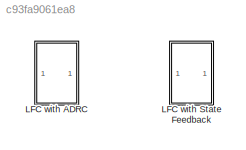
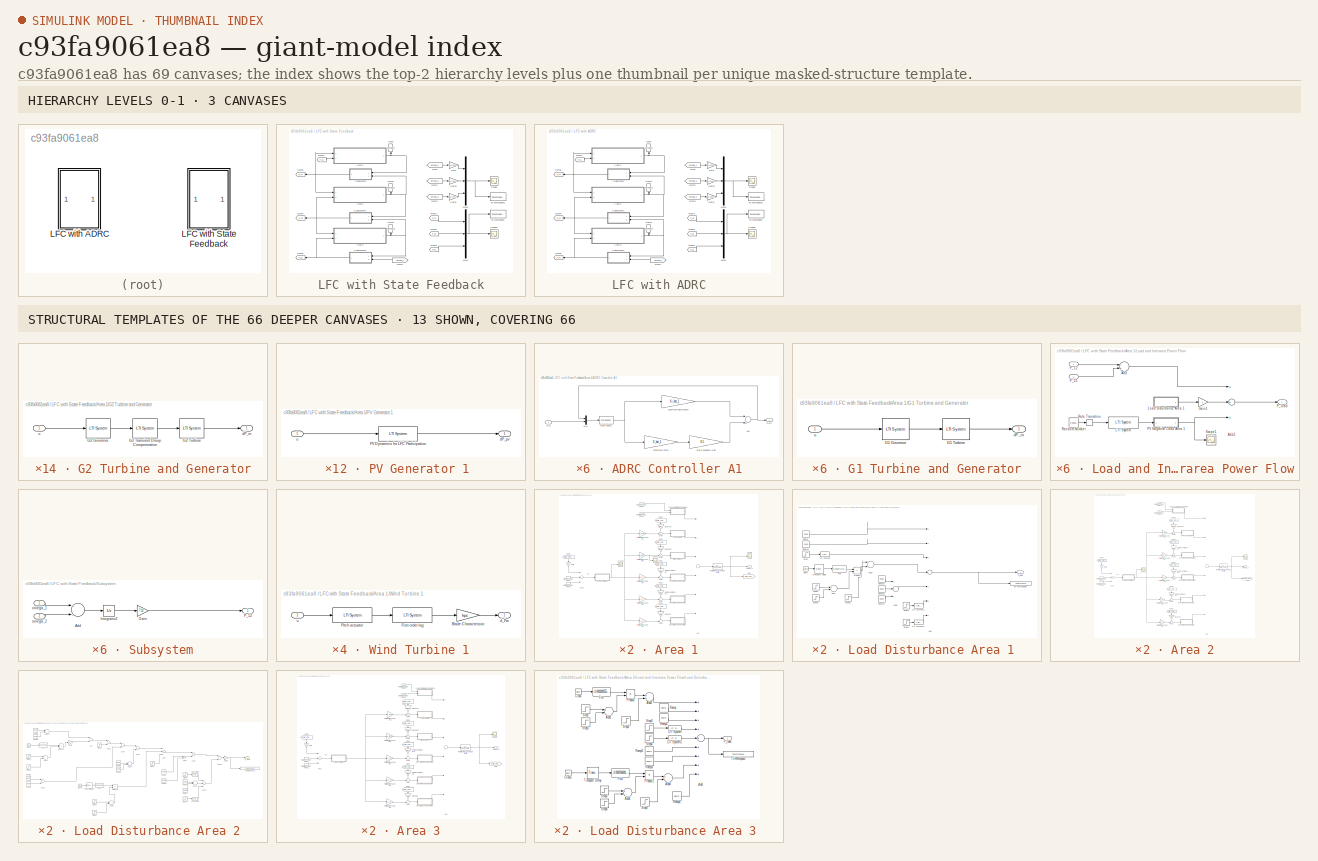
[diagram: thumbnail index - top-2 hierarchy levels (3 canvases) + 13 structural-template representatives of the remaining 66 canvases]
MODEL slx_c93fa9061ea8
KIND model
CONFIG AbsTol = auto
CONFIG EnableMultiTasking = on
CONFIG FixedStep = 1e-3
CONFIG MaxStep = 1e-4
CONFIG MinStep = auto
CONFIG RelTol = 1e-3
CONFIG SampleTimeConstraint = Unconstrained
CONFIG Solver = ode4
CONFIG SolverName = ode4
CONFIG StartTime = 0.0
CONFIG StopTime = 480
BLOCK [SubSystem] LFC with ADRC
  Ports = []
  RequestExecContextInheritance = off
BLOCK [SubSystem] LFC with ADRC/Area 1
  Ports = [2, 1]
  RequestExecContextInheritance = off
BLOCK [SubSystem] LFC with ADRC/Area 1/ADRC Controller A1
  Ports = [1, 1]
  RequestExecContextInheritance = off
BLOCK [Inport] LFC with ADRC/Area 1/ADRC Controller A1/ACE
  IconDisplay = Port number
BLOCK [Sum] LFC with ADRC/Area 1/ADRC Controller A1/Add
  InputSameDT = off
  Inputs = -+
  OutDataTypeStr = Inherit: Inherit via internal rule
  Ports = [2, 1]
  SaturateOnIntegerOverflow = off
BLOCK [Gain] LFC with ADRC/Area 1/ADRC Controller A1/Estimated State
  Gain = X_hat_1
  Multiplication = Matrix(K*u) (u vector)
  OutDataTypeStr = Inherit: Inherit via internal rule
  ParamDataTypeStr = Inherit: Inherit via internal rule
  SaturateOnIntegerOverflow = off
BLOCK [Gain] LFC with ADRC/Area 1/ADRC Controller A1/Estimated disturbance
  Gain = Xi_hat_1
  Multiplication = Matrix(K*u) (u vector)
  OutDataTypeStr = Inherit: Inherit via internal rule
  ParamDataTypeStr = Inherit: Inherit via internal rule
  SaturateOnIntegerOverflow = off
BLOCK [Mux] LFC with ADRC/Area 1/ADRC Controller A1/Mux
  DisplayOption = bar
  Inputs = 2
  Ports = [2, 1]
BLOCK [Outport] LFC with ADRC/Area 1/ADRC Controller A1/Out1
  IconDisplay = Port number
BLOCK [Gain] LFC with ADRC/Area 1/ADRC Controller A1/State Feedback Gain
  Gain = K1
  Multiplication = Matrix(K*u)
  OutDataTypeStr = Inherit: Inherit via internal rule
  ParamDataTypeStr = Inherit: Inherit via internal rule
  SaturateOnIntegerOverflow = off
BLOCK [StateSpace] LFC with ADRC/Area 1/ADRC Controller A1/State-Space
  A = A_obs_1
  B = B_obs_1
  C = C_obs_1
  D = D_obs_1
  InitialCondition = 0
  Ports = [1, 1]
BLOCK [Sum] LFC with ADRC/Area 1/Add
  InputSameDT = off
  Inputs = 6
  OutDataTypeStr = Inherit: Inherit via internal rule
  Ports = [6, 1]
  SaturateOnIntegerOverflow = off
BLOCK [Sum] LFC with ADRC/Area 1/Add1
  InputSameDT = off
  Inputs = ++-
  OutDataTypeStr = Inherit: Inherit via internal rule
  Ports = [3, 1]
  SaturateOnIntegerOverflow = off
BLOCK [Gain] LFC with ADRC/Area 1/Droop G1
  Gain = 1/R1
  OutDataTypeStr = Inherit: Inherit via internal rule
  ParamDataTypeStr = Inherit: Inherit via internal rule
  SaturateOnIntegerOverflow = off
BLOCK [Gain] LFC with ADRC/Area 1/Droop PV1
  Gain = 1/RPV1
  OutDataTypeStr = Inherit: Inherit via internal rule
  ParamDataTypeStr = Inherit: Inherit via internal rule
  SaturateOnIntegerOverflow = off
BLOCK [Gain] LFC with ADRC/Area 1/Droop WT1
  Gain = 1/RWT1
  OutDataTypeStr = Inherit: Inherit via internal rule
  ParamDataTypeStr = Inherit: Inherit via internal rule
  SaturateOnIntegerOverflow = off
BLOCK [From] LFC with ADRC/Area 1/From1
  GotoTag = delta_omega
BLOCK [From] LFC with ADRC/Area 1/From2
  GotoTag = delta_omega
BLOCK [From] LFC with ADRC/Area 1/From3
  GotoTag = delta_omega
BLOCK [From] LFC with ADRC/Area 1/From4
  GotoTag = delta_omega
BLOCK [From] LFC with ADRC/Area 1/From5
  GotoTag = delta_omega
BLOCK [From] LFC with ADRC/Area 1/From6
  GotoTag = delta_omega
BLOCK [SubSystem] LFC with ADRC/Area 1/G1 Turbine and Generator
  Ports = [1, 1]
  RequestExecContextInheritance = off
BLOCK [Reference] LFC with ADRC/Area 1/G1 Turbine and Generator/G1 Governor  REF=cstblocks/LTI System
  Ports = [1, 1]
  SourceBlock = cstblocks/LTI System
  SourceProductBaseCode = CT
  SourceProductName = Control System Toolbox
  SourceType = LTI Block
BLOCK [Reference] LFC with ADRC/Area 1/G1 Turbine and Generator/G1 Turbine  REF=cstblocks/LTI System
  Ports = [1, 1]
  SourceBlock = cstblocks/LTI System
  SourceProductBaseCode = CT
  SourceProductName = Control System Toolbox
  SourceType = LTI Block
BLOCK [Outport] LFC with ADRC/Area 1/G1 Turbine and Generator/dP_m
  IconDisplay = Port number
BLOCK [Inport] LFC with ADRC/Area 1/G1 Turbine and Generator/u
  IconDisplay = Port number
BLOCK [SubSystem] LFC with ADRC/Area 1/G2 Turbine and Generator
  Ports = [1, 1]
  RequestExecContextInheritance = off
BLOCK [Reference] LFC with ADRC/Area 1/G2 Turbine and Generator/G2 Governor  REF=cstblocks/LTI System
  Ports = [1, 1]
  SourceBlock = cstblocks/LTI System
  SourceProductBaseCode = CT
  SourceProductName = Control System Toolbox
  SourceType = LTI Block
BLOCK [Reference] LFC with ADRC/Area 1/G2 Turbine and Generator/G2 Transient Droop Compensation  REF=cstblocks/LTI System
  Ports = [1, 1]
  SourceBlock = cstblocks/LTI System
  SourceProductBaseCode = CT
  SourceProductName = Control System Toolbox
  SourceType = LTI Block
BLOCK [Reference] LFC with ADRC/Area 1/G2 Turbine and Generator/G2 Turbine  REF=cstblocks/LTI System
  Ports = [1, 1]
  SourceBlock = cstblocks/LTI System
  SourceProductBaseCode = CT
  SourceProductName = Control System Toolbox
  SourceType = LTI Block
BLOCK [Outport] LFC with ADRC/Area 1/G2 Turbine and Generator/dP_m
  IconDisplay = Port number
BLOCK [Inport] LFC with ADRC/Area 1/G2 Turbine and Generator/u
  IconDisplay = Port number
BLOCK [SubSystem] LFC with ADRC/Area 1/G3 Turbine and Generator
  Ports = [1, 1]
  RequestExecContextInheritance = off
BLOCK [Reference] LFC with ADRC/Area 1/G3 Turbine and Generator/G3 Governor  REF=cstblocks/LTI System
  Ports = [1, 1]
  SourceBlock = cstblocks/LTI System
  SourceProductBaseCode = CT
  SourceProductName = Control System Toolbox
  SourceType = LTI Block
BLOCK [Reference] LFC with ADRC/Area 1/G3 Turbine and Generator/G3 Transient Droop Compensation  REF=cstblocks/LTI System
  Ports = [1, 1]
  SourceBlock = cstblocks/LTI System
  SourceProductBaseCode = CT
  SourceProductName = Control System Toolbox
  SourceType = LTI Block
BLOCK [Reference] LFC with ADRC/Area 1/G3 Turbine and Generator/G3 Turbine  REF=cstblocks/LTI System
  Ports = [1, 1]
  SourceBlock = cstblocks/LTI System
  SourceProductBaseCode = CT
  SourceProductName = Control System Toolbox
  SourceType = LTI Block
BLOCK [Outport] LFC with ADRC/Area 1/G3 Turbine and Generator/dP_m
  IconDisplay = Port number
BLOCK [Inport] LFC with ADRC/Area 1/G3 Turbine and Generator/u
  IconDisplay = Port number
BLOCK [Gain] LFC with ADRC/Area 1/Gain
  Gain = B1
  OutDataTypeStr = Inherit: Inherit via internal rule
  ParamDataTypeStr = Inherit: Inherit via internal rule
  SaturateOnIntegerOverflow = off
BLOCK [Goto] LFC with ADRC/Area 1/Goto
  GotoTag = delta_omega
BLOCK [Inport] LFC with ADRC/Area 1/Interarea Power Flow 1-2
  IconDisplay = Port number
BLOCK [InportShadow] LFC with ADRC/Area 1/Interarea Power Flow 12
  IconDisplay = Port number
BLOCK [Inport] LFC with ADRC/Area 1/Interarea Power Flow 3-1
  IconDisplay = Port number
  Port = 2
BLOCK [InportShadow] LFC with ADRC/Area 1/Interarea Power Flow 31
  IconDisplay = Port number
  Port = 2
BLOCK [SubSystem] LFC with ADRC/Area 1/Load and Interarea Power Flow
  Ports = [2, 1]
  RequestExecContextInheritance = off
BLOCK [Sum] LFC with ADRC/Area 1/Load and Interarea Power Flow/Add
  InputSameDT = off
  Inputs = -+
  OutDataTypeStr = Inherit: Inherit via internal rule
  Ports = [2, 1]
  SaturateOnIntegerOverflow = off
BLOCK [Sum] LFC with ADRC/Area 1/Load and Interarea Power Flow/Add1
  InputSameDT = off
  Inputs = +++
  OutDataTypeStr = Inherit: Inherit via internal rule
  Ports = [3, 1]
  SaturateOnIntegerOverflow = off
BLOCK [Gain] LFC with ADRC/Area 1/Load and Interarea Power Flow/Gain1
  Gain = -1
  OutDataTypeStr = Inherit: Inherit via internal rule
  ParamDataTypeStr = Inherit: Inherit via internal rule
  SaturateOnIntegerOverflow = off
BLOCK [Reference] LFC with ADRC/Area 1/Load and Interarea Power Flow/LTI System  REF=cstblocks/LTI System
  Ports = [1, 1]
  SourceBlock = cstblocks/LTI System
  SourceProductBaseCode = CT
  SourceProductName = Control System Toolbox
  SourceType = LTI Block
BLOCK [SubSystem] LFC with ADRC/Area 1/Load and Interarea Power Flow/Load Disturbance Area 1 
  Ports = [0, 1]
  RequestExecContextInheritance = off
BLOCK [Sum] LFC with ADRC/Area 1/Load and Interarea Power Flow/Load Disturbance Area 1 /Add
  InputSameDT = off
  Inputs = +++-+++
  OutDataTypeStr = Inherit: Inherit via internal rule
  Ports = [7, 1]
  SaturateOnIntegerOverflow = off
BLOCK [Sum] LFC with ADRC/Area 1/Load and Interarea Power Flow/Load Disturbance Area 1 /Add1
  InputSameDT = off
  Inputs = +-
  OutDataTypeStr = Inherit: Inherit via internal rule
  Ports = [2, 1]
  SaturateOnIntegerOverflow = off
BLOCK [Sum] LFC with ADRC/Area 1/Load and Interarea Power Flow/Load Disturbance Area 1 /Add2
  InputSameDT = off
  OutDataTypeStr = Inherit: Inherit via internal rule
  Ports = [2, 1]
  SaturateOnIntegerOverflow = off
BLOCK [Sum] LFC with ADRC/Area 1/Load and Interarea Power Flow/Load Disturbance Area 1 /Add3
  InputSameDT = off
  Inputs = +++
  OutDataTypeStr = Inherit: Inherit via internal rule
  Ports = [3, 1]
  SaturateOnIntegerOverflow = off
BLOCK [Clock] LFC with ADRC/Area 1/Load and Interarea Power Flow/Load Disturbance Area 1 /Clock
BLOCK [Fcn] LFC with ADRC/Area 1/Load and Interarea Power Flow/Load Disturbance Area 1 /Fcn
  Expr = -0.0025*(u(1)^2)+0.2*u(1)
BLOCK [Reference] LFC with ADRC/Area 1/Load and Interarea Power Flow/Load Disturbance Area 1 /LTI System  REF=cstblocks/LTI System
  Ports = [1, 1]
  SourceBlock = cstblocks/LTI System
  SourceProductBaseCode = CT
  SourceProductName = Control System Toolbox
  SourceType = LTI Block
BLOCK [Reference] LFC with ADRC/Area 1/Load and Interarea Power Flow/Load Disturbance Area 1 /LTI System1  REF=cstblocks/LTI System
  Ports = [1, 1]
  SourceBlock = cstblocks/LTI System
  SourceProductBaseCode = CT
  SourceProductName = Control System Toolbox
  SourceType = LTI Block
BLOCK [Reference] LFC with ADRC/Area 1/Load and Interarea Power Flow/Load Disturbance Area 1 /LTI System2  REF=cstblocks/LTI System
  Ports = [1, 1]
  SourceBlock = cstblocks/LTI System
  SourceProductBaseCode = CT
  SourceProductName = Control System Toolbox
  SourceType = LTI Block
BLOCK [Outport] LFC with ADRC/Area 1/Load and Interarea Power Flow/Load Disturbance Area 1 /P_load
  IconDisplay = Port number
BLOCK [Product] LFC with ADRC/Area 1/Load and Interarea Power Flow/Load Disturbance Area 1 /Product
  InputSameDT = off
  OutDataTypeStr = Inherit: Inherit via internal rule
  Ports = [2, 1]
  RndMeth = Floor
  SaturateOnIntegerOverflow = off
BLOCK [Reference] LFC with ADRC/Area 1/Load and Interarea Power Flow/Load Disturbance Area 1 /Ramp  REF=simulink/Sources/Ramp
  Ports = [0, 1]
  SourceBlock = simulink/Sources/Ramp
  SourceProductBaseCode = SL
  SourceProductName = Simulink
  SourceType = Ramp
BLOCK [Reference] LFC with ADRC/Area 1/Load and Interarea Power Flow/Load Disturbance Area 1 /Ramp1  REF=simulink/Sources/Ramp
  Ports = [0, 1]
  SourceBlock = simulink/Sources/Ramp
  SourceProductBaseCode = SL
  SourceProductName = Simulink
  SourceType = Ramp
BLOCK [Reference] LFC with ADRC/Area 1/Load and Interarea Power Flow/Load Disturbance Area 1 /Ramp2  REF=simulink/Sources/Ramp
  Ports = [0, 1]
  SourceBlock = simulink/Sources/Ramp
  SourceProductBaseCode = SL
  SourceProductName = Simulink
  SourceType = Ramp
BLOCK [Reference] LFC with ADRC/Area 1/Load and Interarea Power Flow/Load Disturbance Area 1 /Ramp3  REF=simulink/Sources/Ramp
  Ports = [0, 1]
  SourceBlock = simulink/Sources/Ramp
  SourceProductBaseCode = SL
  SourceProductName = Simulink
  SourceType = Ramp
BLOCK [Reference] LFC with ADRC/Area 1/Load and Interarea Power Flow/Load Disturbance Area 1 /Ramp4  REF=simulink/Sources/Ramp
  Ports = [0, 1]
  SourceBlock = simulink/Sources/Ramp
  SourceProductBaseCode = SL
  SourceProductName = Simulink
  SourceType = Ramp
BLOCK [Step] LFC with ADRC/Area 1/Load and Interarea Power Flow/Load Disturbance Area 1 /Step
  SampleTime = 0
  Time = 120
BLOCK [Step] LFC with ADRC/Area 1/Load and Interarea Power Flow/Load Disturbance Area 1 /Step1
  SampleTime = 0
  Time = 180
BLOCK [Step] LFC with ADRC/Area 1/Load and Interarea Power Flow/Load Disturbance Area 1 /Step2
  SampleTime = 0
  Time = 220
BLOCK [Step] LFC with ADRC/Area 1/Load and Interarea Power Flow/Load Disturbance Area 1 /Step3
  After = 4
  SampleTime = 0
  Time = 220
BLOCK [Step] LFC with ADRC/Area 1/Load and Interarea Power Flow/Load Disturbance Area 1 /Step4
  After = 4
  SampleTime = 0
  Time = 410
BLOCK [Step] LFC with ADRC/Area 1/Load and Interarea Power Flow/Load Disturbance Area 1 /Step5
  After = -4
  SampleTime = 0
  Time = 450
BLOCK [ToWorkspace] LFC with ADRC/Area 1/Load and Interarea Power Flow/Load Disturbance Area 1 /To Workspace
  FixptAsFi = on
  MaxDataPoints = inf
  Ports = [1]
  SampleTime = -1
  Save2DSignal = 3-D array (concatenate along third dimension)
  SaveFormat = Structure With Time
  VariableName = LoadDisturbanceArea1
BLOCK [TransportDelay] LFC with ADRC/Area 1/Load and Interarea Power Flow/Load Disturbance Area 1 /Transport Delay
  DelayTime = 180
  Ports = [1, 1]
BLOCK [SubSystem] LFC with ADRC/Area 1/Load and Interarea Power Flow/PV Negative Load Area 1
  Ports = [1, 1]
  RequestExecContextInheritance = off
BLOCK [Inport] LFC with ADRC/Area 1/Load and Interarea Power Flow/PV Negative Load Area 1/Irradiance
  IconDisplay = Port number
BLOCK [Reference] LFC with ADRC/Area 1/Load and Interarea Power Flow/PV Negative Load Area 1/PV Generator as Negative Load  REF=cstblocks/LTI System
  Ports = [1, 1]
  SourceBlock = cstblocks/LTI System
  SourceProductBaseCode = CT
  SourceProductName = Control System Toolbox
  SourceType = LTI Block
BLOCK [Outport] LFC with ADRC/Area 1/Load and Interarea Power Flow/PV Negative Load Area 1/P_pv
  IconDisplay = Port number
BLOCK [Inport] LFC with ADRC/Area 1/Load and Interarea Power Flow/P_12
  IconDisplay = Port number
BLOCK [Inport] LFC with ADRC/Area 1/Load and Interarea Power Flow/P_31
  IconDisplay = Port number
  Port = 2
BLOCK [Outport] LFC with ADRC/Area 1/Load and Interarea Power Flow/P_load
  IconDisplay = Port number
BLOCK [RandomNumber] LFC with ADRC/Area 1/Load and Interarea Power Flow/Random Number
  Mean = 10
  SampleTime = 5
  Variance = 10
BLOCK [RateTransition] LFC with ADRC/Area 1/Load and Interarea Power Flow/Rate Transition
BLOCK [Scope] LFC with ADRC/Area 1/Load and Interarea Power Flow/Scope1
  Floating = off
  NumInputPorts = 1
  Ports = [1]
  ScopeSpecificationString = Simulink.scopes.TimeScopeBlockCfg('CurrentConfiguration', extmgr.ConfigurationSet(extmgr.Configuration('Core','General UI',true),extmgr.Configuration('Core','Source UI',true),extmgr.Configuration('Sources','WiredSimulink',true,'DataLoggingVariableName','ScopeData3','DataLoggingSaveFormat','Array','DataLoggingDecimation','1','DataLoggingDecimateData',true),extmgr.Configuration('Visuals','Time Domai...<+1720ch>
BLOCK [SubSystem] LFC with ADRC/Area 1/PV Generator 1 
  Ports = [1, 1]
  RequestExecContextInheritance = off
BLOCK [Reference] LFC with ADRC/Area 1/PV Generator 1 /PV Dynamics for LFC Participation  REF=cstblocks/LTI System
  Ports = [1, 1]
  SourceBlock = cstblocks/LTI System
  SourceProductBaseCode = CT
  SourceProductName = Control System Toolbox
  SourceType = LTI Block
BLOCK [Outport] LFC with ADRC/Area 1/PV Generator 1 /dP_pv
  IconDisplay = Port number
BLOCK [Inport] LFC with ADRC/Area 1/PV Generator 1 /u
  IconDisplay = Port number
BLOCK [Gain] LFC with ADRC/Area 1/Participation Factor G1
  Gain = a_1
  OutDataTypeStr = Inherit: Inherit via internal rule
  ParamDataTypeStr = Inherit: Inherit via internal rule
  SaturateOnIntegerOverflow = off
BLOCK [Gain] LFC with ADRC/Area 1/Participation Factor G2
  Gain = a_2
  OutDataTypeStr = Inherit: Inherit via internal rule
  ParamDataTypeStr = Inherit: Inherit via internal rule
  SaturateOnIntegerOverflow = off
BLOCK [Gain] LFC with ADRC/Area 1/Participation Factor G3
  Gain = a_3
  OutDataTypeStr = Inherit: Inherit via internal rule
  ParamDataTypeStr = Inherit: Inherit via internal rule
  SaturateOnIntegerOverflow = off
BLOCK [Gain] LFC with ADRC/Area 1/Participation Factor PV1
  Gain = a_PV1
  OutDataTypeStr = Inherit: Inherit via internal rule
  ParamDataTypeStr = Inherit: Inherit via internal rule
  SaturateOnIntegerOverflow = off
BLOCK [Gain] LFC with ADRC/Area 1/Participation Factor WT1
  Gain = a_WT1
  OutDataTypeStr = Inherit: Inherit via internal rule
  ParamDataTypeStr = Inherit: Inherit via internal rule
  SaturateOnIntegerOverflow = off
BLOCK [Gain] LFC with ADRC/Area 1/Permanent Droop G2
  Gain = 1/Rp2
  OutDataTypeStr = Inherit: Inherit via internal rule
  ParamDataTypeStr = Inherit: Inherit via internal rule
  SaturateOnIntegerOverflow = off
BLOCK [Gain] LFC with ADRC/Area 1/Permanent Droop G3
  Gain = 1/Rp3
  OutDataTypeStr = Inherit: Inherit via internal rule
  ParamDataTypeStr = Inherit: Inherit via internal rule
  SaturateOnIntegerOverflow = off
BLOCK [TransferFcn] LFC with ADRC/Area 1/Rotating mass and load inertia
  Denominator = [2*H_A1 D]
BLOCK [Scope] LFC with ADRC/Area 1/Scope
  Floating = off
  NumInputPorts = 1
  Ports = [1]
  ScopeSpecificationString = Simulink.scopes.TimeScopeBlockCfg('CurrentConfiguration', extmgr.ConfigurationSet(extmgr.Configuration('Core','General UI',true),extmgr.Configuration('Core','Source UI',true),extmgr.Configuration('Sources','WiredSimulink',true,'DataLoggingVariableName','ScopeData2','DataLoggingSaveFormat','Array','DataLoggingDecimation','1','DataLoggingDecimateData',true),extmgr.Configuration('Visuals','Time Domai...<+1747ch>
BLOCK [Scope] LFC with ADRC/Area 1/Scope1
  Floating = off
  NumInputPorts = 1
  Ports = [1]
  ScopeSpecificationString = Simulink.scopes.TimeScopeBlockCfg('CurrentConfiguration', extmgr.ConfigurationSet(extmgr.Configuration('Core','General UI',true),extmgr.Configuration('Core','Source UI',true),extmgr.Configuration('Sources','WiredSimulink',true,'DataLoggingVariableName','ScopeData1','DataLoggingSaveFormat','Array','DataLoggingDecimation','1','DataLoggingDecimateData',true),extmgr.Configuration('Visuals','Time Domai...<+1721ch>
BLOCK [Scope] LFC with ADRC/Area 1/Scope2
  Floating = off
  NumInputPorts = 1
  Ports = [1]
  ScopeSpecificationString = Simulink.scopes.TimeScopeBlockCfg('CurrentConfiguration', extmgr.ConfigurationSet(extmgr.Configuration('Core','General UI',true),extmgr.Configuration('Core','Source UI',true),extmgr.Configuration('Sources','WiredSimulink',true,'DataLoggingVariableName','ScopeData2','DataLoggingSaveFormat','Array','DataLoggingDecimation','1','DataLoggingDecimateData',true),extmgr.Configuration('Visuals','Time Domai...<+1721ch>
BLOCK [Sum] LFC with ADRC/Area 1/Sum
  IconShape = round
  InputSameDT = off
  Inputs = -+|
  OutDataTypeStr = Inherit: Inherit via internal rule
  Ports = [2, 1]
  SaturateOnIntegerOverflow = off
BLOCK [Sum] LFC with ADRC/Area 1/Sum1
  IconShape = round
  InputSameDT = off
  Inputs = -+|
  OutDataTypeStr = Inherit: Inherit via internal rule
  Ports = [2, 1]
  SaturateOnIntegerOverflow = off
BLOCK [Sum] LFC with ADRC/Area 1/Sum2
  IconShape = round
  InputSameDT = off
  Inputs = -+|
  OutDataTypeStr = Inherit: Inherit via internal rule
  Ports = [2, 1]
  SaturateOnIntegerOverflow = off
BLOCK [Sum] LFC with ADRC/Area 1/Sum3
  IconShape = round
  InputSameDT = off
  Inputs = -+|
  OutDataTypeStr = Inherit: Inherit via internal rule
  Ports = [2, 1]
  SaturateOnIntegerOverflow = off
BLOCK [Sum] LFC with ADRC/Area 1/Sum4
  IconShape = round
  InputSameDT = off
  Inputs = -+|
  OutDataTypeStr = Inherit: Inherit via internal rule
  Ports = [2, 1]
  SaturateOnIntegerOverflow = off
BLOCK [SubSystem] LFC with ADRC/Area 1/Wind Turbine 1
  Ports = [1, 1]
  RequestExecContextInheritance = off
BLOCK [Gain] LFC with ADRC/Area 1/Wind Turbine 1/Blade Characteristic
  Gain = kpc
  OutDataTypeStr = Inherit: Inherit via internal rule
  ParamDataTypeStr = Inherit: Inherit via internal rule
  SaturateOnIntegerOverflow = off
BLOCK [Reference] LFC with ADRC/Area 1/Wind Turbine 1/First order lag  REF=cstblocks/LTI System
  Ports = [1, 1]
  SourceBlock = cstblocks/LTI System
  SourceProductBaseCode = CT
  SourceProductName = Control System Toolbox
  SourceType = LTI Block
BLOCK [Reference] LFC with ADRC/Area 1/Wind Turbine 1/Pitch actuator  REF=cstblocks/LTI System
  Ports = [1, 1]
  SourceBlock = cstblocks/LTI System
  SourceProductBaseCode = CT
  SourceProductName = Control System Toolbox
  SourceType = LTI Block
BLOCK [Outport] LFC with ADRC/Area 1/Wind Turbine 1/d_Pw
  IconDisplay = Port number
BLOCK [Inport] LFC with ADRC/Area 1/Wind Turbine 1/u
  IconDisplay = Port number
BLOCK [Outport] LFC with ADRC/Area 1/omega_1
  IconDisplay = Port number
BLOCK [SubSystem] LFC with ADRC/Area 2
  Ports = [2, 1]
  RequestExecContextInheritance = off
BLOCK [SubSystem] LFC with ADRC/Area 2/ADRC Controller A2
  Ports = [1, 1]
  RequestExecContextInheritance = off
BLOCK [Inport] LFC with ADRC/Area 2/ADRC Controller A2/ACE
  IconDisplay = Port number
BLOCK [Sum] LFC with ADRC/Area 2/ADRC Controller A2/Add
  InputSameDT = off
  Inputs = -+
  OutDataTypeStr = Inherit: Inherit via internal rule
  Ports = [2, 1]
  SaturateOnIntegerOverflow = off
BLOCK [Gain] LFC with ADRC/Area 2/ADRC Controller A2/Estimated State
  Gain = X_hat_2
  Multiplication = Matrix(K*u) (u vector)
  OutDataTypeStr = Inherit: Inherit via internal rule
  ParamDataTypeStr = Inherit: Inherit via internal rule
  SaturateOnIntegerOverflow = off
BLOCK [Gain] LFC with ADRC/Area 2/ADRC Controller A2/Estimated disturbance
  Gain = Xi_hat_2
  Multiplication = Matrix(K*u) (u vector)
  OutDataTypeStr = Inherit: Inherit via internal rule
  ParamDataTypeStr = Inherit: Inherit via internal rule
  SaturateOnIntegerOverflow = off
BLOCK [StateSpace] LFC with ADRC/Area 2/ADRC Controller A2/Extended-State Observer Controller A2
  A = A_obs_2
  B = B_obs_2
  C = C_obs_2
  D = D_obs_2
  InitialCondition = 0
  Ports = [1, 1]
BLOCK [Mux] LFC with ADRC/Area 2/ADRC Controller A2/Mux
  DisplayOption = bar
  Inputs = 2
  Ports = [2, 1]
BLOCK [Outport] LFC with ADRC/Area 2/ADRC Controller A2/Out1
  IconDisplay = Port number
BLOCK [Gain] LFC with ADRC/Area 2/ADRC Controller A2/State Feedback Gain
  Gain = K2
  Multiplication = Matrix(K*u)
  OutDataTypeStr = Inherit: Inherit via internal rule
  ParamDataTypeStr = Inherit: Inherit via internal rule
  SaturateOnIntegerOverflow = off
BLOCK [Sum] LFC with ADRC/Area 2/Add
  InputSameDT = off
  Inputs = 6
  OutDataTypeStr = Inherit: Inherit via internal rule
  Ports = [6, 1]
  SaturateOnIntegerOverflow = off
BLOCK [Sum] LFC with ADRC/Area 2/Add1
  InputSameDT = off
  Inputs = +-+
  OutDataTypeStr = Inherit: Inherit via internal rule
  Ports = [3, 1]
  SaturateOnIntegerOverflow = off
BLOCK [Gain] LFC with ADRC/Area 2/Droop G4
  Gain = 1/R4
  OutDataTypeStr = Inherit: Inherit via internal rule
  ParamDataTypeStr = Inherit: Inherit via internal rule
  SaturateOnIntegerOverflow = off
BLOCK [Gain] LFC with ADRC/Area 2/Droop PV2
  Gain = 1/RPV2
  OutDataTypeStr = Inherit: Inherit via internal rule
  ParamDataTypeStr = Inherit: Inherit via internal rule
  SaturateOnIntegerOverflow = off
BLOCK [From] LFC with ADRC/Area 2/From1
  GotoTag = delta_omega
BLOCK [From] LFC with ADRC/Area 2/From2
  GotoTag = delta_omega
BLOCK [From] LFC with ADRC/Area 2/From3
  GotoTag = delta_omega
BLOCK [From] LFC with ADRC/Area 2/From4
  GotoTag = delta_omega
BLOCK [From] LFC with ADRC/Area 2/From5
  GotoTag = delta_omega
BLOCK [From] LFC with ADRC/Area 2/From6
  GotoTag = delta_omega
BLOCK [SubSystem] LFC with ADRC/Area 2/G4 Turbine and Generator
  Ports = [1, 1]
  RequestExecContextInheritance = off
BLOCK [Reference] LFC with ADRC/Area 2/G4 Turbine and Generator/G4 Governor  REF=cstblocks/LTI System
  Ports = [1, 1]
  SourceBlock = cstblocks/LTI System
  SourceProductBaseCode = CT
  SourceProductName = Control System Toolbox
  SourceType = LTI Block
BLOCK [Reference] LFC with ADRC/Area 2/G4 Turbine and Generator/G4 Turbine  REF=cstblocks/LTI System
  Ports = [1, 1]
  SourceBlock = cstblocks/LTI System
  SourceProductBaseCode = CT
  SourceProductName = Control System Toolbox
  SourceType = LTI Block
BLOCK [Outport] LFC with ADRC/Area 2/G4 Turbine and Generator/dP_m
  IconDisplay = Port number
BLOCK [Inport] LFC with ADRC/Area 2/G4 Turbine and Generator/u
  IconDisplay = Port number
BLOCK [SubSystem] LFC with ADRC/Area 2/G5 Turbine and Generator
  Ports = [1, 1]
  RequestExecContextInheritance = off
BLOCK [Reference] LFC with ADRC/Area 2/G5 Turbine and Generator/G5 Governor  REF=cstblocks/LTI System
  Ports = [1, 1]
  SourceBlock = cstblocks/LTI System
  SourceProductBaseCode = CT
  SourceProductName = Control System Toolbox
  SourceType = LTI Block
BLOCK [Reference] LFC with ADRC/Area 2/G5 Turbine and Generator/G5 Transient Droop Compensation  REF=cstblocks/LTI System
  Ports = [1, 1]
  SourceBlock = cstblocks/LTI System
  SourceProductBaseCode = CT
  SourceProductName = Control System Toolbox
  SourceType = LTI Block
BLOCK [Reference] LFC with ADRC/Area 2/G5 Turbine and Generator/G5 Turbine  REF=cstblocks/LTI System
  Ports = [1, 1]
  SourceBlock = cstblocks/LTI System
  SourceProductBaseCode = CT
  SourceProductName = Control System Toolbox
  SourceType = LTI Block
BLOCK [Outport] LFC with ADRC/Area 2/G5 Turbine and Generator/dP_m
  IconDisplay = Port number
BLOCK [Inport] LFC with ADRC/Area 2/G5 Turbine and Generator/u
  IconDisplay = Port number
BLOCK [SubSystem] LFC with ADRC/Area 2/G6 Turbine and Generator
  Ports = [1, 1]
  RequestExecContextInheritance = off
BLOCK [Reference] LFC with ADRC/Area 2/G6 Turbine and Generator/G6 Governor  REF=cstblocks/LTI System
  Ports = [1, 1]
  SourceBlock = cstblocks/LTI System
  SourceProductBaseCode = CT
  SourceProductName = Control System Toolbox
  SourceType = LTI Block
BLOCK [Reference] LFC with ADRC/Area 2/G6 Turbine and Generator/G6 Transient Droop Compensation  REF=cstblocks/LTI System
  Ports = [1, 1]
  SourceBlock = cstblocks/LTI System
  SourceProductBaseCode = CT
  SourceProductName = Control System Toolbox
  SourceType = LTI Block
BLOCK [Reference] LFC with ADRC/Area 2/G6 Turbine and Generator/G6 Turbine  REF=cstblocks/LTI System
  Ports = [1, 1]
  SourceBlock = cstblocks/LTI System
  SourceProductBaseCode = CT
  SourceProductName = Control System Toolbox
  SourceType = LTI Block
BLOCK [Outport] LFC with ADRC/Area 2/G6 Turbine and Generator/dP_m
  IconDisplay = Port number
BLOCK [Inport] LFC with ADRC/Area 2/G6 Turbine and Generator/u
  IconDisplay = Port number
BLOCK [SubSystem] LFC with ADRC/Area 2/G7 Turbine and Generator
  Ports = [1, 1]
  RequestExecContextInheritance = off
BLOCK [Reference] LFC with ADRC/Area 2/G7 Turbine and Generator/G7 Governor  REF=cstblocks/LTI System
  Ports = [1, 1]
  SourceBlock = cstblocks/LTI System
  SourceProductBaseCode = CT
  SourceProductName = Control System Toolbox
  SourceType = LTI Block
BLOCK [Reference] LFC with ADRC/Area 2/G7 Turbine and Generator/G7 Transient Droop Compensation  REF=cstblocks/LTI System
  Ports = [1, 1]
  SourceBlock = cstblocks/LTI System
  SourceProductBaseCode = CT
  SourceProductName = Control System Toolbox
  SourceType = LTI Block
BLOCK [Reference] LFC with ADRC/Area 2/G7 Turbine and Generator/G7 Turbine  REF=cstblocks/LTI System
  Ports = [1, 1]
  SourceBlock = cstblocks/LTI System
  SourceProductBaseCode = CT
  SourceProductName = Control System Toolbox
  SourceType = LTI Block
BLOCK [Outport] LFC with ADRC/Area 2/G7 Turbine and Generator/dP_m
  IconDisplay = Port number
BLOCK [Inport] LFC with ADRC/Area 2/G7 Turbine and Generator/u
  IconDisplay = Port number
BLOCK [Gain] LFC with ADRC/Area 2/Gain
  Gain = B2
  OutDataTypeStr = Inherit: Inherit via internal rule
  ParamDataTypeStr = Inherit: Inherit via internal rule
  SaturateOnIntegerOverflow = off
BLOCK [Goto] LFC with ADRC/Area 2/Goto
  GotoTag = delta_omega
BLOCK [Inport] LFC with ADRC/Area 2/Interarea Power Flow 1-2
  IconDisplay = Port number
BLOCK [InportShadow] LFC with ADRC/Area 2/Interarea Power Flow 12
  IconDisplay = Port number
BLOCK [Inport] LFC with ADRC/Area 2/Interarea Power Flow 2-3
  IconDisplay = Port number
  Port = 2
BLOCK [InportShadow] LFC with ADRC/Area 2/Interarea Power Flow 23
  IconDisplay = Port number
  Port = 2
BLOCK [SubSystem] LFC with ADRC/Area 2/Load and Interarea Power Flow
  Ports = [2, 1]
  RequestExecContextInheritance = off
BLOCK [Sum] LFC with ADRC/Area 2/Load and Interarea Power Flow/Add
  InputSameDT = off
  Inputs = +-
  OutDataTypeStr = Inherit: Inherit via internal rule
  Ports = [2, 1]
  SaturateOnIntegerOverflow = off
BLOCK [Sum] LFC with ADRC/Area 2/Load and Interarea Power Flow/Add1
  InputSameDT = off
  Inputs = +++
  OutDataTypeStr = Inherit: Inherit via internal rule
  Ports = [3, 1]
  SaturateOnIntegerOverflow = off
BLOCK [Gain] LFC with ADRC/Area 2/Load and Interarea Power Flow/Gain1
  Gain = -1
  OutDataTypeStr = Inherit: Inherit via internal rule
  ParamDataTypeStr = Inherit: Inherit via internal rule
  SaturateOnIntegerOverflow = off
BLOCK [Reference] LFC with ADRC/Area 2/Load and Interarea Power Flow/LTI System  REF=cstblocks/LTI System
  Ports = [1, 1]
  SourceBlock = cstblocks/LTI System
  SourceProductBaseCode = CT
  SourceProductName = Control System Toolbox
  SourceType = LTI Block
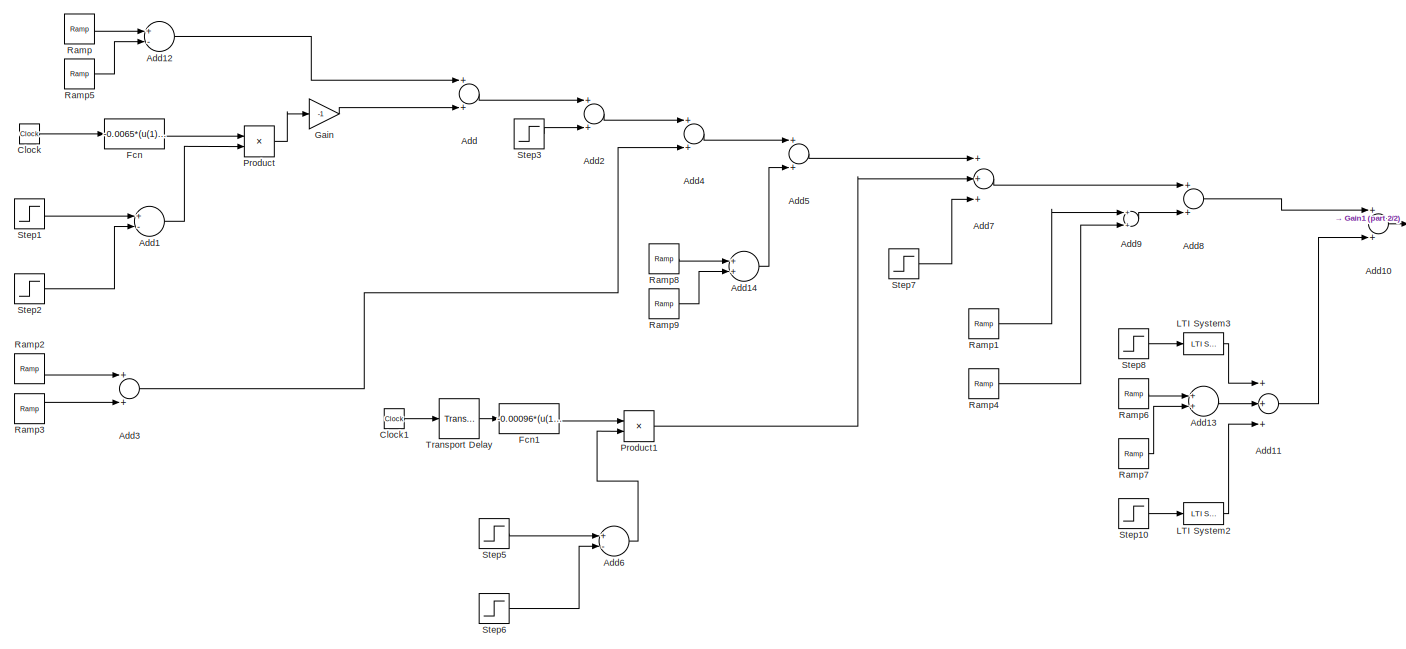
[diagram: LFC with ADRC/Area 2/Load and Interarea Power Flow/Load Disturbance Area 2  - part 1/2, most of the canvas]
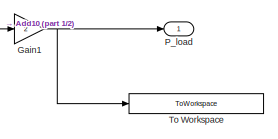
[diagram: LFC with ADRC/Area 2/Load and Interarea Power Flow/Load Disturbance Area 2  - part 2/2, middle right region]
BLOCK [SubSystem] LFC with ADRC/Area 2/Load and Interarea Power Flow/Load Disturbance Area 2 
  Ports = [0, 1]
  RequestExecContextInheritance = off
BLOCK [Sum] LFC with ADRC/Area 2/Load and Interarea Power Flow/Load Disturbance Area 2 /Add
  InputSameDT = off
  OutDataTypeStr = Inherit: Inherit via internal rule
  Ports = [2, 1]
  SaturateOnIntegerOverflow = off
BLOCK [Sum] LFC with ADRC/Area 2/Load and Interarea Power Flow/Load Disturbance Area 2 /Add1
  InputSameDT = off
  Inputs = +-
  OutDataTypeStr = Inherit: Inherit via internal rule
  Ports = [2, 1]
  SaturateOnIntegerOverflow = off
BLOCK [Sum] LFC with ADRC/Area 2/Load and Interarea Power Flow/Load Disturbance Area 2 /Add10
  InputSameDT = off
  OutDataTypeStr = Inherit: Inherit via internal rule
  Ports = [2, 1]
  SaturateOnIntegerOverflow = off
BLOCK [Sum] LFC with ADRC/Area 2/Load and Interarea Power Flow/Load Disturbance Area 2 /Add11
  InputSameDT = off
  Inputs = +++
  OutDataTypeStr = Inherit: Inherit via internal rule
  Ports = [3, 1]
  SaturateOnIntegerOverflow = off
BLOCK [Sum] LFC with ADRC/Area 2/Load and Interarea Power Flow/Load Disturbance Area 2 /Add12
  InputSameDT = off
  Inputs = +-
  OutDataTypeStr = Inherit: Inherit via internal rule
  Ports = [2, 1]
  SaturateOnIntegerOverflow = off
BLOCK [Sum] LFC with ADRC/Area 2/Load and Interarea Power Flow/Load Disturbance Area 2 /Add13
  InputSameDT = off
  OutDataTypeStr = Inherit: Inherit via internal rule
  Ports = [2, 1]
  SaturateOnIntegerOverflow = off
BLOCK [Sum] LFC with ADRC/Area 2/Load and Interarea Power Flow/Load Disturbance Area 2 /Add14
  InputSameDT = off
  OutDataTypeStr = Inherit: Inherit via internal rule
  Ports = [2, 1]
  SaturateOnIntegerOverflow = off
BLOCK [Sum] LFC with ADRC/Area 2/Load and Interarea Power Flow/Load Disturbance Area 2 /Add2
  InputSameDT = off
  OutDataTypeStr = Inherit: Inherit via internal rule
  Ports = [2, 1]
  SaturateOnIntegerOverflow = off
BLOCK [Sum] LFC with ADRC/Area 2/Load and Interarea Power Flow/Load Disturbance Area 2 /Add3
  InputSameDT = off
  OutDataTypeStr = Inherit: Inherit via internal rule
  Ports = [2, 1]
  SaturateOnIntegerOverflow = off
BLOCK [Sum] LFC with ADRC/Area 2/Load and Interarea Power Flow/Load Disturbance Area 2 /Add4
  InputSameDT = off
  OutDataTypeStr = Inherit: Inherit via internal rule
  Ports = [2, 1]
  SaturateOnIntegerOverflow = off
BLOCK [Sum] LFC with ADRC/Area 2/Load and Interarea Power Flow/Load Disturbance Area 2 /Add5
  InputSameDT = off
  OutDataTypeStr = Inherit: Inherit via internal rule
  Ports = [2, 1]
  SaturateOnIntegerOverflow = off
BLOCK [Sum] LFC with ADRC/Area 2/Load and Interarea Power Flow/Load Disturbance Area 2 /Add6
  InputSameDT = off
  Inputs = +-
  OutDataTypeStr = Inherit: Inherit via internal rule
  Ports = [2, 1]
  SaturateOnIntegerOverflow = off
BLOCK [Sum] LFC with ADRC/Area 2/Load and Interarea Power Flow/Load Disturbance Area 2 /Add7
  InputSameDT = off
  Inputs = +++
  OutDataTypeStr = Inherit: Inherit via internal rule
  Ports = [3, 1]
  SaturateOnIntegerOverflow = off
BLOCK [Sum] LFC with ADRC/Area 2/Load and Interarea Power Flow/Load Disturbance Area 2 /Add8
  InputSameDT = off
  OutDataTypeStr = Inherit: Inherit via internal rule
  Ports = [2, 1]
  SaturateOnIntegerOverflow = off
BLOCK [Sum] LFC with ADRC/Area 2/Load and Interarea Power Flow/Load Disturbance Area 2 /Add9
  InputSameDT = off
  OutDataTypeStr = Inherit: Inherit via internal rule
  Ports = [2, 1]
  SaturateOnIntegerOverflow = off
BLOCK [Clock] LFC with ADRC/Area 2/Load and Interarea Power Flow/Load Disturbance Area 2 /Clock
BLOCK [Clock] LFC with ADRC/Area 2/Load and Interarea Power Flow/Load Disturbance Area 2 /Clock1
BLOCK [Fcn] LFC with ADRC/Area 2/Load and Interarea Power Flow/Load Disturbance Area 2 /Fcn
  Expr = -0.0065*(u(1)^2)+1.56*u(1)-91
BLOCK [Fcn] LFC with ADRC/Area 2/Load and Interarea Power Flow/Load Disturbance Area 2 /Fcn1
  Expr = -0.00096*(u(1)^2)+0.0960*u(1)
BLOCK [Gain] LFC with ADRC/Area 2/Load and Interarea Power Flow/Load Disturbance Area 2 /Gain
  Gain = -1
  OutDataTypeStr = Inherit: Inherit via internal rule
  ParamDataTypeStr = Inherit: Inherit via internal rule
  SaturateOnIntegerOverflow = off
BLOCK [Gain] LFC with ADRC/Area 2/Load and Interarea Power Flow/Load Disturbance Area 2 /Gain1
  Gain = 2
  OutDataTypeStr = Inherit: Inherit via internal rule
  ParamDataTypeStr = Inherit: Inherit via internal rule
  SaturateOnIntegerOverflow = off
BLOCK [Reference] LFC with ADRC/Area 2/Load and Interarea Power Flow/Load Disturbance Area 2 /LTI System2  REF=cstblocks/LTI System
  Ports = [1, 1]
  SourceBlock = cstblocks/LTI System
  SourceProductBaseCode = CT
  SourceProductName = Control System Toolbox
  SourceType = LTI Block
BLOCK [Reference] LFC with ADRC/Area 2/Load and Interarea Power Flow/Load Disturbance Area 2 /LTI System3  REF=cstblocks/LTI System
  Ports = [1, 1]
  SourceBlock = cstblocks/LTI System
  SourceProductBaseCode = CT
  SourceProductName = Control System Toolbox
  SourceType = LTI Block
BLOCK [Outport] LFC with ADRC/Area 2/Load and Interarea Power Flow/Load Disturbance Area 2 /P_load
  IconDisplay = Port number
BLOCK [Product] LFC with ADRC/Area 2/Load and Interarea Power Flow/Load Disturbance Area 2 /Product
  InputSameDT = off
  OutDataTypeStr = Inherit: Inherit via internal rule
  Ports = [2, 1]
  RndMeth = Floor
  SaturateOnIntegerOverflow = off
BLOCK [Product] LFC with ADRC/Area 2/Load and Interarea Power Flow/Load Disturbance Area 2 /Product1
  InputSameDT = off
  OutDataTypeStr = Inherit: Inherit via internal rule
  Ports = [2, 1]
  RndMeth = Floor
  SaturateOnIntegerOverflow = off
BLOCK [Reference] LFC with ADRC/Area 2/Load and Interarea Power Flow/Load Disturbance Area 2 /Ramp  REF=simulink/Sources/Ramp
  Ports = [0, 1]
  SourceBlock = simulink/Sources/Ramp
  SourceProductBaseCode = SL
  SourceProductName = Simulink
  SourceType = Ramp
BLOCK [Reference] LFC with ADRC/Area 2/Load and Interarea Power Flow/Load Disturbance Area 2 /Ramp1  REF=simulink/Sources/Ramp
  Ports = [0, 1]
  SourceBlock = simulink/Sources/Ramp
  SourceProductBaseCode = SL
  SourceProductName = Simulink
  SourceType = Ramp
BLOCK [Reference] LFC with ADRC/Area 2/Load and Interarea Power Flow/Load Disturbance Area 2 /Ramp2  REF=simulink/Sources/Ramp
  Ports = [0, 1]
  SourceBlock = simulink/Sources/Ramp
  SourceProductBaseCode = SL
  SourceProductName = Simulink
  SourceType = Ramp
BLOCK [Reference] LFC with ADRC/Area 2/Load and Interarea Power Flow/Load Disturbance Area 2 /Ramp3  REF=simulink/Sources/Ramp
  Ports = [0, 1]
  SourceBlock = simulink/Sources/Ramp
  SourceProductBaseCode = SL
  SourceProductName = Simulink
  SourceType = Ramp
BLOCK [Reference] LFC with ADRC/Area 2/Load and Interarea Power Flow/Load Disturbance Area 2 /Ramp4  REF=simulink/Sources/Ramp
  Ports = [0, 1]
  SourceBlock = simulink/Sources/Ramp
  SourceProductBaseCode = SL
  SourceProductName = Simulink
  SourceType = Ramp
BLOCK [Reference] LFC with ADRC/Area 2/Load and Interarea Power Flow/Load Disturbance Area 2 /Ramp5  REF=simulink/Sources/Ramp
  Ports = [0, 1]
  SourceBlock = simulink/Sources/Ramp
  SourceProductBaseCode = SL
  SourceProductName = Simulink
  SourceType = Ramp
BLOCK [Reference] LFC with ADRC/Area 2/Load and Interarea Power Flow/Load Disturbance Area 2 /Ramp6  REF=simulink/Sources/Ramp
  Ports = [0, 1]
  SourceBlock = simulink/Sources/Ramp
  SourceProductBaseCode = SL
  SourceProductName = Simulink
  SourceType = Ramp
BLOCK [Reference] LFC with ADRC/Area 2/Load and Interarea Power Flow/Load Disturbance Area 2 /Ramp7  REF=simulink/Sources/Ramp
  Ports = [0, 1]
  SourceBlock = simulink/Sources/Ramp
  SourceProductBaseCode = SL
  SourceProductName = Simulink
  SourceType = Ramp
BLOCK [Reference] LFC with ADRC/Area 2/Load and Interarea Power Flow/Load Disturbance Area 2 /Ramp8  REF=simulink/Sources/Ramp
  Ports = [0, 1]
  SourceBlock = simulink/Sources/Ramp
  SourceProductBaseCode = SL
  SourceProductName = Simulink
  SourceType = Ramp
BLOCK [Reference] LFC with ADRC/Area 2/Load and Interarea Power Flow/Load Disturbance Area 2 /Ramp9  REF=simulink/Sources/Ramp
  Ports = [0, 1]
  SourceBlock = simulink/Sources/Ramp
  SourceProductBaseCode = SL
  SourceProductName = Simulink
  SourceType = Ramp
BLOCK [Step] LFC with ADRC/Area 2/Load and Interarea Power Flow/Load Disturbance Area 2 /Step1
  SampleTime = 0
  Time = 100
BLOCK [Step] LFC with ADRC/Area 2/Load and Interarea Power Flow/Load Disturbance Area 2 /Step10
  After = -3.5
  SampleTime = 0
  Time = 450
BLOCK [Step] LFC with ADRC/Area 2/Load and Interarea Power Flow/Load Disturbance Area 2 /Step2
  SampleTime = 0
  Time = 120
BLOCK [Step] LFC with ADRC/Area 2/Load and Interarea Power Flow/Load Disturbance Area 2 /Step3
  After = -2.6
  SampleTime = 0
  Time = 120
BLOCK [Step] LFC with ADRC/Area 2/Load and Interarea Power Flow/Load Disturbance Area 2 /Step5
  SampleTime = 0
  Time = 290
BLOCK [Step] LFC with ADRC/Area 2/Load and Interarea Power Flow/Load Disturbance Area 2 /Step6
  SampleTime = 0
  Time = 340
BLOCK [Step] LFC with ADRC/Area 2/Load and Interarea Power Flow/Load Disturbance Area 2 /Step7
  After = 2.4
  SampleTime = 0
  Time = 340
BLOCK [Step] LFC with ADRC/Area 2/Load and Interarea Power Flow/Load Disturbance Area 2 /Step8
  After = 1.2
  SampleTime = 0
  Time = 420
BLOCK [ToWorkspace] LFC with ADRC/Area 2/Load and Interarea Power Flow/Load Disturbance Area 2 /To Workspace
  FixptAsFi = on
  MaxDataPoints = inf
  Ports = [1]
  SampleTime = -1
  Save2DSignal = 3-D array (concatenate along third dimension)
  SaveFormat = Structure With Time
  VariableName = LoadDisturbanceArea2
BLOCK [TransportDelay] LFC with ADRC/Area 2/Load and Interarea Power Flow/Load Disturbance Area 2 /Transport Delay
  DelayTime = 290
  Ports = [1, 1]
BLOCK [SubSystem] LFC with ADRC/Area 2/Load and Interarea Power Flow/PV Negative Load Area 2
  Ports = [1, 1]
  RequestExecContextInheritance = off
BLOCK [Inport] LFC with ADRC/Area 2/Load and Interarea Power Flow/PV Negative Load Area 2/Irradiance
  IconDisplay = Port number
BLOCK [Reference] LFC with ADRC/Area 2/Load and Interarea Power Flow/PV Negative Load Area 2/PV Generator as Negative Load  REF=cstblocks/LTI System
  Ports = [1, 1]
  SourceBlock = cstblocks/LTI System
  SourceProductBaseCode = CT
  SourceProductName = Control System Toolbox
  SourceType = LTI Block
BLOCK [Outport] LFC with ADRC/Area 2/Load and Interarea Power Flow/PV Negative Load Area 2/P_pv
  IconDisplay = Port number
BLOCK [Inport] LFC with ADRC/Area 2/Load and Interarea Power Flow/P_12
  IconDisplay = Port number
BLOCK [Inport] LFC with ADRC/Area 2/Load and Interarea Power Flow/P_23
  IconDisplay = Port number
  Port = 2
BLOCK [Outport] LFC with ADRC/Area 2/Load and Interarea Power Flow/P_load
  IconDisplay = Port number
BLOCK [RandomNumber] LFC with ADRC/Area 2/Load and Interarea Power Flow/Random Number
  Mean = 15
  SampleTime = 10
  Variance = 15
BLOCK [RateTransition] LFC with ADRC/Area 2/Load and Interarea Power Flow/Rate Transition
BLOCK [Scope] LFC with ADRC/Area 2/Load and Interarea Power Flow/Scope
  Floating = off
  NumInputPorts = 1
  Ports = [1]
  ScopeSpecificationString = Simulink.scopes.TimeScopeBlockCfg('CurrentConfiguration', extmgr.ConfigurationSet(extmgr.Configuration('Core','General UI',true),extmgr.Configuration('Core','Source UI',true),extmgr.Configuration('Sources','WiredSimulink',true,'DataLoggingVariableName','ScopeData4','DataLoggingSaveFormat','Array','DataLoggingDecimation','1','DataLoggingDecimateData',true),extmgr.Configuration('Visuals','Time Domai...<+1674ch>
BLOCK [SubSystem] LFC with ADRC/Area 2/PV Generator 2 
  Ports = [1, 1]
  RequestExecContextInheritance = off
BLOCK [Reference] LFC with ADRC/Area 2/PV Generator 2 /PV Dynamics for LFC Participation  REF=cstblocks/LTI System
  Ports = [1, 1]
  SourceBlock = cstblocks/LTI System
  SourceProductBaseCode = CT
  SourceProductName = Control System Toolbox
  SourceType = LTI Block
BLOCK [Outport] LFC with ADRC/Area 2/PV Generator 2 /dP_pv
  IconDisplay = Port number
BLOCK [Inport] LFC with ADRC/Area 2/PV Generator 2 /u
  IconDisplay = Port number
BLOCK [Gain] LFC with ADRC/Area 2/Participation Factor G4
  Gain = a_4
  OutDataTypeStr = Inherit: Inherit via internal rule
  ParamDataTypeStr = Inherit: Inherit via internal rule
  SaturateOnIntegerOverflow = off
BLOCK [Gain] LFC with ADRC/Area 2/Participation Factor G5
  Gain = a_5
  OutDataTypeStr = Inherit: Inherit via internal rule
  ParamDataTypeStr = Inherit: Inherit via internal rule
  SaturateOnIntegerOverflow = off
BLOCK [Gain] LFC with ADRC/Area 2/Participation Factor G6
  Gain = a_6
  OutDataTypeStr = Inherit: Inherit via internal rule
  ParamDataTypeStr = Inherit: Inherit via internal rule
  SaturateOnIntegerOverflow = off
BLOCK [Gain] LFC with ADRC/Area 2/Participation Factor G7
  Gain = a_7
  OutDataTypeStr = Inherit: Inherit via internal rule
  ParamDataTypeStr = Inherit: Inherit via internal rule
  SaturateOnIntegerOverflow = off
BLOCK [Gain] LFC with ADRC/Area 2/Participation Factor PV2
  Gain = a_PV2
  OutDataTypeStr = Inherit: Inherit via internal rule
  ParamDataTypeStr = Inherit: Inherit via internal rule
  SaturateOnIntegerOverflow = off
BLOCK [Gain] LFC with ADRC/Area 2/Permanent Droop G5
  Gain = 1/Rp5
  OutDataTypeStr = Inherit: Inherit via internal rule
  ParamDataTypeStr = Inherit: Inherit via internal rule
  SaturateOnIntegerOverflow = off
BLOCK [Gain] LFC with ADRC/Area 2/Permanent Droop G6
  Gain = 1/Rp6
  OutDataTypeStr = Inherit: Inherit via internal rule
  ParamDataTypeStr = Inherit: Inherit via internal rule
  SaturateOnIntegerOverflow = off
BLOCK [Gain] LFC with ADRC/Area 2/Permanent Droop G7
  Gain = 1/Rp7
  OutDataTypeStr = Inherit: Inherit via internal rule
  ParamDataTypeStr = Inherit: Inherit via internal rule
  SaturateOnIntegerOverflow = off
BLOCK [TransferFcn] LFC with ADRC/Area 2/Rotating mass and load inertia
  Denominator = [2*H_A2 D]
BLOCK [Scope] LFC with ADRC/Area 2/Scope
  Floating = off
  NumInputPorts = 1
  Ports = [1]
  ScopeSpecificationString = Simulink.scopes.TimeScopeBlockCfg('CurrentConfiguration', extmgr.ConfigurationSet(extmgr.Configuration('Core','General UI',true),extmgr.Configuration('Core','Source UI',true),extmgr.Configuration('Sources','WiredSimulink',true,'DataLoggingVariableName','ScopeData1','DataLoggingSaveFormat','Array','DataLoggingDecimation','1','DataLoggingDecimateData',true),extmgr.Configuration('Visuals','Time Domai...<+1701ch>
BLOCK [Scope] LFC with ADRC/Area 2/Scope1
  Floating = off
  NumInputPorts = 1
  Ports = [1]
  ScopeSpecificationString = Simulink.scopes.TimeScopeBlockCfg('CurrentConfiguration', extmgr.ConfigurationSet(extmgr.Configuration('Core','General UI',true),extmgr.Configuration('Core','Source UI',true),extmgr.Configuration('Sources','WiredSimulink',true,'DataLoggingVariableName','ScopeData2','DataLoggingSaveFormat','Array','DataLoggingDecimation','1','DataLoggingDecimateData',true),extmgr.Configuration('Visuals','Time Domai...<+1671ch>
BLOCK [Sum] LFC with ADRC/Area 2/Sum1
  IconShape = round
  InputSameDT = off
  Inputs = -+|
  OutDataTypeStr = Inherit: Inherit via internal rule
  Ports = [2, 1]
  SaturateOnIntegerOverflow = off
BLOCK [Sum] LFC with ADRC/Area 2/Sum2
  IconShape = round
  InputSameDT = off
  Inputs = -+|
  OutDataTypeStr = Inherit: Inherit via internal rule
  Ports = [2, 1]
  SaturateOnIntegerOverflow = off
BLOCK [Sum] LFC with ADRC/Area 2/Sum3
  IconShape = round
  InputSameDT = off
  Inputs = -+|
  OutDataTypeStr = Inherit: Inherit via internal rule
  Ports = [2, 1]
  SaturateOnIntegerOverflow = off
BLOCK [Sum] LFC with ADRC/Area 2/Sum4
  IconShape = round
  InputSameDT = off
  Inputs = -+|
  OutDataTypeStr = Inherit: Inherit via internal rule
  Ports = [2, 1]
  SaturateOnIntegerOverflow = off
BLOCK [Sum] LFC with ADRC/Area 2/Sum5
  IconShape = round
  InputSameDT = off
  Inputs = -+|
  OutDataTypeStr = Inherit: Inherit via internal rule
  Ports = [2, 1]
  SaturateOnIntegerOverflow = off
BLOCK [Outport] LFC with ADRC/Area 2/omega_2
  IconDisplay = Port number
BLOCK [SubSystem] LFC with ADRC/Area 3
  Ports = [2, 1]
  RequestExecContextInheritance = off
BLOCK [SubSystem] LFC with ADRC/Area 3/ADRC Controller A3
  Ports = [1, 1]
  RequestExecContextInheritance = off
BLOCK [Inport] LFC with ADRC/Area 3/ADRC Controller A3/ACE
  IconDisplay = Port number
BLOCK [Sum] LFC with ADRC/Area 3/ADRC Controller A3/Add
  InputSameDT = off
  Inputs = -+
  OutDataTypeStr = Inherit: Inherit via internal rule
  Ports = [2, 1]
  SaturateOnIntegerOverflow = off
BLOCK [Gain] LFC with ADRC/Area 3/ADRC Controller A3/Estimated State
  Gain = X_hat_3
  Multiplication = Matrix(K*u) (u vector)
  OutDataTypeStr = Inherit: Inherit via internal rule
  ParamDataTypeStr = Inherit: Inherit via internal rule
  SaturateOnIntegerOverflow = off
BLOCK [Gain] LFC with ADRC/Area 3/ADRC Controller A3/Estimated disturbance
  Gain = Xi_hat_3
  Multiplication = Matrix(K*u) (u vector)
  OutDataTypeStr = Inherit: Inherit via internal rule
  ParamDataTypeStr = Inherit: Inherit via internal rule
  SaturateOnIntegerOverflow = off
BLOCK [StateSpace] LFC with ADRC/Area 3/ADRC Controller A3/Extended-State Observer Controller A3
  A = A_obs_3
  B = B_obs_3
  C = C_obs_3
  D = D_obs_3
  InitialCondition = 0
  Ports = [1, 1]
BLOCK [Mux] LFC with ADRC/Area 3/ADRC Controller A3/Mux
  DisplayOption = bar
  Inputs = 2
  Ports = [2, 1]
BLOCK [Outport] LFC with ADRC/Area 3/ADRC Controller A3/Out1
  IconDisplay = Port number
BLOCK [Gain] LFC with ADRC/Area 3/ADRC Controller A3/State Feedback Gain
  Gain = K3
  Multiplication = Matrix(K*u)
  OutDataTypeStr = Inherit: Inherit via internal rule
  ParamDataTypeStr = Inherit: Inherit via internal rule
  SaturateOnIntegerOverflow = off
BLOCK [Sum] LFC with ADRC/Area 3/Add
  InputSameDT = off
  Inputs = 6
  OutDataTypeStr = Inherit: Inherit via internal rule
  Ports = [6, 1]
  SaturateOnIntegerOverflow = off
BLOCK [Sum] LFC with ADRC/Area 3/Add1
  InputSameDT = off
  Inputs = +-+
  OutDataTypeStr = Inherit: Inherit via internal rule
  Ports = [3, 1]
  SaturateOnIntegerOverflow = off
BLOCK [Gain] LFC with ADRC/Area 3/Droop G9
  Gain = 1/R9
  OutDataTypeStr = Inherit: Inherit via internal rule
  ParamDataTypeStr = Inherit: Inherit via internal rule
  SaturateOnIntegerOverflow = off
BLOCK [Gain] LFC with ADRC/Area 3/Droop PV3
  Gain = 1/RPV3
  OutDataTypeStr = Inherit: Inherit via internal rule
  ParamDataTypeStr = Inherit: Inherit via internal rule
  SaturateOnIntegerOverflow = off
BLOCK [Gain] LFC with ADRC/Area 3/Droop WT3
  Gain = 1/RWT3
  OutDataTypeStr = Inherit: Inherit via internal rule
  ParamDataTypeStr = Inherit: Inherit via internal rule
  SaturateOnIntegerOverflow = off
BLOCK [From] LFC with ADRC/Area 3/From1
  GotoTag = delta_omega
BLOCK [From] LFC with ADRC/Area 3/From2
  GotoTag = delta_omega
BLOCK [From] LFC with ADRC/Area 3/From3
  GotoTag = delta_omega
BLOCK [From] LFC with ADRC/Area 3/From4
  GotoTag = delta_omega
BLOCK [From] LFC with ADRC/Area 3/From5
  GotoTag = delta_omega
BLOCK [From] LFC with ADRC/Area 3/From6
  GotoTag = delta_omega
BLOCK [SubSystem] LFC with ADRC/Area 3/G10 Turbine and Generator
  Ports = [1, 1]
  RequestExecContextInheritance = off
BLOCK [Reference] LFC with ADRC/Area 3/G10 Turbine and Generator/G10 Governor  REF=cstblocks/LTI System
  Ports = [1, 1]
  SourceBlock = cstblocks/LTI System
  SourceProductBaseCode = CT
  SourceProductName = Control System Toolbox
  SourceType = LTI Block
BLOCK [Reference] LFC with ADRC/Area 3/G10 Turbine and Generator/G10 Transient Droop Compensation  REF=cstblocks/LTI System
  Ports = [1, 1]
  SourceBlock = cstblocks/LTI System
  SourceProductBaseCode = CT
  SourceProductName = Control System Toolbox
  SourceType = LTI Block
BLOCK [Reference] LFC with ADRC/Area 3/G10 Turbine and Generator/G10 Turbine  REF=cstblocks/LTI System
  Ports = [1, 1]
  SourceBlock = cstblocks/LTI System
  SourceProductBaseCode = CT
  SourceProductName = Control System Toolbox
  SourceType = LTI Block
BLOCK [Outport] LFC with ADRC/Area 3/G10 Turbine and Generator/dP_m
  IconDisplay = Port number
BLOCK [Inport] LFC with ADRC/Area 3/G10 Turbine and Generator/u
  IconDisplay = Port number
BLOCK [SubSystem] LFC with ADRC/Area 3/G8 Turbine and Generator
  Ports = [1, 1]
  RequestExecContextInheritance = off
BLOCK [Reference] LFC with ADRC/Area 3/G8 Turbine and Generator/G8 Governor  REF=cstblocks/LTI System
  Ports = [1, 1]
  SourceBlock = cstblocks/LTI System
  SourceProductBaseCode = CT
  SourceProductName = Control System Toolbox
  SourceType = LTI Block
BLOCK [Reference] LFC with ADRC/Area 3/G8 Turbine and Generator/G8 Transient Droop Compensation  REF=cstblocks/LTI System
  Ports = [1, 1]
  SourceBlock = cstblocks/LTI System
  SourceProductBaseCode = CT
  SourceProductName = Control System Toolbox
  SourceType = LTI Block
BLOCK [Reference] LFC with ADRC/Area 3/G8 Turbine and Generator/G8 Turbine  REF=cstblocks/LTI System
  Ports = [1, 1]
  SourceBlock = cstblocks/LTI System
  SourceProductBaseCode = CT
  SourceProductName = Control System Toolbox
  SourceType = LTI Block
BLOCK [Outport] LFC with ADRC/Area 3/G8 Turbine and Generator/dP_m
  IconDisplay = Port number
BLOCK [Inport] LFC with ADRC/Area 3/G8 Turbine and Generator/u
  IconDisplay = Port number
BLOCK [SubSystem] LFC with ADRC/Area 3/G9 Turbine and Generator
  Ports = [1, 1]
  RequestExecContextInheritance = off
BLOCK [Reference] LFC with ADRC/Area 3/G9 Turbine and Generator/G9 Governor  REF=cstblocks/LTI System
  Ports = [1, 1]
  SourceBlock = cstblocks/LTI System
  SourceProductBaseCode = CT
  SourceProductName = Control System Toolbox
  SourceType = LTI Block
BLOCK [Reference] LFC with ADRC/Area 3/G9 Turbine and Generator/G9 Turbine  REF=cstblocks/LTI System
  Ports = [1, 1]
  SourceBlock = cstblocks/LTI System
  SourceProductBaseCode = CT
  SourceProductName = Control System Toolbox
  SourceType = LTI Block
BLOCK [Outport] LFC with ADRC/Area 3/G9 Turbine and Generator/dP_m
  IconDisplay = Port number
BLOCK [Inport] LFC with ADRC/Area 3/G9 Turbine and Generator/u
  IconDisplay = Port number
BLOCK [Gain] LFC with ADRC/Area 3/Gain
  Gain = B3
  OutDataTypeStr = Inherit: Inherit via internal rule
  ParamDataTypeStr = Inherit: Inherit via internal rule
  SaturateOnIntegerOverflow = off
BLOCK [Goto] LFC with ADRC/Area 3/Goto
  GotoTag = delta_omega
BLOCK [Inport] LFC with ADRC/Area 3/Interarea Power Flow 2-3
  IconDisplay = Port number
BLOCK [InportShadow] LFC with ADRC/Area 3/Interarea Power Flow 23
  IconDisplay = Port number
BLOCK [Inport] LFC with ADRC/Area 3/Interarea Power Flow 3-1
  IconDisplay = Port number
  Port = 2
BLOCK [InportShadow] LFC with ADRC/Area 3/Interarea Power Flow 31
  IconDisplay = Port number
  Port = 2
BLOCK [SubSystem] LFC with ADRC/Area 3/Load and Interarea Power Flow
  Ports = [2, 1]
  RequestExecContextInheritance = off
BLOCK [Sum] LFC with ADRC/Area 3/Load and Interarea Power Flow/Add
  InputSameDT = off
  Inputs = +-
  OutDataTypeStr = Inherit: Inherit via internal rule
  Ports = [2, 1]
  SaturateOnIntegerOverflow = off
BLOCK [Sum] LFC with ADRC/Area 3/Load and Interarea Power Flow/Add1
  InputSameDT = off
  Inputs = +++
  OutDataTypeStr = Inherit: Inherit via internal rule
  Ports = [3, 1]
  SaturateOnIntegerOverflow = off
BLOCK [Gain] LFC with ADRC/Area 3/Load and Interarea Power Flow/Gain1
  Gain = -1
  OutDataTypeStr = Inherit: Inherit via internal rule
  ParamDataTypeStr = Inherit: Inherit via internal rule
  SaturateOnIntegerOverflow = off
BLOCK [Reference] LFC with ADRC/Area 3/Load and Interarea Power Flow/LTI System  REF=cstblocks/LTI System
  Ports = [1, 1]
  SourceBlock = cstblocks/LTI System
  SourceProductBaseCode = CT
  SourceProductName = Control System Toolbox
  SourceType = LTI Block
BLOCK [SubSystem] LFC with ADRC/Area 3/Load and Interarea Power Flow/Load Disturbance Area 3 
  Ports = [0, 1]
  RequestExecContextInheritance = off
BLOCK [Sum] LFC with ADRC/Area 3/Load and Interarea Power Flow/Load Disturbance Area 3 /Add
  InputSameDT = off
  Inputs = +++++++++
  OutDataTypeStr = Inherit: Inherit via internal rule
  Ports = [9, 1]
  SaturateOnIntegerOverflow = off
BLOCK [Sum] LFC with ADRC/Area 3/Load and Interarea Power Flow/Load Disturbance Area 3 /Add1
  InputSameDT = off
  Inputs = +-
  OutDataTypeStr = Inherit: Inherit via internal rule
  Ports = [2, 1]
  SaturateOnIntegerOverflow = off
BLOCK [Sum] LFC with ADRC/Area 3/Load and Interarea Power Flow/Load Disturbance Area 3 /Add2
  InputSameDT = off
  OutDataTypeStr = Inherit: Inherit via internal rule
  Ports = [2, 1]
  SaturateOnIntegerOverflow = off
BLOCK [Sum] LFC with ADRC/Area 3/Load and Interarea Power Flow/Load Disturbance Area 3 /Add3
  InputSameDT = off
  Inputs = +-
  OutDataTypeStr = Inherit: Inherit via internal rule
  Ports = [2, 1]
  SaturateOnIntegerOverflow = off
BLOCK [Sum] LFC with ADRC/Area 3/Load and Interarea Power Flow/Load Disturbance Area 3 /Add4
  InputSameDT = off
  OutDataTypeStr = Inherit: Inherit via internal rule
  Ports = [2, 1]
  SaturateOnIntegerOverflow = off
BLOCK [Clock] LFC with ADRC/Area 3/Load and Interarea Power Flow/Load Disturbance Area 3 /Clock
BLOCK [Clock] LFC with ADRC/Area 3/Load and Interarea Power Flow/Load Disturbance Area 3 /Clock1
BLOCK [Fcn] LFC with ADRC/Area 3/Load and Interarea Power Flow/Load Disturbance Area 3 /Fcn
  Expr = -0.000243055555556*(u(1)^2)+0.05833333*u(1)
BLOCK [Fcn] LFC with ADRC/Area 3/Load and Interarea Power Flow/Load Disturbance Area 3 /Fcn1
  Expr = -0.000076628352490*(u(1)^2)+0.068965517241379*u(1)
BLOCK [Reference] LFC with ADRC/Area 3/Load and Interarea Power Flow/Load Disturbance Area 3 /LTI System  REF=cstblocks/LTI System
  Ports = [1, 1]
  SourceBlock = cstblocks/LTI System
  SourceProductBaseCode = CT
  SourceProductName = Control System Toolbox
  SourceType = LTI Block
BLOCK [Reference] LFC with ADRC/Area 3/Load and Interarea Power Flow/Load Disturbance Area 3 /LTI System1  REF=cstblocks/LTI System
  Ports = [1, 1]
  SourceBlock = cstblocks/LTI System
  SourceProductBaseCode = CT
  SourceProductName = Control System Toolbox
  SourceType = LTI Block
BLOCK [Outport] LFC with ADRC/Area 3/Load and Interarea Power Flow/Load Disturbance Area 3 /P_load
  IconDisplay = Port number
BLOCK [Product] LFC with ADRC/Area 3/Load and Interarea Power Flow/Load Disturbance Area 3 /Product
  InputSameDT = off
  OutDataTypeStr = Inherit: Inherit via internal rule
  Ports = [2, 1]
  RndMeth = Floor
  SaturateOnIntegerOverflow = off
BLOCK [Product] LFC with ADRC/Area 3/Load and Interarea Power Flow/Load Disturbance Area 3 /Product1
  InputSameDT = off
  OutDataTypeStr = Inherit: Inherit via internal rule
  Ports = [2, 1]
  RndMeth = Floor
  SaturateOnIntegerOverflow = off
BLOCK [Reference] LFC with ADRC/Area 3/Load and Interarea Power Flow/Load Disturbance Area 3 /Ramp  REF=simulink/Sources/Ramp
  Ports = [0, 1]
  SourceBlock = simulink/Sources/Ramp
  SourceProductBaseCode = SL
  SourceProductName = Simulink
  SourceType = Ramp
BLOCK [Reference] LFC with ADRC/Area 3/Load and Interarea Power Flow/Load Disturbance Area 3 /Ramp1  REF=simulink/Sources/Ramp
  Ports = [0, 1]
  SourceBlock = simulink/Sources/Ramp
  SourceProductBaseCode = SL
  SourceProductName = Simulink
  SourceType = Ramp
BLOCK [Reference] LFC with ADRC/Area 3/Load and Interarea Power Flow/Load Disturbance Area 3 /Ramp2  REF=simulink/Sources/Ramp
  Ports = [0, 1]
  SourceBlock = simulink/Sources/Ramp
  SourceProductBaseCode = SL
  SourceProductName = Simulink
  SourceType = Ramp
BLOCK [Reference] LFC with ADRC/Area 3/Load and Interarea Power Flow/Load Disturbance Area 3 /Ramp3  REF=simulink/Sources/Ramp
  Ports = [0, 1]
  SourceBlock = simulink/Sources/Ramp
  SourceProductBaseCode = SL
  SourceProductName = Simulink
  SourceType = Ramp
BLOCK [Reference] LFC with ADRC/Area 3/Load and Interarea Power Flow/Load Disturbance Area 3 /Ramp4  REF=simulink/Sources/Ramp
  Ports = [0, 1]
  SourceBlock = simulink/Sources/Ramp
  SourceProductBaseCode = SL
  SourceProductName = Simulink
  SourceType = Ramp
BLOCK [Step] LFC with ADRC/Area 3/Load and Interarea Power Flow/Load Disturbance Area 3 /Step
  SampleTime = 0
  Time = 0
BLOCK [Step] LFC with ADRC/Area 3/Load and Interarea Power Flow/Load Disturbance Area 3 /Step1
  SampleTime = 0
  Time = 120
BLOCK [Step] LFC with ADRC/Area 3/Load and Interarea Power Flow/Load Disturbance Area 3 /Step2
  After = 3.5
  SampleTime = 0
  Time = 120
BLOCK [Step] LFC with ADRC/Area 3/Load and Interarea Power Flow/Load Disturbance Area 3 /Step3
  SampleTime = 0
  Time = 260
BLOCK [Step] LFC with ADRC/Area 3/Load and Interarea Power Flow/Load Disturbance Area 3 /Step4
  After = 1.25
  SampleTime = 0
  Time = 300
BLOCK [Step] LFC with ADRC/Area 3/Load and Interarea Power Flow/Load Disturbance Area 3 /Step5
  SampleTime = 0
  Time = 420
BLOCK [Step] LFC with ADRC/Area 3/Load and Interarea Power Flow/Load Disturbance Area 3 /Step6
  SampleTime = 0
  Time = 450
BLOCK [Step] LFC with ADRC/Area 3/Load and Interarea Power Flow/Load Disturbance Area 3 /Step7
  After = 2
  SampleTime = 0
  Time = 450
BLOCK [ToWorkspace] LFC with ADRC/Area 3/Load and Interarea Power Flow/Load Disturbance Area 3 /To Workspace
  FixptAsFi = on
  MaxDataPoints = inf
  Ports = [1]
  SampleTime = -1
  Save2DSignal = 3-D array (concatenate along third dimension)
  SaveFormat = Structure With Time
  VariableName = LoadDisturbanceArea3
BLOCK [TransportDelay] LFC with ADRC/Area 3/Load and Interarea Power Flow/Load Disturbance Area 3 /Transport Delay
  DelayTime = 420
  Ports = [1, 1]
BLOCK [SubSystem] LFC with ADRC/Area 3/Load and Interarea Power Flow/PV Negative Load Area 3
  Ports = [1, 1]
  RequestExecContextInheritance = off
BLOCK [Inport] LFC with ADRC/Area 3/Load and Interarea Power Flow/PV Negative Load Area 3/Irradiance
  IconDisplay = Port number
BLOCK [Reference] LFC with ADRC/Area 3/Load and Interarea Power Flow/PV Negative Load Area 3/PV Generator as Negative Load  REF=cstblocks/LTI System
  Ports = [1, 1]
  SourceBlock = cstblocks/LTI System
  SourceProductBaseCode = CT
  SourceProductName = Control System Toolbox
  SourceType = LTI Block
BLOCK [Outport] LFC with ADRC/Area 3/Load and Interarea Power Flow/PV Negative Load Area 3/P_pv
  IconDisplay = Port number
BLOCK [Inport] LFC with ADRC/Area 3/Load and Interarea Power Flow/P_23
  IconDisplay = Port number
BLOCK [Inport] LFC with ADRC/Area 3/Load and Interarea Power Flow/P_31
  IconDisplay = Port number
  Port = 2
BLOCK [Outport] LFC with ADRC/Area 3/Load and Interarea Power Flow/P_load
  IconDisplay = Port number
BLOCK [RandomNumber] LFC with ADRC/Area 3/Load and Interarea Power Flow/Random Number
  Mean = 75
  SampleTime = 35
  Variance = 10
BLOCK [RateTransition] LFC with ADRC/Area 3/Load and Interarea Power Flow/Rate Transition
BLOCK [Scope] LFC with ADRC/Area 3/Load and Interarea Power Flow/Scope
  Floating = off
  NumInputPorts = 1
  Ports = [1]
  ScopeSpecificationString = C++SS(StrPVP('Location','[10, 60, 1370, 748]'),StrPVP('Open','off'),MxPVP('AxesTitles',53,'struct(''axes1'',''%<SignalLabel>'')'),MxPVP('ScopeGraphics',56,'struct(''FigureColor'',''[0.5 0.5 0.5]'',''AxesColor'',''[0 0 0]'',''AxesTickColor'',''[1 1 1]'',''LineColors'',''[1 1 0;1 0 1;0 1 1;1 0 0;0 1 0;0 0 1]'',''LineStyles'',''-|-|-|-|-|-'',''LineWidths'',''[0.5 0.5 0.5 0.5 0.5 0.5]'',''MarkerStyles...<+196ch>
BLOCK [SubSystem] LFC with ADRC/Area 3/PV Generator 3 
  Ports = [1, 1]
  RequestExecContextInheritance = off
BLOCK [Reference] LFC with ADRC/Area 3/PV Generator 3 /PV Dynamics for LFC Participation  REF=cstblocks/LTI System
  Ports = [1, 1]
  SourceBlock = cstblocks/LTI System
  SourceProductBaseCode = CT
  SourceProductName = Control System Toolbox
  SourceType = LTI Block
BLOCK [Outport] LFC with ADRC/Area 3/PV Generator 3 /dP_pv
  IconDisplay = Port number
BLOCK [Inport] LFC with ADRC/Area 3/PV Generator 3 /u
  IconDisplay = Port number
BLOCK [Gain] LFC with ADRC/Area 3/Participation Factor G10
  Gain = a_10
  OutDataTypeStr = Inherit: Inherit via internal rule
  ParamDataTypeStr = Inherit: Inherit via internal rule
  SaturateOnIntegerOverflow = off
BLOCK [Gain] LFC with ADRC/Area 3/Participation Factor G8
  Gain = a_8
  OutDataTypeStr = Inherit: Inherit via internal rule
  ParamDataTypeStr = Inherit: Inherit via internal rule
  SaturateOnIntegerOverflow = off
BLOCK [Gain] LFC with ADRC/Area 3/Participation Factor G9
  Gain = a_9
  OutDataTypeStr = Inherit: Inherit via internal rule
  ParamDataTypeStr = Inherit: Inherit via internal rule
  SaturateOnIntegerOverflow = off
BLOCK [Gain] LFC with ADRC/Area 3/Participation Factor PV3
  Gain = a_PV3
  OutDataTypeStr = Inherit: Inherit via internal rule
  ParamDataTypeStr = Inherit: Inherit via internal rule
  SaturateOnIntegerOverflow = off
BLOCK [Gain] LFC with ADRC/Area 3/Participation Factor WT3
  Gain = a_WT3
  OutDataTypeStr = Inherit: Inherit via internal rule
  ParamDataTypeStr = Inherit: Inherit via internal rule
  SaturateOnIntegerOverflow = off
BLOCK [Gain] LFC with ADRC/Area 3/Permanent Droop G10
  Gain = 1/Rp10
  OutDataTypeStr = Inherit: Inherit via internal rule
  ParamDataTypeStr = Inherit: Inherit via internal rule
  SaturateOnIntegerOverflow = off
BLOCK [Gain] LFC with ADRC/Area 3/Permanent Droop G8
  Gain = 1/Rp8
  OutDataTypeStr = Inherit: Inherit via internal rule
  ParamDataTypeStr = Inherit: Inherit via internal rule
  SaturateOnIntegerOverflow = off
BLOCK [TransferFcn] LFC with ADRC/Area 3/Rotating mass and load inertia
  Denominator = [2*H_A3 D]
BLOCK [Scope] LFC with ADRC/Area 3/Scope
  Floating = off
  NumInputPorts = 1
  Ports = [1]
  ScopeSpecificationString = Simulink.scopes.TimeScopeBlockCfg('CurrentConfiguration', extmgr.ConfigurationSet(extmgr.Configuration('Core','General UI',true),extmgr.Configuration('Core','Source UI',true),extmgr.Configuration('Sources','WiredSimulink',true,'DataLoggingSaveFormat','Array','DataLoggingDecimation','1','DataLoggingDecimateData',true),extmgr.Configuration('Visuals','Time Domain',true,'SerializedDisplays',{struct('M...<+1639ch>
BLOCK [Sum] LFC with ADRC/Area 3/Sum1
  IconShape = round
  InputSameDT = off
  Inputs = -+|
  OutDataTypeStr = Inherit: Inherit via internal rule
  Ports = [2, 1]
  SaturateOnIntegerOverflow = off
BLOCK [Sum] LFC with ADRC/Area 3/Sum2
  IconShape = round
  InputSameDT = off
  Inputs = -+|
  OutDataTypeStr = Inherit: Inherit via internal rule
  Ports = [2, 1]
  SaturateOnIntegerOverflow = off
BLOCK [Sum] LFC with ADRC/Area 3/Sum3
  IconShape = round
  InputSameDT = off
  Inputs = -+|
  OutDataTypeStr = Inherit: Inherit via internal rule
  Ports = [2, 1]
  SaturateOnIntegerOverflow = off
BLOCK [Sum] LFC with ADRC/Area 3/Sum4
  IconShape = round
  InputSameDT = off
  Inputs = -+|
  OutDataTypeStr = Inherit: Inherit via internal rule
  Ports = [2, 1]
  SaturateOnIntegerOverflow = off
BLOCK [Sum] LFC with ADRC/Area 3/Sum5
  IconShape = round
  InputSameDT = off
  Inputs = -+|
  OutDataTypeStr = Inherit: Inherit via internal rule
  Ports = [2, 1]
  SaturateOnIntegerOverflow = off
BLOCK [SubSystem] LFC with ADRC/Area 3/Wind Turbine 3
  Ports = [1, 1]
  RequestExecContextInheritance = off
BLOCK [Gain] LFC with ADRC/Area 3/Wind Turbine 3/Blade Characteristic
  Gain = kpc
  OutDataTypeStr = Inherit: Inherit via internal rule
  ParamDataTypeStr = Inherit: Inherit via internal rule
  SaturateOnIntegerOverflow = off
BLOCK [Reference] LFC with ADRC/Area 3/Wind Turbine 3/First order lag  REF=cstblocks/LTI System
  Ports = [1, 1]
  SourceBlock = cstblocks/LTI System
  SourceProductBaseCode = CT
  SourceProductName = Control System Toolbox
  SourceType = LTI Block
BLOCK [Reference] LFC with ADRC/Area 3/Wind Turbine 3/Pitch actuator  REF=cstblocks/LTI System
  Ports = [1, 1]
  SourceBlock = cstblocks/LTI System
  SourceProductBaseCode = CT
  SourceProductName = Control System Toolbox
  SourceType = LTI Block
BLOCK [Outport] LFC with ADRC/Area 3/Wind Turbine 3/d_Pw
  IconDisplay = Port number
BLOCK [Inport] LFC with ADRC/Area 3/Wind Turbine 3/u
  IconDisplay = Port number
BLOCK [Outport] LFC with ADRC/Area 3/omega_3
  IconDisplay = Port number
BLOCK [From] LFC with ADRC/From
  GotoTag = omega_1
BLOCK [From] LFC with ADRC/From1
  GotoTag = omega_1
BLOCK [From] LFC with ADRC/From2
  GotoTag = omega_2
BLOCK [From] LFC with ADRC/From3
  GotoTag = omega_3
BLOCK [From] LFC with ADRC/From4
  GotoTag = P_31
BLOCK [From] LFC with ADRC/From5
  GotoTag = P_31
BLOCK [From] LFC with ADRC/From6
  GotoTag = P_23
BLOCK [From] LFC with ADRC/From7
  GotoTag = P_12
BLOCK [Gain] LFC with ADRC/Gain
  Gain = 60/(2*pi)
  OutDataTypeStr = Inherit: Inherit via internal rule
  ParamDataTypeStr = Inherit: Inherit via internal rule
  SaturateOnIntegerOverflow = off
BLOCK [Gain] LFC with ADRC/Gain1
  Gain = 60/(2*pi)
  OutDataTypeStr = Inherit: Inherit via internal rule
  ParamDataTypeStr = Inherit: Inherit via internal rule
  SaturateOnIntegerOverflow = off
BLOCK [Gain] LFC with ADRC/Gain3
  Gain = 60/(2*pi)
  OutDataTypeStr = Inherit: Inherit via internal rule
  ParamDataTypeStr = Inherit: Inherit via internal rule
  SaturateOnIntegerOverflow = off
BLOCK [Goto] LFC with ADRC/Goto
  GotoTag = omega_1
BLOCK [Goto] LFC with ADRC/Goto1
  GotoTag = omega_2
BLOCK [Goto] LFC with ADRC/Goto2
  GotoTag = omega_3
BLOCK [Goto] LFC with ADRC/Goto3
  GotoTag = P_31
BLOCK [Goto] LFC with ADRC/Goto4
  GotoTag = P_23
BLOCK [Goto] LFC with ADRC/Goto5
  GotoTag = P_12
BLOCK [Mux] LFC with ADRC/Mux1
  DisplayOption = bar
  Inputs = 3
  Ports = [3, 1]
BLOCK [Mux] LFC with ADRC/Mux3
  DisplayOption = bar
  Inputs = 3
  Ports = [3, 1]
BLOCK [Scope] LFC with ADRC/Scope
  Floating = off
  NumInputPorts = 1
  Ports = [1]
  ScopeSpecificationString = Simulink.scopes.TimeScopeBlockCfg('CurrentConfiguration', extmgr.ConfigurationSet(extmgr.Configuration('Core','General UI',true),extmgr.Configuration('Core','Source UI',true),extmgr.Configuration('Sources','WiredSimulink',true,'DataLoggingVariableName','ScopeData3','DataLoggingSaveFormat','Array','DataLoggingDecimation','1','DataLoggingDecimateData',true),extmgr.Configuration('Visuals','Time Domai...<+1712ch>
BLOCK [Scope] LFC with ADRC/Scope1
  Floating = off
  NumInputPorts = 1
  Ports = [1]
  ScopeSpecificationString = Simulink.scopes.TimeScopeBlockCfg('CurrentConfiguration', extmgr.ConfigurationSet(extmgr.Configuration('Core','General UI',true),extmgr.Configuration('Core','Source UI',true),extmgr.Configuration('Sources','WiredSimulink',true,'DataLoggingVariableName','ScopeData1','DataLoggingSaveFormat','Array','DataLoggingDecimation','1','DataLoggingDecimateData',true),extmgr.Configuration('Visuals','Time Domai...<+1784ch>
BLOCK [SubSystem] LFC with ADRC/Subsystem
  Ports = [2, 1]
  RequestExecContextInheritance = off
BLOCK [Sum] LFC with ADRC/Subsystem/Add
  InputSameDT = off
  Inputs = +-
  OutDataTypeStr = Inherit: Inherit via internal rule
  Ports = [2, 1]
  SaturateOnIntegerOverflow = off
BLOCK [Gain] LFC with ADRC/Subsystem/Gain
  Gain = T12
  OutDataTypeStr = Inherit: Inherit via internal rule
  ParamDataTypeStr = Inherit: Inherit via internal rule
  SaturateOnIntegerOverflow = off
BLOCK [Integrator] LFC with ADRC/Subsystem/Integrator2
  Ports = [1, 1]
BLOCK [Outport] LFC with ADRC/Subsystem/P_12
  IconDisplay = Port number
BLOCK [Inport] LFC with ADRC/Subsystem/omega_1
  IconDisplay = Port number
BLOCK [Inport] LFC with ADRC/Subsystem/omega_2
  IconDisplay = Port number
  Port = 2
BLOCK [SubSystem] LFC with ADRC/Subsystem1
  Ports = [2, 1]
  RequestExecContextInheritance = off
BLOCK [Sum] LFC with ADRC/Subsystem1/Add
  InputSameDT = off
  Inputs = +-
  OutDataTypeStr = Inherit: Inherit via internal rule
  Ports = [2, 1]
  SaturateOnIntegerOverflow = off
BLOCK [Gain] LFC with ADRC/Subsystem1/Gain
  Gain = T23
  OutDataTypeStr = Inherit: Inherit via internal rule
  ParamDataTypeStr = Inherit: Inherit via internal rule
  SaturateOnIntegerOverflow = off
BLOCK [Integrator] LFC with ADRC/Subsystem1/Integrator2
  Ports = [1, 1]
BLOCK [Outport] LFC with ADRC/Subsystem1/P_23
  IconDisplay = Port number
BLOCK [Inport] LFC with ADRC/Subsystem1/omega_2
  IconDisplay = Port number
BLOCK [Inport] LFC with ADRC/Subsystem1/omega_3
  IconDisplay = Port number
  Port = 2
BLOCK [SubSystem] LFC with ADRC/Subsystem2
  Ports = [2, 1]
  RequestExecContextInheritance = off
BLOCK [Sum] LFC with ADRC/Subsystem2/Add
  InputSameDT = off
  Inputs = +-
  OutDataTypeStr = Inherit: Inherit via internal rule
  Ports = [2, 1]
  SaturateOnIntegerOverflow = off
BLOCK [Gain] LFC with ADRC/Subsystem2/Gain
  Gain = T13
  OutDataTypeStr = Inherit: Inherit via internal rule
  ParamDataTypeStr = Inherit: Inherit via internal rule
  SaturateOnIntegerOverflow = off
BLOCK [Integrator] LFC with ADRC/Subsystem2/Integrator2
  Ports = [1, 1]
BLOCK [Outport] LFC with ADRC/Subsystem2/P_31
  IconDisplay = Port number
BLOCK [Inport] LFC with ADRC/Subsystem2/omega_1
  IconDisplay = Port number
  Port = 2
BLOCK [Inport] LFC with ADRC/Subsystem2/omega_3
  IconDisplay = Port number
BLOCK [ToWorkspace] LFC with ADRC/To Workspace
  FixptAsFi = on
  MaxDataPoints = inf
  Ports = [1]
  SampleTime = -1
  Save2DSignal = 3-D array (concatenate along third dimension)
  SaveFormat = Structure With Time
  VariableName = tie_line_ADRC
BLOCK [ToWorkspace] LFC with ADRC/To Workspace1
  FixptAsFi = on
  MaxDataPoints = inf
  Ports = [1]
  SampleTime = -1
  Save2DSignal = 3-D array (concatenate along third dimension)
  SaveFormat = Structure With Time
  VariableName = frequency_ADRC
BLOCK [SubSystem] LFC with State Feedback
  Ports = []
  RequestExecContextInheritance = off
BLOCK [SubSystem] LFC with State Feedback/Area 1
  Ports = [2, 1]
  RequestExecContextInheritance = off
BLOCK [SubSystem] LFC with State Feedback/Area 1/ADRC Controller A1
  Ports = [1, 1]
  RequestExecContextInheritance = off
BLOCK [Inport] LFC with State Feedback/Area 1/ADRC Controller A1/ACE
  IconDisplay = Port number
BLOCK [Sum] LFC with State Feedback/Area 1/ADRC Controller A1/Add
  InputSameDT = off
  Inputs = -+
  OutDataTypeStr = Inherit: Inherit via internal rule
  Ports = [2, 1]
  SaturateOnIntegerOverflow = off
BLOCK [Gain] LFC with State Feedback/Area 1/ADRC Controller A1/Estimated State
  Gain = X_hat_1
  Multiplication = Matrix(K*u) (u vector)
  OutDataTypeStr = Inherit: Inherit via internal rule
  ParamDataTypeStr = Inherit: Inherit via internal rule
  SaturateOnIntegerOverflow = off
BLOCK [Gain] LFC with State Feedback/Area 1/ADRC Controller A1/Estimated disturbance
  Commented = on
  Gain = Xi_hat_1
  Multiplication = Matrix(K*u) (u vector)
  OutDataTypeStr = Inherit: Inherit via internal rule
  ParamDataTypeStr = Inherit: Inherit via internal rule
  SaturateOnIntegerOverflow = off
BLOCK [Mux] LFC with State Feedback/Area 1/ADRC Controller A1/Mux
  DisplayOption = bar
  Inputs = 2
  Ports = [2, 1]
BLOCK [Outport] LFC with State Feedback/Area 1/ADRC Controller A1/Out1
  IconDisplay = Port number
BLOCK [Gain] LFC with State Feedback/Area 1/ADRC Controller A1/State Feedback Gain
  Gain = K1
  Multiplication = Matrix(K*u)
  OutDataTypeStr = Inherit: Inherit via internal rule
  ParamDataTypeStr = Inherit: Inherit via internal rule
  SaturateOnIntegerOverflow = off
BLOCK [StateSpace] LFC with State Feedback/Area 1/ADRC Controller A1/State-Space
  A = A_obs_1
  B = B_obs_1
  C = C_obs_1
  D = D_obs_1
  InitialCondition = 0
  Ports = [1, 1]
BLOCK [Sum] LFC with State Feedback/Area 1/Add
  InputSameDT = off
  Inputs = 6
  OutDataTypeStr = Inherit: Inherit via internal rule
  Ports = [6, 1]
  SaturateOnIntegerOverflow = off
BLOCK [Sum] LFC with State Feedback/Area 1/Add1
  InputSameDT = off
  Inputs = ++-
  OutDataTypeStr = Inherit: Inherit via internal rule
  Ports = [3, 1]
  SaturateOnIntegerOverflow = off
BLOCK [Gain] LFC with State Feedback/Area 1/Droop G1
  Gain = 1/R1
  OutDataTypeStr = Inherit: Inherit via internal rule
  ParamDataTypeStr = Inherit: Inherit via internal rule
  SaturateOnIntegerOverflow = off
BLOCK [Gain] LFC with State Feedback/Area 1/Droop PV1
  Gain = 1/RPV1
  OutDataTypeStr = Inherit: Inherit via internal rule
  ParamDataTypeStr = Inherit: Inherit via internal rule
  SaturateOnIntegerOverflow = off
BLOCK [Gain] LFC with State Feedback/Area 1/Droop WT1
  Gain = 1/RWT1
  OutDataTypeStr = Inherit: Inherit via internal rule
  ParamDataTypeStr = Inherit: Inherit via internal rule
  SaturateOnIntegerOverflow = off
BLOCK [From] LFC with State Feedback/Area 1/From1
  GotoTag = delta_omega
BLOCK [From] LFC with State Feedback/Area 1/From2
  GotoTag = delta_omega
BLOCK [From] LFC with State Feedback/Area 1/From3
  GotoTag = delta_omega
BLOCK [From] LFC with State Feedback/Area 1/From4
  GotoTag = delta_omega
BLOCK [From] LFC with State Feedback/Area 1/From5
  GotoTag = delta_omega
BLOCK [From] LFC with State Feedback/Area 1/From6
  GotoTag = delta_omega
BLOCK [SubSystem] LFC with State Feedback/Area 1/G1 Turbine and Generator
  Ports = [1, 1]
  RequestExecContextInheritance = off
BLOCK [Reference] LFC with State Feedback/Area 1/G1 Turbine and Generator/G1 Governor  REF=cstblocks/LTI System
  Ports = [1, 1]
  SourceBlock = cstblocks/LTI System
  SourceProductBaseCode = CT
  SourceProductName = Control System Toolbox
  SourceType = LTI Block
BLOCK [Reference] LFC with State Feedback/Area 1/G1 Turbine and Generator/G1 Turbine  REF=cstblocks/LTI System
  Ports = [1, 1]
  SourceBlock = cstblocks/LTI System
  SourceProductBaseCode = CT
  SourceProductName = Control System Toolbox
  SourceType = LTI Block
BLOCK [Outport] LFC with State Feedback/Area 1/G1 Turbine and Generator/dP_m
  IconDisplay = Port number
BLOCK [Inport] LFC with State Feedback/Area 1/G1 Turbine and Generator/u
  IconDisplay = Port number
BLOCK [SubSystem] LFC with State Feedback/Area 1/G2 Turbine and Generator
  Ports = [1, 1]
  RequestExecContextInheritance = off
BLOCK [Reference] LFC with State Feedback/Area 1/G2 Turbine and Generator/G2 Governor  REF=cstblocks/LTI System
  Ports = [1, 1]
  SourceBlock = cstblocks/LTI System
  SourceProductBaseCode = CT
  SourceProductName = Control System Toolbox
  SourceType = LTI Block
BLOCK [Reference] LFC with State Feedback/Area 1/G2 Turbine and Generator/G2 Transient Droop Compensation  REF=cstblocks/LTI System
  Ports = [1, 1]
  SourceBlock = cstblocks/LTI System
  SourceProductBaseCode = CT
  SourceProductName = Control System Toolbox
  SourceType = LTI Block
BLOCK [Reference] LFC with State Feedback/Area 1/G2 Turbine and Generator/G2 Turbine  REF=cstblocks/LTI System
  Ports = [1, 1]
  SourceBlock = cstblocks/LTI System
  SourceProductBaseCode = CT
  SourceProductName = Control System Toolbox
  SourceType = LTI Block
BLOCK [Outport] LFC with State Feedback/Area 1/G2 Turbine and Generator/dP_m
  IconDisplay = Port number
BLOCK [Inport] LFC with State Feedback/Area 1/G2 Turbine and Generator/u
  IconDisplay = Port number
BLOCK [SubSystem] LFC with State Feedback/Area 1/G3 Turbine and Generator
  Ports = [1, 1]
  RequestExecContextInheritance = off
BLOCK [Reference] LFC with State Feedback/Area 1/G3 Turbine and Generator/G3 Governor  REF=cstblocks/LTI System
  Ports = [1, 1]
  SourceBlock = cstblocks/LTI System
  SourceProductBaseCode = CT
  SourceProductName = Control System Toolbox
  SourceType = LTI Block
BLOCK [Reference] LFC with State Feedback/Area 1/G3 Turbine and Generator/G3 Transient Droop Compensation  REF=cstblocks/LTI System
  Ports = [1, 1]
  SourceBlock = cstblocks/LTI System
  SourceProductBaseCode = CT
  SourceProductName = Control System Toolbox
  SourceType = LTI Block
BLOCK [Reference] LFC with State Feedback/Area 1/G3 Turbine and Generator/G3 Turbine  REF=cstblocks/LTI System
  Ports = [1, 1]
  SourceBlock = cstblocks/LTI System
  SourceProductBaseCode = CT
  SourceProductName = Control System Toolbox
  SourceType = LTI Block
BLOCK [Outport] LFC with State Feedback/Area 1/G3 Turbine and Generator/dP_m
  IconDisplay = Port number
BLOCK [Inport] LFC with State Feedback/Area 1/G3 Turbine and Generator/u
  IconDisplay = Port number
BLOCK [Gain] LFC with State Feedback/Area 1/Gain
  Gain = B1
  OutDataTypeStr = Inherit: Inherit via internal rule
  ParamDataTypeStr = Inherit: Inherit via internal rule
  SaturateOnIntegerOverflow = off
BLOCK [Goto] LFC with State Feedback/Area 1/Goto
  GotoTag = delta_omega
BLOCK [Inport] LFC with State Feedback/Area 1/Interarea Power Flow 1-2
  IconDisplay = Port number
BLOCK [InportShadow] LFC with State Feedback/Area 1/Interarea Power Flow 12
  IconDisplay = Port number
BLOCK [Inport] LFC with State Feedback/Area 1/Interarea Power Flow 3-1
  IconDisplay = Port number
  Port = 2
BLOCK [InportShadow] LFC with State Feedback/Area 1/Interarea Power Flow 31
  IconDisplay = Port number
  Port = 2
BLOCK [SubSystem] LFC with State Feedback/Area 1/Load and Interarea Power Flow
  Ports = [2, 1]
  RequestExecContextInheritance = off
BLOCK [Sum] LFC with State Feedback/Area 1/Load and Interarea Power Flow/Add
  InputSameDT = off
  Inputs = -+
  OutDataTypeStr = Inherit: Inherit via internal rule
  Ports = [2, 1]
  SaturateOnIntegerOverflow = off
BLOCK [Sum] LFC with State Feedback/Area 1/Load and Interarea Power Flow/Add1
  InputSameDT = off
  Inputs = +++
  OutDataTypeStr = Inherit: Inherit via internal rule
  Ports = [3, 1]
  SaturateOnIntegerOverflow = off
BLOCK [Gain] LFC with State Feedback/Area 1/Load and Interarea Power Flow/Gain1
  Gain = -1
  OutDataTypeStr = Inherit: Inherit via internal rule
  ParamDataTypeStr = Inherit: Inherit via internal rule
  SaturateOnIntegerOverflow = off
BLOCK [Reference] LFC with State Feedback/Area 1/Load and Interarea Power Flow/LTI System  REF=cstblocks/LTI System
  Ports = [1, 1]
  SourceBlock = cstblocks/LTI System
  SourceProductBaseCode = CT
  SourceProductName = Control System Toolbox
  SourceType = LTI Block
BLOCK [SubSystem] LFC with State Feedback/Area 1/Load and Interarea Power Flow/Load Disturbance Area 1 
  Ports = [0, 1]
  RequestExecContextInheritance = off
BLOCK [Sum] LFC with State Feedback/Area 1/Load and Interarea Power Flow/Load Disturbance Area 1 /Add
  InputSameDT = off
  Inputs = +++-+++
  OutDataTypeStr = Inherit: Inherit via internal rule
  Ports = [7, 1]
  SaturateOnIntegerOverflow = off
BLOCK [Sum] LFC with State Feedback/Area 1/Load and Interarea Power Flow/Load Disturbance Area 1 /Add1
  InputSameDT = off
  Inputs = +-
  OutDataTypeStr = Inherit: Inherit via internal rule
  Ports = [2, 1]
  SaturateOnIntegerOverflow = off
BLOCK [Sum] LFC with State Feedback/Area 1/Load and Interarea Power Flow/Load Disturbance Area 1 /Add2
  InputSameDT = off
  OutDataTypeStr = Inherit: Inherit via internal rule
  Ports = [2, 1]
  SaturateOnIntegerOverflow = off
BLOCK [Sum] LFC with State Feedback/Area 1/Load and Interarea Power Flow/Load Disturbance Area 1 /Add3
  InputSameDT = off
  Inputs = +++
  OutDataTypeStr = Inherit: Inherit via internal rule
  Ports = [3, 1]
  SaturateOnIntegerOverflow = off
BLOCK [Clock] LFC with State Feedback/Area 1/Load and Interarea Power Flow/Load Disturbance Area 1 /Clock
BLOCK [Fcn] LFC with State Feedback/Area 1/Load and Interarea Power Flow/Load Disturbance Area 1 /Fcn
  Expr = -0.0025*(u(1)^2)+0.2*u(1)
BLOCK [Reference] LFC with State Feedback/Area 1/Load and Interarea Power Flow/Load Disturbance Area 1 /LTI System  REF=cstblocks/LTI System
  Ports = [1, 1]
  SourceBlock = cstblocks/LTI System
  SourceProductBaseCode = CT
  SourceProductName = Control System Toolbox
  SourceType = LTI Block
BLOCK [Reference] LFC with State Feedback/Area 1/Load and Interarea Power Flow/Load Disturbance Area 1 /LTI System1  REF=cstblocks/LTI System
  Ports = [1, 1]
  SourceBlock = cstblocks/LTI System
  SourceProductBaseCode = CT
  SourceProductName = Control System Toolbox
  SourceType = LTI Block
BLOCK [Reference] LFC with State Feedback/Area 1/Load and Interarea Power Flow/Load Disturbance Area 1 /LTI System2  REF=cstblocks/LTI System
  Ports = [1, 1]
  SourceBlock = cstblocks/LTI System
  SourceProductBaseCode = CT
  SourceProductName = Control System Toolbox
  SourceType = LTI Block
BLOCK [Outport] LFC with State Feedback/Area 1/Load and Interarea Power Flow/Load Disturbance Area 1 /P_load
  IconDisplay = Port number
BLOCK [Product] LFC with State Feedback/Area 1/Load and Interarea Power Flow/Load Disturbance Area 1 /Product
  InputSameDT = off
  OutDataTypeStr = Inherit: Inherit via internal rule
  Ports = [2, 1]
  RndMeth = Floor
  SaturateOnIntegerOverflow = off
BLOCK [Reference] LFC with State Feedback/Area 1/Load and Interarea Power Flow/Load Disturbance Area 1 /Ramp  REF=simulink/Sources/Ramp
  Ports = [0, 1]
  SourceBlock = simulink/Sources/Ramp
  SourceProductBaseCode = SL
  SourceProductName = Simulink
  SourceType = Ramp
BLOCK [Reference] LFC with State Feedback/Area 1/Load and Interarea Power Flow/Load Disturbance Area 1 /Ramp1  REF=simulink/Sources/Ramp
  Ports = [0, 1]
  SourceBlock = simulink/Sources/Ramp
  SourceProductBaseCode = SL
  SourceProductName = Simulink
  SourceType = Ramp
BLOCK [Reference] LFC with State Feedback/Area 1/Load and Interarea Power Flow/Load Disturbance Area 1 /Ramp2  REF=simulink/Sources/Ramp
  Ports = [0, 1]
  SourceBlock = simulink/Sources/Ramp
  SourceProductBaseCode = SL
  SourceProductName = Simulink
  SourceType = Ramp
BLOCK [Reference] LFC with State Feedback/Area 1/Load and Interarea Power Flow/Load Disturbance Area 1 /Ramp3  REF=simulink/Sources/Ramp
  Ports = [0, 1]
  SourceBlock = simulink/Sources/Ramp
  SourceProductBaseCode = SL
  SourceProductName = Simulink
  SourceType = Ramp
BLOCK [Reference] LFC with State Feedback/Area 1/Load and Interarea Power Flow/Load Disturbance Area 1 /Ramp4  REF=simulink/Sources/Ramp
  Ports = [0, 1]
  SourceBlock = simulink/Sources/Ramp
  SourceProductBaseCode = SL
  SourceProductName = Simulink
  SourceType = Ramp
BLOCK [Step] LFC with State Feedback/Area 1/Load and Interarea Power Flow/Load Disturbance Area 1 /Step
  SampleTime = 0
  Time = 120
BLOCK [Step] LFC with State Feedback/Area 1/Load and Interarea Power Flow/Load Disturbance Area 1 /Step1
  SampleTime = 0
  Time = 180
BLOCK [Step] LFC with State Feedback/Area 1/Load and Interarea Power Flow/Load Disturbance Area 1 /Step2
  SampleTime = 0
  Time = 220
BLOCK [Step] LFC with State Feedback/Area 1/Load and Interarea Power Flow/Load Disturbance Area 1 /Step3
  After = 4
  SampleTime = 0
  Time = 220
BLOCK [Step] LFC with State Feedback/Area 1/Load and Interarea Power Flow/Load Disturbance Area 1 /Step4
  After = 4
  SampleTime = 0
  Time = 410
BLOCK [Step] LFC with State Feedback/Area 1/Load and Interarea Power Flow/Load Disturbance Area 1 /Step5
  After = -4
  SampleTime = 0
  Time = 450
BLOCK [ToWorkspace] LFC with State Feedback/Area 1/Load and Interarea Power Flow/Load Disturbance Area 1 /To Workspace
  Commented = on
  FixptAsFi = on
  MaxDataPoints = inf
  Ports = [1]
  SampleTime = -1
  Save2DSignal = 3-D array (concatenate along third dimension)
  SaveFormat = Structure With Time
  VariableName = LoadDisturbanceArea1
BLOCK [TransportDelay] LFC with State Feedback/Area 1/Load and Interarea Power Flow/Load Disturbance Area 1 /Transport Delay
  DelayTime = 180
  Ports = [1, 1]
BLOCK [SubSystem] LFC with State Feedback/Area 1/Load and Interarea Power Flow/PV Negative Load Area 1
  Ports = [1, 1]
  RequestExecContextInheritance = off
BLOCK [Inport] LFC with State Feedback/Area 1/Load and Interarea Power Flow/PV Negative Load Area 1/Irradiance
  IconDisplay = Port number
BLOCK [Reference] LFC with State Feedback/Area 1/Load and Interarea Power Flow/PV Negative Load Area 1/PV Generator as Negative Load  REF=cstblocks/LTI System
  Ports = [1, 1]
  SourceBlock = cstblocks/LTI System
  SourceProductBaseCode = CT
  SourceProductName = Control System Toolbox
  SourceType = LTI Block
BLOCK [Outport] LFC with State Feedback/Area 1/Load and Interarea Power Flow/PV Negative Load Area 1/P_pv
  IconDisplay = Port number
BLOCK [Inport] LFC with State Feedback/Area 1/Load and Interarea Power Flow/P_12
  IconDisplay = Port number
BLOCK [Inport] LFC with State Feedback/Area 1/Load and Interarea Power Flow/P_31
  IconDisplay = Port number
  Port = 2
BLOCK [Outport] LFC with State Feedback/Area 1/Load and Interarea Power Flow/P_load
  IconDisplay = Port number
BLOCK [RandomNumber] LFC with State Feedback/Area 1/Load and Interarea Power Flow/Random Number
  Mean = 10
  SampleTime = 5
  Variance = 10
BLOCK [RateTransition] LFC with State Feedback/Area 1/Load and Interarea Power Flow/Rate Transition
BLOCK [Scope] LFC with State Feedback/Area 1/Load and Interarea Power Flow/Scope1
  Floating = off
  NumInputPorts = 1
  Ports = [1]
  ScopeSpecificationString = Simulink.scopes.TimeScopeBlockCfg('CurrentConfiguration', extmgr.ConfigurationSet(extmgr.Configuration('Core','General UI',true),extmgr.Configuration('Core','Source UI',true),extmgr.Configuration('Sources','WiredSimulink',true,'DataLoggingVariableName','ScopeData3','DataLoggingSaveFormat','Array','DataLoggingDecimation','1','DataLoggingDecimateData',true),extmgr.Configuration('Visuals','Time Domai...<+1720ch>
BLOCK [SubSystem] LFC with State Feedback/Area 1/PV Generator 1 
  Ports = [1, 1]
  RequestExecContextInheritance = off
BLOCK [Reference] LFC with State Feedback/Area 1/PV Generator 1 /PV Dynamics for LFC Participation  REF=cstblocks/LTI System
  Ports = [1, 1]
  SourceBlock = cstblocks/LTI System
  SourceProductBaseCode = CT
  SourceProductName = Control System Toolbox
  SourceType = LTI Block
BLOCK [Outport] LFC with State Feedback/Area 1/PV Generator 1 /dP_pv
  IconDisplay = Port number
BLOCK [Inport] LFC with State Feedback/Area 1/PV Generator 1 /u
  IconDisplay = Port number
BLOCK [Gain] LFC with State Feedback/Area 1/Participation Factor G1
  Gain = a_1
  OutDataTypeStr = Inherit: Inherit via internal rule
  ParamDataTypeStr = Inherit: Inherit via internal rule
  SaturateOnIntegerOverflow = off
BLOCK [Gain] LFC with State Feedback/Area 1/Participation Factor G2
  Gain = a_2
  OutDataTypeStr = Inherit: Inherit via internal rule
  ParamDataTypeStr = Inherit: Inherit via internal rule
  SaturateOnIntegerOverflow = off
BLOCK [Gain] LFC with State Feedback/Area 1/Participation Factor G3
  Gain = a_3
  OutDataTypeStr = Inherit: Inherit via internal rule
  ParamDataTypeStr = Inherit: Inherit via internal rule
  SaturateOnIntegerOverflow = off
BLOCK [Gain] LFC with State Feedback/Area 1/Participation Factor PV1
  Gain = a_PV1
  OutDataTypeStr = Inherit: Inherit via internal rule
  ParamDataTypeStr = Inherit: Inherit via internal rule
  SaturateOnIntegerOverflow = off
BLOCK [Gain] LFC with State Feedback/Area 1/Participation Factor WT1
  Gain = a_WT1
  OutDataTypeStr = Inherit: Inherit via internal rule
  ParamDataTypeStr = Inherit: Inherit via internal rule
  SaturateOnIntegerOverflow = off
BLOCK [Gain] LFC with State Feedback/Area 1/Permanent Droop G2
  Gain = 1/Rp2
  OutDataTypeStr = Inherit: Inherit via internal rule
  ParamDataTypeStr = Inherit: Inherit via internal rule
  SaturateOnIntegerOverflow = off
BLOCK [Gain] LFC with State Feedback/Area 1/Permanent Droop G3
  Gain = 1/Rp3
  OutDataTypeStr = Inherit: Inherit via internal rule
  ParamDataTypeStr = Inherit: Inherit via internal rule
  SaturateOnIntegerOverflow = off
BLOCK [TransferFcn] LFC with State Feedback/Area 1/Rotating mass and load inertia
  Denominator = [2*H_A1 D]
BLOCK [Scope] LFC with State Feedback/Area 1/Scope
  Floating = off
  NumInputPorts = 1
  Ports = [1]
  ScopeSpecificationString = Simulink.scopes.TimeScopeBlockCfg('CurrentConfiguration', extmgr.ConfigurationSet(extmgr.Configuration('Core','General UI',true),extmgr.Configuration('Core','Source UI',true),extmgr.Configuration('Sources','WiredSimulink',true,'DataLoggingVariableName','ScopeData2','DataLoggingSaveFormat','Array','DataLoggingDecimation','1','DataLoggingDecimateData',true),extmgr.Configuration('Visuals','Time Domai...<+1747ch>
BLOCK [Scope] LFC with State Feedback/Area 1/Scope1
  Floating = off
  NumInputPorts = 1
  Ports = [1]
  ScopeSpecificationString = Simulink.scopes.TimeScopeBlockCfg('CurrentConfiguration', extmgr.ConfigurationSet(extmgr.Configuration('Core','General UI',true),extmgr.Configuration('Core','Source UI',true),extmgr.Configuration('Sources','WiredSimulink',true,'DataLoggingVariableName','ScopeData1','DataLoggingSaveFormat','Array','DataLoggingDecimation','1','DataLoggingDecimateData',true),extmgr.Configuration('Visuals','Time Domai...<+1721ch>
BLOCK [Scope] LFC with State Feedback/Area 1/Scope2
  Floating = off
  NumInputPorts = 1
  Ports = [1]
  ScopeSpecificationString = Simulink.scopes.TimeScopeBlockCfg('CurrentConfiguration', extmgr.ConfigurationSet(extmgr.Configuration('Core','General UI',true),extmgr.Configuration('Core','Source UI',true),extmgr.Configuration('Sources','WiredSimulink',true,'DataLoggingVariableName','ScopeData2','DataLoggingSaveFormat','Array','DataLoggingDecimation','1','DataLoggingDecimateData',true),extmgr.Configuration('Visuals','Time Domai...<+1721ch>
BLOCK [Sum] LFC with State Feedback/Area 1/Sum
  IconShape = round
  InputSameDT = off
  Inputs = -+|
  OutDataTypeStr = Inherit: Inherit via internal rule
  Ports = [2, 1]
  SaturateOnIntegerOverflow = off
BLOCK [Sum] LFC with State Feedback/Area 1/Sum1
  IconShape = round
  InputSameDT = off
  Inputs = -+|
  OutDataTypeStr = Inherit: Inherit via internal rule
  Ports = [2, 1]
  SaturateOnIntegerOverflow = off
BLOCK [Sum] LFC with State Feedback/Area 1/Sum2
  IconShape = round
  InputSameDT = off
  Inputs = -+|
  OutDataTypeStr = Inherit: Inherit via internal rule
  Ports = [2, 1]
  SaturateOnIntegerOverflow = off
BLOCK [Sum] LFC with State Feedback/Area 1/Sum3
  IconShape = round
  InputSameDT = off
  Inputs = -+|
  OutDataTypeStr = Inherit: Inherit via internal rule
  Ports = [2, 1]
  SaturateOnIntegerOverflow = off
BLOCK [Sum] LFC with State Feedback/Area 1/Sum4
  IconShape = round
  InputSameDT = off
  Inputs = -+|
  OutDataTypeStr = Inherit: Inherit via internal rule
  Ports = [2, 1]
  SaturateOnIntegerOverflow = off
BLOCK [SubSystem] LFC with State Feedback/Area 1/Wind Turbine 1
  Ports = [1, 1]
  RequestExecContextInheritance = off
BLOCK [Gain] LFC with State Feedback/Area 1/Wind Turbine 1/Blade Characteristic
  Gain = kpc
  OutDataTypeStr = Inherit: Inherit via internal rule
  ParamDataTypeStr = Inherit: Inherit via internal rule
  SaturateOnIntegerOverflow = off
BLOCK [Reference] LFC with State Feedback/Area 1/Wind Turbine 1/First order lag  REF=cstblocks/LTI System
  Ports = [1, 1]
  SourceBlock = cstblocks/LTI System
  SourceProductBaseCode = CT
  SourceProductName = Control System Toolbox
  SourceType = LTI Block
BLOCK [Reference] LFC with State Feedback/Area 1/Wind Turbine 1/Pitch actuator  REF=cstblocks/LTI System
  Ports = [1, 1]
  SourceBlock = cstblocks/LTI System
  SourceProductBaseCode = CT
  SourceProductName = Control System Toolbox
  SourceType = LTI Block
BLOCK [Outport] LFC with State Feedback/Area 1/Wind Turbine 1/d_Pw
  IconDisplay = Port number
BLOCK [Inport] LFC with State Feedback/Area 1/Wind Turbine 1/u
  IconDisplay = Port number
BLOCK [Outport] LFC with State Feedback/Area 1/omega_1
  IconDisplay = Port number
BLOCK [SubSystem] LFC with State Feedback/Area 2
  Ports = [2, 1]
  RequestExecContextInheritance = off
BLOCK [SubSystem] LFC with State Feedback/Area 2/ADRC Controller A2
  Ports = [1, 1]
  RequestExecContextInheritance = off
BLOCK [Inport] LFC with State Feedback/Area 2/ADRC Controller A2/ACE
  IconDisplay = Port number
BLOCK [Sum] LFC with State Feedback/Area 2/ADRC Controller A2/Add
  InputSameDT = off
  Inputs = -+
  OutDataTypeStr = Inherit: Inherit via internal rule
  Ports = [2, 1]
  SaturateOnIntegerOverflow = off
BLOCK [Gain] LFC with State Feedback/Area 2/ADRC Controller A2/Estimated State
  Gain = X_hat_2
  Multiplication = Matrix(K*u) (u vector)
  OutDataTypeStr = Inherit: Inherit via internal rule
  ParamDataTypeStr = Inherit: Inherit via internal rule
  SaturateOnIntegerOverflow = off
BLOCK [Gain] LFC with State Feedback/Area 2/ADRC Controller A2/Estimated disturbance
  Commented = on
  Gain = Xi_hat_2
  Multiplication = Matrix(K*u) (u vector)
  OutDataTypeStr = Inherit: Inherit via internal rule
  ParamDataTypeStr = Inherit: Inherit via internal rule
  SaturateOnIntegerOverflow = off
BLOCK [StateSpace] LFC with State Feedback/Area 2/ADRC Controller A2/Extended-State Observer Controller A2
  A = A_obs_2
  B = B_obs_2
  C = C_obs_2
  D = D_obs_2
  InitialCondition = 0
  Ports = [1, 1]
BLOCK [Mux] LFC with State Feedback/Area 2/ADRC Controller A2/Mux
  DisplayOption = bar
  Inputs = 2
  Ports = [2, 1]
BLOCK [Outport] LFC with State Feedback/Area 2/ADRC Controller A2/Out1
  IconDisplay = Port number
BLOCK [Gain] LFC with State Feedback/Area 2/ADRC Controller A2/State Feedback Gain
  Gain = K2
  Multiplication = Matrix(K*u)
  OutDataTypeStr = Inherit: Inherit via internal rule
  ParamDataTypeStr = Inherit: Inherit via internal rule
  SaturateOnIntegerOverflow = off
BLOCK [Sum] LFC with State Feedback/Area 2/Add
  InputSameDT = off
  Inputs = 6
  OutDataTypeStr = Inherit: Inherit via internal rule
  Ports = [6, 1]
  SaturateOnIntegerOverflow = off
BLOCK [Sum] LFC with State Feedback/Area 2/Add1
  InputSameDT = off
  Inputs = +-+
  OutDataTypeStr = Inherit: Inherit via internal rule
  Ports = [3, 1]
  SaturateOnIntegerOverflow = off
BLOCK [Gain] LFC with State Feedback/Area 2/Droop G4
  Gain = 1/R4
  OutDataTypeStr = Inherit: Inherit via internal rule
  ParamDataTypeStr = Inherit: Inherit via internal rule
  SaturateOnIntegerOverflow = off
BLOCK [Gain] LFC with State Feedback/Area 2/Droop PV2
  Gain = 1/RPV2
  OutDataTypeStr = Inherit: Inherit via internal rule
  ParamDataTypeStr = Inherit: Inherit via internal rule
  SaturateOnIntegerOverflow = off
BLOCK [From] LFC with State Feedback/Area 2/From1
  GotoTag = delta_omega
BLOCK [From] LFC with State Feedback/Area 2/From2
  GotoTag = delta_omega
BLOCK [From] LFC with State Feedback/Area 2/From3
  GotoTag = delta_omega
BLOCK [From] LFC with State Feedback/Area 2/From4
  GotoTag = delta_omega
BLOCK [From] LFC with State Feedback/Area 2/From5
  GotoTag = delta_omega
BLOCK [From] LFC with State Feedback/Area 2/From6
  GotoTag = delta_omega
BLOCK [SubSystem] LFC with State Feedback/Area 2/G4 Turbine and Generator
  Ports = [1, 1]
  RequestExecContextInheritance = off
BLOCK [Reference] LFC with State Feedback/Area 2/G4 Turbine and Generator/G4 Governor  REF=cstblocks/LTI System
  Ports = [1, 1]
  SourceBlock = cstblocks/LTI System
  SourceProductBaseCode = CT
  SourceProductName = Control System Toolbox
  SourceType = LTI Block
BLOCK [Reference] LFC with State Feedback/Area 2/G4 Turbine and Generator/G4 Turbine  REF=cstblocks/LTI System
  Ports = [1, 1]
  SourceBlock = cstblocks/LTI System
  SourceProductBaseCode = CT
  SourceProductName = Control System Toolbox
  SourceType = LTI Block
BLOCK [Outport] LFC with State Feedback/Area 2/G4 Turbine and Generator/dP_m
  IconDisplay = Port number
BLOCK [Inport] LFC with State Feedback/Area 2/G4 Turbine and Generator/u
  IconDisplay = Port number
BLOCK [SubSystem] LFC with State Feedback/Area 2/G5 Turbine and Generator
  Ports = [1, 1]
  RequestExecContextInheritance = off
BLOCK [Reference] LFC with State Feedback/Area 2/G5 Turbine and Generator/G5 Governor  REF=cstblocks/LTI System
  Ports = [1, 1]
  SourceBlock = cstblocks/LTI System
  SourceProductBaseCode = CT
  SourceProductName = Control System Toolbox
  SourceType = LTI Block
BLOCK [Reference] LFC with State Feedback/Area 2/G5 Turbine and Generator/G5 Transient Droop Compensation  REF=cstblocks/LTI System
  Ports = [1, 1]
  SourceBlock = cstblocks/LTI System
  SourceProductBaseCode = CT
  SourceProductName = Control System Toolbox
  SourceType = LTI Block
BLOCK [Reference] LFC with State Feedback/Area 2/G5 Turbine and Generator/G5 Turbine  REF=cstblocks/LTI System
  Ports = [1, 1]
  SourceBlock = cstblocks/LTI System
  SourceProductBaseCode = CT
  SourceProductName = Control System Toolbox
  SourceType = LTI Block
BLOCK [Outport] LFC with State Feedback/Area 2/G5 Turbine and Generator/dP_m
  IconDisplay = Port number
BLOCK [Inport] LFC with State Feedback/Area 2/G5 Turbine and Generator/u
  IconDisplay = Port number
BLOCK [SubSystem] LFC with State Feedback/Area 2/G6 Turbine and Generator
  Ports = [1, 1]
  RequestExecContextInheritance = off
BLOCK [Reference] LFC with State Feedback/Area 2/G6 Turbine and Generator/G6 Governor  REF=cstblocks/LTI System
  Ports = [1, 1]
  SourceBlock = cstblocks/LTI System
  SourceProductBaseCode = CT
  SourceProductName = Control System Toolbox
  SourceType = LTI Block
BLOCK [Reference] LFC with State Feedback/Area 2/G6 Turbine and Generator/G6 Transient Droop Compensation  REF=cstblocks/LTI System
  Ports = [1, 1]
  SourceBlock = cstblocks/LTI System
  SourceProductBaseCode = CT
  SourceProductName = Control System Toolbox
  SourceType = LTI Block
BLOCK [Reference] LFC with State Feedback/Area 2/G6 Turbine and Generator/G6 Turbine  REF=cstblocks/LTI System
  Ports = [1, 1]
  SourceBlock = cstblocks/LTI System
  SourceProductBaseCode = CT
  SourceProductName = Control System Toolbox
  SourceType = LTI Block
BLOCK [Outport] LFC with State Feedback/Area 2/G6 Turbine and Generator/dP_m
  IconDisplay = Port number
BLOCK [Inport] LFC with State Feedback/Area 2/G6 Turbine and Generator/u
  IconDisplay = Port number
BLOCK [SubSystem] LFC with State Feedback/Area 2/G7 Turbine and Generator
  Ports = [1, 1]
  RequestExecContextInheritance = off
BLOCK [Reference] LFC with State Feedback/Area 2/G7 Turbine and Generator/G7 Governor  REF=cstblocks/LTI System
  Ports = [1, 1]
  SourceBlock = cstblocks/LTI System
  SourceProductBaseCode = CT
  SourceProductName = Control System Toolbox
  SourceType = LTI Block
BLOCK [Reference] LFC with State Feedback/Area 2/G7 Turbine and Generator/G7 Transient Droop Compensation  REF=cstblocks/LTI System
  Ports = [1, 1]
  SourceBlock = cstblocks/LTI System
  SourceProductBaseCode = CT
  SourceProductName = Control System Toolbox
  SourceType = LTI Block
BLOCK [Reference] LFC with State Feedback/Area 2/G7 Turbine and Generator/G7 Turbine  REF=cstblocks/LTI System
  Ports = [1, 1]
  SourceBlock = cstblocks/LTI System
  SourceProductBaseCode = CT
  SourceProductName = Control System Toolbox
  SourceType = LTI Block
BLOCK [Outport] LFC with State Feedback/Area 2/G7 Turbine and Generator/dP_m
  IconDisplay = Port number
BLOCK [Inport] LFC with State Feedback/Area 2/G7 Turbine and Generator/u
  IconDisplay = Port number
BLOCK [Gain] LFC with State Feedback/Area 2/Gain
  Gain = B2
  OutDataTypeStr = Inherit: Inherit via internal rule
  ParamDataTypeStr = Inherit: Inherit via internal rule
  SaturateOnIntegerOverflow = off
BLOCK [Goto] LFC with State Feedback/Area 2/Goto
  GotoTag = delta_omega
BLOCK [Inport] LFC with State Feedback/Area 2/Interarea Power Flow 1-2
  IconDisplay = Port number
BLOCK [InportShadow] LFC with State Feedback/Area 2/Interarea Power Flow 12
  IconDisplay = Port number
BLOCK [Inport] LFC with State Feedback/Area 2/Interarea Power Flow 2-3
  IconDisplay = Port number
  Port = 2
BLOCK [InportShadow] LFC with State Feedback/Area 2/Interarea Power Flow 23
  IconDisplay = Port number
  Port = 2
BLOCK [SubSystem] LFC with State Feedback/Area 2/Load and Interarea Power Flow
  Ports = [2, 1]
  RequestExecContextInheritance = off
BLOCK [Sum] LFC with State Feedback/Area 2/Load and Interarea Power Flow/Add
  InputSameDT = off
  Inputs = +-
  OutDataTypeStr = Inherit: Inherit via internal rule
  Ports = [2, 1]
  SaturateOnIntegerOverflow = off
BLOCK [Sum] LFC with State Feedback/Area 2/Load and Interarea Power Flow/Add1
  InputSameDT = off
  Inputs = +++
  OutDataTypeStr = Inherit: Inherit via internal rule
  Ports = [3, 1]
  SaturateOnIntegerOverflow = off
BLOCK [Gain] LFC with State Feedback/Area 2/Load and Interarea Power Flow/Gain1
  Gain = -1
  OutDataTypeStr = Inherit: Inherit via internal rule
  ParamDataTypeStr = Inherit: Inherit via internal rule
  SaturateOnIntegerOverflow = off
BLOCK [Reference] LFC with State Feedback/Area 2/Load and Interarea Power Flow/LTI System  REF=cstblocks/LTI System
  Ports = [1, 1]
  SourceBlock = cstblocks/LTI System
  SourceProductBaseCode = CT
  SourceProductName = Control System Toolbox
  SourceType = LTI Block
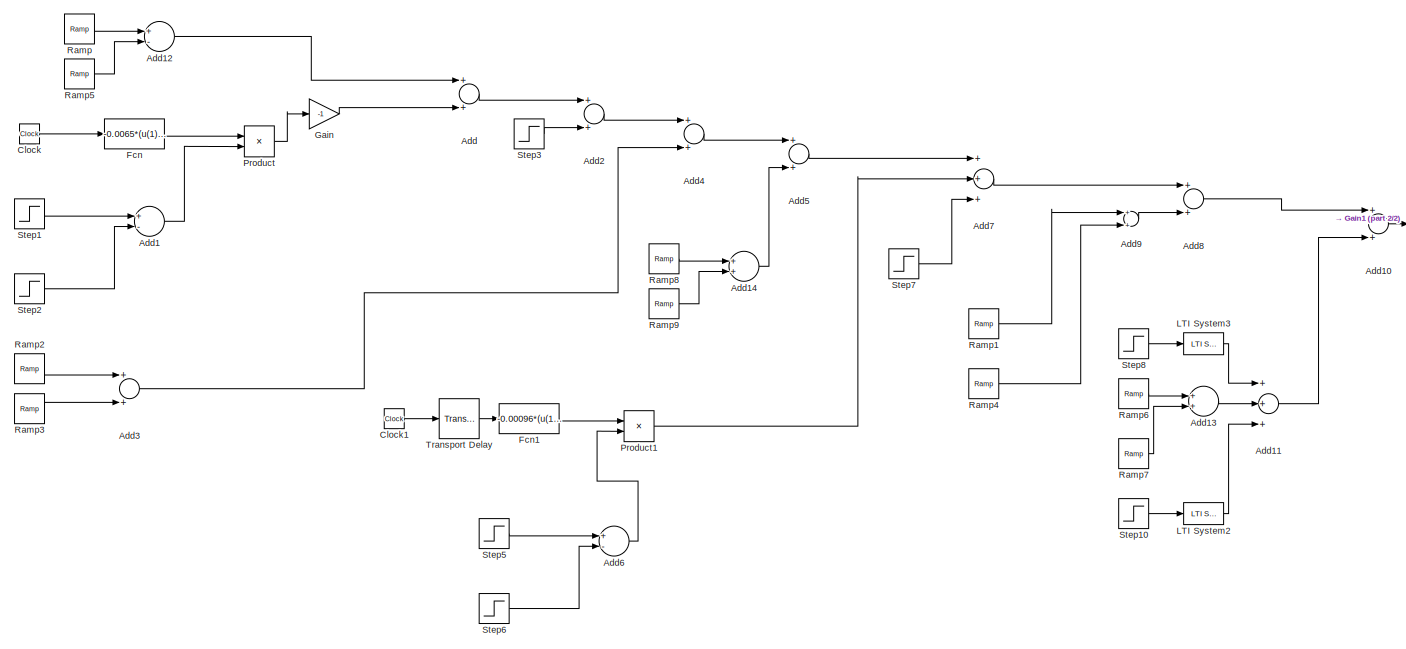
[diagram: LFC with State Feedback/Area 2/Load and Interarea Power Flow/Load Disturbance Area 2  - part 1/2, most of the canvas]
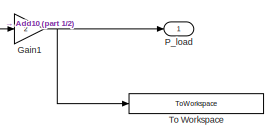
[diagram: LFC with State Feedback/Area 2/Load and Interarea Power Flow/Load Disturbance Area 2  - part 2/2, middle right region]
BLOCK [SubSystem] LFC with State Feedback/Area 2/Load and Interarea Power Flow/Load Disturbance Area 2 
  Ports = [0, 1]
  RequestExecContextInheritance = off
BLOCK [Sum] LFC with State Feedback/Area 2/Load and Interarea Power Flow/Load Disturbance Area 2 /Add
  InputSameDT = off
  OutDataTypeStr = Inherit: Inherit via internal rule
  Ports = [2, 1]
  SaturateOnIntegerOverflow = off
BLOCK [Sum] LFC with State Feedback/Area 2/Load and Interarea Power Flow/Load Disturbance Area 2 /Add1
  InputSameDT = off
  Inputs = +-
  OutDataTypeStr = Inherit: Inherit via internal rule
  Ports = [2, 1]
  SaturateOnIntegerOverflow = off
BLOCK [Sum] LFC with State Feedback/Area 2/Load and Interarea Power Flow/Load Disturbance Area 2 /Add10
  InputSameDT = off
  OutDataTypeStr = Inherit: Inherit via internal rule
  Ports = [2, 1]
  SaturateOnIntegerOverflow = off
BLOCK [Sum] LFC with State Feedback/Area 2/Load and Interarea Power Flow/Load Disturbance Area 2 /Add11
  InputSameDT = off
  Inputs = +++
  OutDataTypeStr = Inherit: Inherit via internal rule
  Ports = [3, 1]
  SaturateOnIntegerOverflow = off
BLOCK [Sum] LFC with State Feedback/Area 2/Load and Interarea Power Flow/Load Disturbance Area 2 /Add12
  InputSameDT = off
  Inputs = +-
  OutDataTypeStr = Inherit: Inherit via internal rule
  Ports = [2, 1]
  SaturateOnIntegerOverflow = off
BLOCK [Sum] LFC with State Feedback/Area 2/Load and Interarea Power Flow/Load Disturbance Area 2 /Add13
  InputSameDT = off
  OutDataTypeStr = Inherit: Inherit via internal rule
  Ports = [2, 1]
  SaturateOnIntegerOverflow = off
BLOCK [Sum] LFC with State Feedback/Area 2/Load and Interarea Power Flow/Load Disturbance Area 2 /Add14
  InputSameDT = off
  OutDataTypeStr = Inherit: Inherit via internal rule
  Ports = [2, 1]
  SaturateOnIntegerOverflow = off
BLOCK [Sum] LFC with State Feedback/Area 2/Load and Interarea Power Flow/Load Disturbance Area 2 /Add2
  InputSameDT = off
  OutDataTypeStr = Inherit: Inherit via internal rule
  Ports = [2, 1]
  SaturateOnIntegerOverflow = off
BLOCK [Sum] LFC with State Feedback/Area 2/Load and Interarea Power Flow/Load Disturbance Area 2 /Add3
  InputSameDT = off
  OutDataTypeStr = Inherit: Inherit via internal rule
  Ports = [2, 1]
  SaturateOnIntegerOverflow = off
BLOCK [Sum] LFC with State Feedback/Area 2/Load and Interarea Power Flow/Load Disturbance Area 2 /Add4
  InputSameDT = off
  OutDataTypeStr = Inherit: Inherit via internal rule
  Ports = [2, 1]
  SaturateOnIntegerOverflow = off
BLOCK [Sum] LFC with State Feedback/Area 2/Load and Interarea Power Flow/Load Disturbance Area 2 /Add5
  InputSameDT = off
  OutDataTypeStr = Inherit: Inherit via internal rule
  Ports = [2, 1]
  SaturateOnIntegerOverflow = off
BLOCK [Sum] LFC with State Feedback/Area 2/Load and Interarea Power Flow/Load Disturbance Area 2 /Add6
  InputSameDT = off
  Inputs = +-
  OutDataTypeStr = Inherit: Inherit via internal rule
  Ports = [2, 1]
  SaturateOnIntegerOverflow = off
BLOCK [Sum] LFC with State Feedback/Area 2/Load and Interarea Power Flow/Load Disturbance Area 2 /Add7
  InputSameDT = off
  Inputs = +++
  OutDataTypeStr = Inherit: Inherit via internal rule
  Ports = [3, 1]
  SaturateOnIntegerOverflow = off
BLOCK [Sum] LFC with State Feedback/Area 2/Load and Interarea Power Flow/Load Disturbance Area 2 /Add8
  InputSameDT = off
  OutDataTypeStr = Inherit: Inherit via internal rule
  Ports = [2, 1]
  SaturateOnIntegerOverflow = off
BLOCK [Sum] LFC with State Feedback/Area 2/Load and Interarea Power Flow/Load Disturbance Area 2 /Add9
  InputSameDT = off
  OutDataTypeStr = Inherit: Inherit via internal rule
  Ports = [2, 1]
  SaturateOnIntegerOverflow = off
BLOCK [Clock] LFC with State Feedback/Area 2/Load and Interarea Power Flow/Load Disturbance Area 2 /Clock
BLOCK [Clock] LFC with State Feedback/Area 2/Load and Interarea Power Flow/Load Disturbance Area 2 /Clock1
BLOCK [Fcn] LFC with State Feedback/Area 2/Load and Interarea Power Flow/Load Disturbance Area 2 /Fcn
  Expr = -0.0065*(u(1)^2)+1.56*u(1)-91
BLOCK [Fcn] LFC with State Feedback/Area 2/Load and Interarea Power Flow/Load Disturbance Area 2 /Fcn1
  Expr = -0.00096*(u(1)^2)+0.0960*u(1)
BLOCK [Gain] LFC with State Feedback/Area 2/Load and Interarea Power Flow/Load Disturbance Area 2 /Gain
  Gain = -1
  OutDataTypeStr = Inherit: Inherit via internal rule
  ParamDataTypeStr = Inherit: Inherit via internal rule
  SaturateOnIntegerOverflow = off
BLOCK [Gain] LFC with State Feedback/Area 2/Load and Interarea Power Flow/Load Disturbance Area 2 /Gain1
  Gain = 2
  OutDataTypeStr = Inherit: Inherit via internal rule
  ParamDataTypeStr = Inherit: Inherit via internal rule
  SaturateOnIntegerOverflow = off
BLOCK [Reference] LFC with State Feedback/Area 2/Load and Interarea Power Flow/Load Disturbance Area 2 /LTI System2  REF=cstblocks/LTI System
  Ports = [1, 1]
  SourceBlock = cstblocks/LTI System
  SourceProductBaseCode = CT
  SourceProductName = Control System Toolbox
  SourceType = LTI Block
BLOCK [Reference] LFC with State Feedback/Area 2/Load and Interarea Power Flow/Load Disturbance Area 2 /LTI System3  REF=cstblocks/LTI System
  Ports = [1, 1]
  SourceBlock = cstblocks/LTI System
  SourceProductBaseCode = CT
  SourceProductName = Control System Toolbox
  SourceType = LTI Block
BLOCK [Outport] LFC with State Feedback/Area 2/Load and Interarea Power Flow/Load Disturbance Area 2 /P_load
  IconDisplay = Port number
BLOCK [Product] LFC with State Feedback/Area 2/Load and Interarea Power Flow/Load Disturbance Area 2 /Product
  InputSameDT = off
  OutDataTypeStr = Inherit: Inherit via internal rule
  Ports = [2, 1]
  RndMeth = Floor
  SaturateOnIntegerOverflow = off
BLOCK [Product] LFC with State Feedback/Area 2/Load and Interarea Power Flow/Load Disturbance Area 2 /Product1
  InputSameDT = off
  OutDataTypeStr = Inherit: Inherit via internal rule
  Ports = [2, 1]
  RndMeth = Floor
  SaturateOnIntegerOverflow = off
BLOCK [Reference] LFC with State Feedback/Area 2/Load and Interarea Power Flow/Load Disturbance Area 2 /Ramp  REF=simulink/Sources/Ramp
  Ports = [0, 1]
  SourceBlock = simulink/Sources/Ramp
  SourceProductBaseCode = SL
  SourceProductName = Simulink
  SourceType = Ramp
BLOCK [Reference] LFC with State Feedback/Area 2/Load and Interarea Power Flow/Load Disturbance Area 2 /Ramp1  REF=simulink/Sources/Ramp
  Ports = [0, 1]
  SourceBlock = simulink/Sources/Ramp
  SourceProductBaseCode = SL
  SourceProductName = Simulink
  SourceType = Ramp
BLOCK [Reference] LFC with State Feedback/Area 2/Load and Interarea Power Flow/Load Disturbance Area 2 /Ramp2  REF=simulink/Sources/Ramp
  Ports = [0, 1]
  SourceBlock = simulink/Sources/Ramp
  SourceProductBaseCode = SL
  SourceProductName = Simulink
  SourceType = Ramp
BLOCK [Reference] LFC with State Feedback/Area 2/Load and Interarea Power Flow/Load Disturbance Area 2 /Ramp3  REF=simulink/Sources/Ramp
  Ports = [0, 1]
  SourceBlock = simulink/Sources/Ramp
  SourceProductBaseCode = SL
  SourceProductName = Simulink
  SourceType = Ramp
BLOCK [Reference] LFC with State Feedback/Area 2/Load and Interarea Power Flow/Load Disturbance Area 2 /Ramp4  REF=simulink/Sources/Ramp
  Ports = [0, 1]
  SourceBlock = simulink/Sources/Ramp
  SourceProductBaseCode = SL
  SourceProductName = Simulink
  SourceType = Ramp
BLOCK [Reference] LFC with State Feedback/Area 2/Load and Interarea Power Flow/Load Disturbance Area 2 /Ramp5  REF=simulink/Sources/Ramp
  Ports = [0, 1]
  SourceBlock = simulink/Sources/Ramp
  SourceProductBaseCode = SL
  SourceProductName = Simulink
  SourceType = Ramp
BLOCK [Reference] LFC with State Feedback/Area 2/Load and Interarea Power Flow/Load Disturbance Area 2 /Ramp6  REF=simulink/Sources/Ramp
  Ports = [0, 1]
  SourceBlock = simulink/Sources/Ramp
  SourceProductBaseCode = SL
  SourceProductName = Simulink
  SourceType = Ramp
BLOCK [Reference] LFC with State Feedback/Area 2/Load and Interarea Power Flow/Load Disturbance Area 2 /Ramp7  REF=simulink/Sources/Ramp
  Ports = [0, 1]
  SourceBlock = simulink/Sources/Ramp
  SourceProductBaseCode = SL
  SourceProductName = Simulink
  SourceType = Ramp
BLOCK [Reference] LFC with State Feedback/Area 2/Load and Interarea Power Flow/Load Disturbance Area 2 /Ramp8  REF=simulink/Sources/Ramp
  Ports = [0, 1]
  SourceBlock = simulink/Sources/Ramp
  SourceProductBaseCode = SL
  SourceProductName = Simulink
  SourceType = Ramp
BLOCK [Reference] LFC with State Feedback/Area 2/Load and Interarea Power Flow/Load Disturbance Area 2 /Ramp9  REF=simulink/Sources/Ramp
  Ports = [0, 1]
  SourceBlock = simulink/Sources/Ramp
  SourceProductBaseCode = SL
  SourceProductName = Simulink
  SourceType = Ramp
BLOCK [Step] LFC with State Feedback/Area 2/Load and Interarea Power Flow/Load Disturbance Area 2 /Step1
  SampleTime = 0
  Time = 100
BLOCK [Step] LFC with State Feedback/Area 2/Load and Interarea Power Flow/Load Disturbance Area 2 /Step10
  After = -3.5
  SampleTime = 0
  Time = 450
BLOCK [Step] LFC with State Feedback/Area 2/Load and Interarea Power Flow/Load Disturbance Area 2 /Step2
  SampleTime = 0
  Time = 120
BLOCK [Step] LFC with State Feedback/Area 2/Load and Interarea Power Flow/Load Disturbance Area 2 /Step3
  After = -2.6
  SampleTime = 0
  Time = 120
BLOCK [Step] LFC with State Feedback/Area 2/Load and Interarea Power Flow/Load Disturbance Area 2 /Step5
  SampleTime = 0
  Time = 290
BLOCK [Step] LFC with State Feedback/Area 2/Load and Interarea Power Flow/Load Disturbance Area 2 /Step6
  SampleTime = 0
  Time = 340
BLOCK [Step] LFC with State Feedback/Area 2/Load and Interarea Power Flow/Load Disturbance Area 2 /Step7
  After = 2.4
  SampleTime = 0
  Time = 340
BLOCK [Step] LFC with State Feedback/Area 2/Load and Interarea Power Flow/Load Disturbance Area 2 /Step8
  After = 1.2
  SampleTime = 0
  Time = 420
BLOCK [ToWorkspace] LFC with State Feedback/Area 2/Load and Interarea Power Flow/Load Disturbance Area 2 /To Workspace
  Commented = on
  FixptAsFi = on
  MaxDataPoints = inf
  Ports = [1]
  SampleTime = -1
  Save2DSignal = 3-D array (concatenate along third dimension)
  SaveFormat = Structure With Time
  VariableName = LoadDisturbanceArea2
BLOCK [TransportDelay] LFC with State Feedback/Area 2/Load and Interarea Power Flow/Load Disturbance Area 2 /Transport Delay
  DelayTime = 290
  Ports = [1, 1]
BLOCK [SubSystem] LFC with State Feedback/Area 2/Load and Interarea Power Flow/PV Negative Load Area 2
  Ports = [1, 1]
  RequestExecContextInheritance = off
BLOCK [Inport] LFC with State Feedback/Area 2/Load and Interarea Power Flow/PV Negative Load Area 2/Irradiance
  IconDisplay = Port number
BLOCK [Reference] LFC with State Feedback/Area 2/Load and Interarea Power Flow/PV Negative Load Area 2/PV Generator as Negative Load  REF=cstblocks/LTI System
  Ports = [1, 1]
  SourceBlock = cstblocks/LTI System
  SourceProductBaseCode = CT
  SourceProductName = Control System Toolbox
  SourceType = LTI Block
BLOCK [Outport] LFC with State Feedback/Area 2/Load and Interarea Power Flow/PV Negative Load Area 2/P_pv
  IconDisplay = Port number
BLOCK [Inport] LFC with State Feedback/Area 2/Load and Interarea Power Flow/P_12
  IconDisplay = Port number
BLOCK [Inport] LFC with State Feedback/Area 2/Load and Interarea Power Flow/P_23
  IconDisplay = Port number
  Port = 2
BLOCK [Outport] LFC with State Feedback/Area 2/Load and Interarea Power Flow/P_load
  IconDisplay = Port number
BLOCK [RandomNumber] LFC with State Feedback/Area 2/Load and Interarea Power Flow/Random Number
  Mean = 15
  SampleTime = 10
  Variance = 15
BLOCK [RateTransition] LFC with State Feedback/Area 2/Load and Interarea Power Flow/Rate Transition
BLOCK [Scope] LFC with State Feedback/Area 2/Load and Interarea Power Flow/Scope
  Floating = off
  NumInputPorts = 1
  Ports = [1]
  ScopeSpecificationString = Simulink.scopes.TimeScopeBlockCfg('CurrentConfiguration', extmgr.ConfigurationSet(extmgr.Configuration('Core','General UI',true),extmgr.Configuration('Core','Source UI',true),extmgr.Configuration('Sources','WiredSimulink',true,'DataLoggingVariableName','ScopeData4','DataLoggingSaveFormat','Array','DataLoggingDecimation','1','DataLoggingDecimateData',true),extmgr.Configuration('Visuals','Time Domai...<+1674ch>
BLOCK [SubSystem] LFC with State Feedback/Area 2/PV Generator 2 
  Ports = [1, 1]
  RequestExecContextInheritance = off
BLOCK [Reference] LFC with State Feedback/Area 2/PV Generator 2 /PV Dynamics for LFC Participation  REF=cstblocks/LTI System
  Ports = [1, 1]
  SourceBlock = cstblocks/LTI System
  SourceProductBaseCode = CT
  SourceProductName = Control System Toolbox
  SourceType = LTI Block
BLOCK [Outport] LFC with State Feedback/Area 2/PV Generator 2 /dP_pv
  IconDisplay = Port number
BLOCK [Inport] LFC with State Feedback/Area 2/PV Generator 2 /u
  IconDisplay = Port number
BLOCK [Gain] LFC with State Feedback/Area 2/Participation Factor G4
  Gain = a_4
  OutDataTypeStr = Inherit: Inherit via internal rule
  ParamDataTypeStr = Inherit: Inherit via internal rule
  SaturateOnIntegerOverflow = off
BLOCK [Gain] LFC with State Feedback/Area 2/Participation Factor G5
  Gain = a_5
  OutDataTypeStr = Inherit: Inherit via internal rule
  ParamDataTypeStr = Inherit: Inherit via internal rule
  SaturateOnIntegerOverflow = off
BLOCK [Gain] LFC with State Feedback/Area 2/Participation Factor G6
  Gain = a_6
  OutDataTypeStr = Inherit: Inherit via internal rule
  ParamDataTypeStr = Inherit: Inherit via internal rule
  SaturateOnIntegerOverflow = off
BLOCK [Gain] LFC with State Feedback/Area 2/Participation Factor G7
  Gain = a_7
  OutDataTypeStr = Inherit: Inherit via internal rule
  ParamDataTypeStr = Inherit: Inherit via internal rule
  SaturateOnIntegerOverflow = off
BLOCK [Gain] LFC with State Feedback/Area 2/Participation Factor PV2
  Gain = a_PV2
  OutDataTypeStr = Inherit: Inherit via internal rule
  ParamDataTypeStr = Inherit: Inherit via internal rule
  SaturateOnIntegerOverflow = off
BLOCK [Gain] LFC with State Feedback/Area 2/Permanent Droop G5
  Gain = 1/Rp5
  OutDataTypeStr = Inherit: Inherit via internal rule
  ParamDataTypeStr = Inherit: Inherit via internal rule
  SaturateOnIntegerOverflow = off
BLOCK [Gain] LFC with State Feedback/Area 2/Permanent Droop G6
  Gain = 1/Rp6
  OutDataTypeStr = Inherit: Inherit via internal rule
  ParamDataTypeStr = Inherit: Inherit via internal rule
  SaturateOnIntegerOverflow = off
BLOCK [Gain] LFC with State Feedback/Area 2/Permanent Droop G7
  Gain = 1/Rp7
  OutDataTypeStr = Inherit: Inherit via internal rule
  ParamDataTypeStr = Inherit: Inherit via internal rule
  SaturateOnIntegerOverflow = off
BLOCK [TransferFcn] LFC with State Feedback/Area 2/Rotating mass and load inertia
  Denominator = [2*H_A2 D]
BLOCK [Scope] LFC with State Feedback/Area 2/Scope
  Floating = off
  NumInputPorts = 1
  Ports = [1]
  ScopeSpecificationString = Simulink.scopes.TimeScopeBlockCfg('CurrentConfiguration', extmgr.ConfigurationSet(extmgr.Configuration('Core','General UI',true),extmgr.Configuration('Core','Source UI',true),extmgr.Configuration('Sources','WiredSimulink',true,'DataLoggingVariableName','ScopeData1','DataLoggingSaveFormat','Array','DataLoggingDecimation','1','DataLoggingDecimateData',true),extmgr.Configuration('Visuals','Time Domai...<+1701ch>
BLOCK [Scope] LFC with State Feedback/Area 2/Scope1
  Floating = off
  NumInputPorts = 1
  Ports = [1]
  ScopeSpecificationString = Simulink.scopes.TimeScopeBlockCfg('CurrentConfiguration', extmgr.ConfigurationSet(extmgr.Configuration('Core','General UI',true),extmgr.Configuration('Core','Source UI',true),extmgr.Configuration('Sources','WiredSimulink',true,'DataLoggingVariableName','ScopeData2','DataLoggingSaveFormat','Array','DataLoggingDecimation','1','DataLoggingDecimateData',true),extmgr.Configuration('Visuals','Time Domai...<+1671ch>
BLOCK [Sum] LFC with State Feedback/Area 2/Sum1
  IconShape = round
  InputSameDT = off
  Inputs = -+|
  OutDataTypeStr = Inherit: Inherit via internal rule
  Ports = [2, 1]
  SaturateOnIntegerOverflow = off
BLOCK [Sum] LFC with State Feedback/Area 2/Sum2
  IconShape = round
  InputSameDT = off
  Inputs = -+|
  OutDataTypeStr = Inherit: Inherit via internal rule
  Ports = [2, 1]
  SaturateOnIntegerOverflow = off
BLOCK [Sum] LFC with State Feedback/Area 2/Sum3
  IconShape = round
  InputSameDT = off
  Inputs = -+|
  OutDataTypeStr = Inherit: Inherit via internal rule
  Ports = [2, 1]
  SaturateOnIntegerOverflow = off
BLOCK [Sum] LFC with State Feedback/Area 2/Sum4
  IconShape = round
  InputSameDT = off
  Inputs = -+|
  OutDataTypeStr = Inherit: Inherit via internal rule
  Ports = [2, 1]
  SaturateOnIntegerOverflow = off
BLOCK [Sum] LFC with State Feedback/Area 2/Sum5
  IconShape = round
  InputSameDT = off
  Inputs = -+|
  OutDataTypeStr = Inherit: Inherit via internal rule
  Ports = [2, 1]
  SaturateOnIntegerOverflow = off
BLOCK [Outport] LFC with State Feedback/Area 2/omega_2
  IconDisplay = Port number
BLOCK [SubSystem] LFC with State Feedback/Area 3
  Ports = [2, 1]
  RequestExecContextInheritance = off
BLOCK [SubSystem] LFC with State Feedback/Area 3/ADRC Controller A3
  Ports = [1, 1]
  RequestExecContextInheritance = off
BLOCK [Inport] LFC with State Feedback/Area 3/ADRC Controller A3/ACE
  IconDisplay = Port number
BLOCK [Sum] LFC with State Feedback/Area 3/ADRC Controller A3/Add
  InputSameDT = off
  Inputs = -+
  OutDataTypeStr = Inherit: Inherit via internal rule
  Ports = [2, 1]
  SaturateOnIntegerOverflow = off
BLOCK [Gain] LFC with State Feedback/Area 3/ADRC Controller A3/Estimated State
  Gain = X_hat_3
  Multiplication = Matrix(K*u) (u vector)
  OutDataTypeStr = Inherit: Inherit via internal rule
  ParamDataTypeStr = Inherit: Inherit via internal rule
  SaturateOnIntegerOverflow = off
BLOCK [Gain] LFC with State Feedback/Area 3/ADRC Controller A3/Estimated disturbance
  Commented = on
  Gain = Xi_hat_3
  Multiplication = Matrix(K*u) (u vector)
  OutDataTypeStr = Inherit: Inherit via internal rule
  ParamDataTypeStr = Inherit: Inherit via internal rule
  SaturateOnIntegerOverflow = off
BLOCK [StateSpace] LFC with State Feedback/Area 3/ADRC Controller A3/Extended-State Observer Controller A3
  A = A_obs_3
  B = B_obs_3
  C = C_obs_3
  D = D_obs_3
  InitialCondition = 0
  Ports = [1, 1]
BLOCK [Mux] LFC with State Feedback/Area 3/ADRC Controller A3/Mux
  DisplayOption = bar
  Inputs = 2
  Ports = [2, 1]
BLOCK [Outport] LFC with State Feedback/Area 3/ADRC Controller A3/Out1
  IconDisplay = Port number
BLOCK [Gain] LFC with State Feedback/Area 3/ADRC Controller A3/State Feedback Gain
  Gain = K3
  Multiplication = Matrix(K*u)
  OutDataTypeStr = Inherit: Inherit via internal rule
  ParamDataTypeStr = Inherit: Inherit via internal rule
  SaturateOnIntegerOverflow = off
BLOCK [Sum] LFC with State Feedback/Area 3/Add
  InputSameDT = off
  Inputs = 6
  OutDataTypeStr = Inherit: Inherit via internal rule
  Ports = [6, 1]
  SaturateOnIntegerOverflow = off
BLOCK [Sum] LFC with State Feedback/Area 3/Add1
  InputSameDT = off
  Inputs = +-+
  OutDataTypeStr = Inherit: Inherit via internal rule
  Ports = [3, 1]
  SaturateOnIntegerOverflow = off
BLOCK [Gain] LFC with State Feedback/Area 3/Droop G9
  Gain = 1/R9
  OutDataTypeStr = Inherit: Inherit via internal rule
  ParamDataTypeStr = Inherit: Inherit via internal rule
  SaturateOnIntegerOverflow = off
BLOCK [Gain] LFC with State Feedback/Area 3/Droop PV3
  Gain = 1/RPV3
  OutDataTypeStr = Inherit: Inherit via internal rule
  ParamDataTypeStr = Inherit: Inherit via internal rule
  SaturateOnIntegerOverflow = off
BLOCK [Gain] LFC with State Feedback/Area 3/Droop WT3
  Gain = 1/RWT3
  OutDataTypeStr = Inherit: Inherit via internal rule
  ParamDataTypeStr = Inherit: Inherit via internal rule
  SaturateOnIntegerOverflow = off
BLOCK [From] LFC with State Feedback/Area 3/From1
  GotoTag = delta_omega
BLOCK [From] LFC with State Feedback/Area 3/From2
  GotoTag = delta_omega
BLOCK [From] LFC with State Feedback/Area 3/From3
  GotoTag = delta_omega
BLOCK [From] LFC with State Feedback/Area 3/From4
  GotoTag = delta_omega
BLOCK [From] LFC with State Feedback/Area 3/From5
  GotoTag = delta_omega
BLOCK [From] LFC with State Feedback/Area 3/From6
  GotoTag = delta_omega
BLOCK [SubSystem] LFC with State Feedback/Area 3/G10 Turbine and Generator
  Ports = [1, 1]
  RequestExecContextInheritance = off
BLOCK [Reference] LFC with State Feedback/Area 3/G10 Turbine and Generator/G10 Governor  REF=cstblocks/LTI System
  Ports = [1, 1]
  SourceBlock = cstblocks/LTI System
  SourceProductBaseCode = CT
  SourceProductName = Control System Toolbox
  SourceType = LTI Block
BLOCK [Reference] LFC with State Feedback/Area 3/G10 Turbine and Generator/G10 Transient Droop Compensation  REF=cstblocks/LTI System
  Ports = [1, 1]
  SourceBlock = cstblocks/LTI System
  SourceProductBaseCode = CT
  SourceProductName = Control System Toolbox
  SourceType = LTI Block
BLOCK [Reference] LFC with State Feedback/Area 3/G10 Turbine and Generator/G10 Turbine  REF=cstblocks/LTI System
  Ports = [1, 1]
  SourceBlock = cstblocks/LTI System
  SourceProductBaseCode = CT
  SourceProductName = Control System Toolbox
  SourceType = LTI Block
BLOCK [Outport] LFC with State Feedback/Area 3/G10 Turbine and Generator/dP_m
  IconDisplay = Port number
BLOCK [Inport] LFC with State Feedback/Area 3/G10 Turbine and Generator/u
  IconDisplay = Port number
BLOCK [SubSystem] LFC with State Feedback/Area 3/G8 Turbine and Generator
  Ports = [1, 1]
  RequestExecContextInheritance = off
BLOCK [Reference] LFC with State Feedback/Area 3/G8 Turbine and Generator/G8 Governor  REF=cstblocks/LTI System
  Ports = [1, 1]
  SourceBlock = cstblocks/LTI System
  SourceProductBaseCode = CT
  SourceProductName = Control System Toolbox
  SourceType = LTI Block
BLOCK [Reference] LFC with State Feedback/Area 3/G8 Turbine and Generator/G8 Transient Droop Compensation  REF=cstblocks/LTI System
  Ports = [1, 1]
  SourceBlock = cstblocks/LTI System
  SourceProductBaseCode = CT
  SourceProductName = Control System Toolbox
  SourceType = LTI Block
BLOCK [Reference] LFC with State Feedback/Area 3/G8 Turbine and Generator/G8 Turbine  REF=cstblocks/LTI System
  Ports = [1, 1]
  SourceBlock = cstblocks/LTI System
  SourceProductBaseCode = CT
  SourceProductName = Control System Toolbox
  SourceType = LTI Block
BLOCK [Outport] LFC with State Feedback/Area 3/G8 Turbine and Generator/dP_m
  IconDisplay = Port number
BLOCK [Inport] LFC with State Feedback/Area 3/G8 Turbine and Generator/u
  IconDisplay = Port number
BLOCK [SubSystem] LFC with State Feedback/Area 3/G9 Turbine and Generator
  Ports = [1, 1]
  RequestExecContextInheritance = off
BLOCK [Reference] LFC with State Feedback/Area 3/G9 Turbine and Generator/G9 Governor  REF=cstblocks/LTI System
  Ports = [1, 1]
  SourceBlock = cstblocks/LTI System
  SourceProductBaseCode = CT
  SourceProductName = Control System Toolbox
  SourceType = LTI Block
BLOCK [Reference] LFC with State Feedback/Area 3/G9 Turbine and Generator/G9 Turbine  REF=cstblocks/LTI System
  Ports = [1, 1]
  SourceBlock = cstblocks/LTI System
  SourceProductBaseCode = CT
  SourceProductName = Control System Toolbox
  SourceType = LTI Block
BLOCK [Outport] LFC with State Feedback/Area 3/G9 Turbine and Generator/dP_m
  IconDisplay = Port number
BLOCK [Inport] LFC with State Feedback/Area 3/G9 Turbine and Generator/u
  IconDisplay = Port number
BLOCK [Gain] LFC with State Feedback/Area 3/Gain
  Gain = B3
  OutDataTypeStr = Inherit: Inherit via internal rule
  ParamDataTypeStr = Inherit: Inherit via internal rule
  SaturateOnIntegerOverflow = off
BLOCK [Goto] LFC with State Feedback/Area 3/Goto
  GotoTag = delta_omega
BLOCK [Inport] LFC with State Feedback/Area 3/Interarea Power Flow 2-3
  IconDisplay = Port number
BLOCK [InportShadow] LFC with State Feedback/Area 3/Interarea Power Flow 23
  IconDisplay = Port number
BLOCK [Inport] LFC with State Feedback/Area 3/Interarea Power Flow 3-1
  IconDisplay = Port number
  Port = 2
BLOCK [InportShadow] LFC with State Feedback/Area 3/Interarea Power Flow 31
  IconDisplay = Port number
  Port = 2
BLOCK [SubSystem] LFC with State Feedback/Area 3/Load and Interarea Power Flow
  Ports = [2, 1]
  RequestExecContextInheritance = off
BLOCK [Sum] LFC with State Feedback/Area 3/Load and Interarea Power Flow/Add
  InputSameDT = off
  Inputs = +-
  OutDataTypeStr = Inherit: Inherit via internal rule
  Ports = [2, 1]
  SaturateOnIntegerOverflow = off
BLOCK [Sum] LFC with State Feedback/Area 3/Load and Interarea Power Flow/Add1
  InputSameDT = off
  Inputs = +++
  OutDataTypeStr = Inherit: Inherit via internal rule
  Ports = [3, 1]
  SaturateOnIntegerOverflow = off
BLOCK [Gain] LFC with State Feedback/Area 3/Load and Interarea Power Flow/Gain1
  Gain = -1
  OutDataTypeStr = Inherit: Inherit via internal rule
  ParamDataTypeStr = Inherit: Inherit via internal rule
  SaturateOnIntegerOverflow = off
BLOCK [Reference] LFC with State Feedback/Area 3/Load and Interarea Power Flow/LTI System  REF=cstblocks/LTI System
  Ports = [1, 1]
  SourceBlock = cstblocks/LTI System
  SourceProductBaseCode = CT
  SourceProductName = Control System Toolbox
  SourceType = LTI Block
BLOCK [SubSystem] LFC with State Feedback/Area 3/Load and Interarea Power Flow/Load Disturbance Area 3 
  Ports = [0, 1]
  RequestExecContextInheritance = off
BLOCK [Sum] LFC with State Feedback/Area 3/Load and Interarea Power Flow/Load Disturbance Area 3 /Add
  InputSameDT = off
  Inputs = +++++++++
  OutDataTypeStr = Inherit: Inherit via internal rule
  Ports = [9, 1]
  SaturateOnIntegerOverflow = off
BLOCK [Sum] LFC with State Feedback/Area 3/Load and Interarea Power Flow/Load Disturbance Area 3 /Add1
  InputSameDT = off
  Inputs = +-
  OutDataTypeStr = Inherit: Inherit via internal rule
  Ports = [2, 1]
  SaturateOnIntegerOverflow = off
BLOCK [Sum] LFC with State Feedback/Area 3/Load and Interarea Power Flow/Load Disturbance Area 3 /Add2
  InputSameDT = off
  OutDataTypeStr = Inherit: Inherit via internal rule
  Ports = [2, 1]
  SaturateOnIntegerOverflow = off
BLOCK [Sum] LFC with State Feedback/Area 3/Load and Interarea Power Flow/Load Disturbance Area 3 /Add3
  InputSameDT = off
  Inputs = +-
  OutDataTypeStr = Inherit: Inherit via internal rule
  Ports = [2, 1]
  SaturateOnIntegerOverflow = off
BLOCK [Sum] LFC with State Feedback/Area 3/Load and Interarea Power Flow/Load Disturbance Area 3 /Add4
  InputSameDT = off
  OutDataTypeStr = Inherit: Inherit via internal rule
  Ports = [2, 1]
  SaturateOnIntegerOverflow = off
BLOCK [Clock] LFC with State Feedback/Area 3/Load and Interarea Power Flow/Load Disturbance Area 3 /Clock
BLOCK [Clock] LFC with State Feedback/Area 3/Load and Interarea Power Flow/Load Disturbance Area 3 /Clock1
BLOCK [Fcn] LFC with State Feedback/Area 3/Load and Interarea Power Flow/Load Disturbance Area 3 /Fcn
  Expr = -0.000243055555556*(u(1)^2)+0.05833333*u(1)
BLOCK [Fcn] LFC with State Feedback/Area 3/Load and Interarea Power Flow/Load Disturbance Area 3 /Fcn1
  Expr = -0.000076628352490*(u(1)^2)+0.068965517241379*u(1)
BLOCK [Reference] LFC with State Feedback/Area 3/Load and Interarea Power Flow/Load Disturbance Area 3 /LTI System  REF=cstblocks/LTI System
  Ports = [1, 1]
  SourceBlock = cstblocks/LTI System
  SourceProductBaseCode = CT
  SourceProductName = Control System Toolbox
  SourceType = LTI Block
BLOCK [Reference] LFC with State Feedback/Area 3/Load and Interarea Power Flow/Load Disturbance Area 3 /LTI System1  REF=cstblocks/LTI System
  Ports = [1, 1]
  SourceBlock = cstblocks/LTI System
  SourceProductBaseCode = CT
  SourceProductName = Control System Toolbox
  SourceType = LTI Block
BLOCK [Outport] LFC with State Feedback/Area 3/Load and Interarea Power Flow/Load Disturbance Area 3 /P_load
  IconDisplay = Port number
BLOCK [Product] LFC with State Feedback/Area 3/Load and Interarea Power Flow/Load Disturbance Area 3 /Product
  InputSameDT = off
  OutDataTypeStr = Inherit: Inherit via internal rule
  Ports = [2, 1]
  RndMeth = Floor
  SaturateOnIntegerOverflow = off
BLOCK [Product] LFC with State Feedback/Area 3/Load and Interarea Power Flow/Load Disturbance Area 3 /Product1
  InputSameDT = off
  OutDataTypeStr = Inherit: Inherit via internal rule
  Ports = [2, 1]
  RndMeth = Floor
  SaturateOnIntegerOverflow = off
BLOCK [Reference] LFC with State Feedback/Area 3/Load and Interarea Power Flow/Load Disturbance Area 3 /Ramp  REF=simulink/Sources/Ramp
  Ports = [0, 1]
  SourceBlock = simulink/Sources/Ramp
  SourceProductBaseCode = SL
  SourceProductName = Simulink
  SourceType = Ramp
BLOCK [Reference] LFC with State Feedback/Area 3/Load and Interarea Power Flow/Load Disturbance Area 3 /Ramp1  REF=simulink/Sources/Ramp
  Ports = [0, 1]
  SourceBlock = simulink/Sources/Ramp
  SourceProductBaseCode = SL
  SourceProductName = Simulink
  SourceType = Ramp
BLOCK [Reference] LFC with State Feedback/Area 3/Load and Interarea Power Flow/Load Disturbance Area 3 /Ramp2  REF=simulink/Sources/Ramp
  Ports = [0, 1]
  SourceBlock = simulink/Sources/Ramp
  SourceProductBaseCode = SL
  SourceProductName = Simulink
  SourceType = Ramp
BLOCK [Reference] LFC with State Feedback/Area 3/Load and Interarea Power Flow/Load Disturbance Area 3 /Ramp3  REF=simulink/Sources/Ramp
  Ports = [0, 1]
  SourceBlock = simulink/Sources/Ramp
  SourceProductBaseCode = SL
  SourceProductName = Simulink
  SourceType = Ramp
BLOCK [Reference] LFC with State Feedback/Area 3/Load and Interarea Power Flow/Load Disturbance Area 3 /Ramp4  REF=simulink/Sources/Ramp
  Ports = [0, 1]
  SourceBlock = simulink/Sources/Ramp
  SourceProductBaseCode = SL
  SourceProductName = Simulink
  SourceType = Ramp
BLOCK [Step] LFC with State Feedback/Area 3/Load and Interarea Power Flow/Load Disturbance Area 3 /Step
  SampleTime = 0
  Time = 0
BLOCK [Step] LFC with State Feedback/Area 3/Load and Interarea Power Flow/Load Disturbance Area 3 /Step1
  SampleTime = 0
  Time = 120
BLOCK [Step] LFC with State Feedback/Area 3/Load and Interarea Power Flow/Load Disturbance Area 3 /Step2
  After = 3.5
  SampleTime = 0
  Time = 120
BLOCK [Step] LFC with State Feedback/Area 3/Load and Interarea Power Flow/Load Disturbance Area 3 /Step3
  SampleTime = 0
  Time = 260
BLOCK [Step] LFC with State Feedback/Area 3/Load and Interarea Power Flow/Load Disturbance Area 3 /Step4
  After = 1.25
  SampleTime = 0
  Time = 300
BLOCK [Step] LFC with State Feedback/Area 3/Load and Interarea Power Flow/Load Disturbance Area 3 /Step5
  SampleTime = 0
  Time = 420
BLOCK [Step] LFC with State Feedback/Area 3/Load and Interarea Power Flow/Load Disturbance Area 3 /Step6
  SampleTime = 0
  Time = 450
BLOCK [Step] LFC with State Feedback/Area 3/Load and Interarea Power Flow/Load Disturbance Area 3 /Step7
  After = 2
  SampleTime = 0
  Time = 450
BLOCK [ToWorkspace] LFC with State Feedback/Area 3/Load and Interarea Power Flow/Load Disturbance Area 3 /To Workspace
  Commented = on
  FixptAsFi = on
  MaxDataPoints = inf
  Ports = [1]
  SampleTime = -1
  Save2DSignal = 3-D array (concatenate along third dimension)
  SaveFormat = Structure With Time
  VariableName = LoadDisturbanceArea3
BLOCK [TransportDelay] LFC with State Feedback/Area 3/Load and Interarea Power Flow/Load Disturbance Area 3 /Transport Delay
  DelayTime = 420
  Ports = [1, 1]
BLOCK [SubSystem] LFC with State Feedback/Area 3/Load and Interarea Power Flow/PV Negative Load Area 3
  Ports = [1, 1]
  RequestExecContextInheritance = off
BLOCK [Inport] LFC with State Feedback/Area 3/Load and Interarea Power Flow/PV Negative Load Area 3/Irradiance
  IconDisplay = Port number
BLOCK [Reference] LFC with State Feedback/Area 3/Load and Interarea Power Flow/PV Negative Load Area 3/PV Generator as Negative Load  REF=cstblocks/LTI System
  Ports = [1, 1]
  SourceBlock = cstblocks/LTI System
  SourceProductBaseCode = CT
  SourceProductName = Control System Toolbox
  SourceType = LTI Block
BLOCK [Outport] LFC with State Feedback/Area 3/Load and Interarea Power Flow/PV Negative Load Area 3/P_pv
  IconDisplay = Port number
BLOCK [Inport] LFC with State Feedback/Area 3/Load and Interarea Power Flow/P_23
  IconDisplay = Port number
BLOCK [Inport] LFC with State Feedback/Area 3/Load and Interarea Power Flow/P_31
  IconDisplay = Port number
  Port = 2
BLOCK [Outport] LFC with State Feedback/Area 3/Load and Interarea Power Flow/P_load
  IconDisplay = Port number
BLOCK [RandomNumber] LFC with State Feedback/Area 3/Load and Interarea Power Flow/Random Number
  Mean = 75
  SampleTime = 35
  Variance = 10
BLOCK [RateTransition] LFC with State Feedback/Area 3/Load and Interarea Power Flow/Rate Transition
BLOCK [Scope] LFC with State Feedback/Area 3/Load and Interarea Power Flow/Scope
  Floating = off
  NumInputPorts = 1
  Ports = [1]
  ScopeSpecificationString = C++SS(StrPVP('Location','[10, 60, 1370, 748]'),StrPVP('Open','off'),MxPVP('AxesTitles',53,'struct(''axes1'',''%<SignalLabel>'')'),MxPVP('ScopeGraphics',56,'struct(''FigureColor'',''[0.5 0.5 0.5]'',''AxesColor'',''[0 0 0]'',''AxesTickColor'',''[1 1 1]'',''LineColors'',''[1 1 0;1 0 1;0 1 1;1 0 0;0 1 0;0 0 1]'',''LineStyles'',''-|-|-|-|-|-'',''LineWidths'',''[0.5 0.5 0.5 0.5 0.5 0.5]'',''MarkerStyles...<+196ch>
BLOCK [SubSystem] LFC with State Feedback/Area 3/PV Generator 3 
  Ports = [1, 1]
  RequestExecContextInheritance = off
BLOCK [Reference] LFC with State Feedback/Area 3/PV Generator 3 /PV Dynamics for LFC Participation  REF=cstblocks/LTI System
  Ports = [1, 1]
  SourceBlock = cstblocks/LTI System
  SourceProductBaseCode = CT
  SourceProductName = Control System Toolbox
  SourceType = LTI Block
BLOCK [Outport] LFC with State Feedback/Area 3/PV Generator 3 /dP_pv
  IconDisplay = Port number
BLOCK [Inport] LFC with State Feedback/Area 3/PV Generator 3 /u
  IconDisplay = Port number
BLOCK [Gain] LFC with State Feedback/Area 3/Participation Factor G10
  Gain = a_10
  OutDataTypeStr = Inherit: Inherit via internal rule
  ParamDataTypeStr = Inherit: Inherit via internal rule
  SaturateOnIntegerOverflow = off
BLOCK [Gain] LFC with State Feedback/Area 3/Participation Factor G8
  Gain = a_8
  OutDataTypeStr = Inherit: Inherit via internal rule
  ParamDataTypeStr = Inherit: Inherit via internal rule
  SaturateOnIntegerOverflow = off
BLOCK [Gain] LFC with State Feedback/Area 3/Participation Factor G9
  Gain = a_9
  OutDataTypeStr = Inherit: Inherit via internal rule
  ParamDataTypeStr = Inherit: Inherit via internal rule
  SaturateOnIntegerOverflow = off
BLOCK [Gain] LFC with State Feedback/Area 3/Participation Factor PV3
  Gain = a_PV3
  OutDataTypeStr = Inherit: Inherit via internal rule
  ParamDataTypeStr = Inherit: Inherit via internal rule
  SaturateOnIntegerOverflow = off
BLOCK [Gain] LFC with State Feedback/Area 3/Participation Factor WT3
  Gain = a_WT3
  OutDataTypeStr = Inherit: Inherit via internal rule
  ParamDataTypeStr = Inherit: Inherit via internal rule
  SaturateOnIntegerOverflow = off
BLOCK [Gain] LFC with State Feedback/Area 3/Permanent Droop G10
  Gain = 1/Rp10
  OutDataTypeStr = Inherit: Inherit via internal rule
  ParamDataTypeStr = Inherit: Inherit via internal rule
  SaturateOnIntegerOverflow = off
BLOCK [Gain] LFC with State Feedback/Area 3/Permanent Droop G8
  Gain = 1/Rp8
  OutDataTypeStr = Inherit: Inherit via internal rule
  ParamDataTypeStr = Inherit: Inherit via internal rule
  SaturateOnIntegerOverflow = off
BLOCK [TransferFcn] LFC with State Feedback/Area 3/Rotating mass and load inertia
  Denominator = [2*H_A3 D]
BLOCK [Scope] LFC with State Feedback/Area 3/Scope
  Floating = off
  NumInputPorts = 1
  Ports = [1]
  ScopeSpecificationString = Simulink.scopes.TimeScopeBlockCfg('CurrentConfiguration', extmgr.ConfigurationSet(extmgr.Configuration('Core','General UI',true),extmgr.Configuration('Core','Source UI',true),extmgr.Configuration('Sources','WiredSimulink',true,'DataLoggingSaveFormat','Array','DataLoggingDecimation','1','DataLoggingDecimateData',true),extmgr.Configuration('Visuals','Time Domain',true,'SerializedDisplays',{struct('M...<+1639ch>
BLOCK [Sum] LFC with State Feedback/Area 3/Sum1
  IconShape = round
  InputSameDT = off
  Inputs = -+|
  OutDataTypeStr = Inherit: Inherit via internal rule
  Ports = [2, 1]
  SaturateOnIntegerOverflow = off
BLOCK [Sum] LFC with State Feedback/Area 3/Sum2
  IconShape = round
  InputSameDT = off
  Inputs = -+|
  OutDataTypeStr = Inherit: Inherit via internal rule
  Ports = [2, 1]
  SaturateOnIntegerOverflow = off
BLOCK [Sum] LFC with State Feedback/Area 3/Sum3
  IconShape = round
  InputSameDT = off
  Inputs = -+|
  OutDataTypeStr = Inherit: Inherit via internal rule
  Ports = [2, 1]
  SaturateOnIntegerOverflow = off
BLOCK [Sum] LFC with State Feedback/Area 3/Sum4
  IconShape = round
  InputSameDT = off
  Inputs = -+|
  OutDataTypeStr = Inherit: Inherit via internal rule
  Ports = [2, 1]
  SaturateOnIntegerOverflow = off
BLOCK [Sum] LFC with State Feedback/Area 3/Sum5
  IconShape = round
  InputSameDT = off
  Inputs = -+|
  OutDataTypeStr = Inherit: Inherit via internal rule
  Ports = [2, 1]
  SaturateOnIntegerOverflow = off
BLOCK [SubSystem] LFC with State Feedback/Area 3/Wind Turbine 3
  Ports = [1, 1]
  RequestExecContextInheritance = off
BLOCK [Gain] LFC with State Feedback/Area 3/Wind Turbine 3/Blade Characteristic
  Gain = kpc
  OutDataTypeStr = Inherit: Inherit via internal rule
  ParamDataTypeStr = Inherit: Inherit via internal rule
  SaturateOnIntegerOverflow = off
BLOCK [Reference] LFC with State Feedback/Area 3/Wind Turbine 3/First order lag  REF=cstblocks/LTI System
  Ports = [1, 1]
  SourceBlock = cstblocks/LTI System
  SourceProductBaseCode = CT
  SourceProductName = Control System Toolbox
  SourceType = LTI Block
BLOCK [Reference] LFC with State Feedback/Area 3/Wind Turbine 3/Pitch actuator  REF=cstblocks/LTI System
  Ports = [1, 1]
  SourceBlock = cstblocks/LTI System
  SourceProductBaseCode = CT
  SourceProductName = Control System Toolbox
  SourceType = LTI Block
BLOCK [Outport] LFC with State Feedback/Area 3/Wind Turbine 3/d_Pw
  IconDisplay = Port number
BLOCK [Inport] LFC with State Feedback/Area 3/Wind Turbine 3/u
  IconDisplay = Port number
BLOCK [Outport] LFC with State Feedback/Area 3/omega_3
  IconDisplay = Port number
BLOCK [From] LFC with State Feedback/From
  GotoTag = omega_1
BLOCK [From] LFC with State Feedback/From1
  GotoTag = omega_1
BLOCK [From] LFC with State Feedback/From2
  GotoTag = omega_2
BLOCK [From] LFC with State Feedback/From3
  GotoTag = omega_3
BLOCK [From] LFC with State Feedback/From4
  GotoTag = P_31
BLOCK [From] LFC with State Feedback/From5
  GotoTag = P_31
BLOCK [From] LFC with State Feedback/From6
  GotoTag = P_23
BLOCK [From] LFC with State Feedback/From7
  GotoTag = P_12
BLOCK [Gain] LFC with State Feedback/Gain
  Gain = 60/(2*pi)
  OutDataTypeStr = Inherit: Inherit via internal rule
  ParamDataTypeStr = Inherit: Inherit via internal rule
  SaturateOnIntegerOverflow = off
BLOCK [Gain] LFC with State Feedback/Gain1
  Gain = 60/(2*pi)
  OutDataTypeStr = Inherit: Inherit via internal rule
  ParamDataTypeStr = Inherit: Inherit via internal rule
  SaturateOnIntegerOverflow = off
BLOCK [Gain] LFC with State Feedback/Gain3
  Gain = 60/(2*pi)
  OutDataTypeStr = Inherit: Inherit via internal rule
  ParamDataTypeStr = Inherit: Inherit via internal rule
  SaturateOnIntegerOverflow = off
BLOCK [Goto] LFC with State Feedback/Goto
  GotoTag = omega_1
BLOCK [Goto] LFC with State Feedback/Goto1
  GotoTag = omega_2
BLOCK [Goto] LFC with State Feedback/Goto2
  GotoTag = omega_3
BLOCK [Goto] LFC with State Feedback/Goto3
  GotoTag = P_31
BLOCK [Goto] LFC with State Feedback/Goto4
  GotoTag = P_23
BLOCK [Goto] LFC with State Feedback/Goto5
  GotoTag = P_12
BLOCK [Mux] LFC with State Feedback/Mux1
  DisplayOption = bar
  Inputs = 3
  Ports = [3, 1]
BLOCK [Mux] LFC with State Feedback/Mux3
  DisplayOption = bar
  Inputs = 3
  Ports = [3, 1]
BLOCK [Scope] LFC with State Feedback/Scope
  Floating = off
  NumInputPorts = 1
  Ports = [1]
  ScopeSpecificationString = Simulink.scopes.TimeScopeBlockCfg('CurrentConfiguration', extmgr.ConfigurationSet(extmgr.Configuration('Core','General UI',true),extmgr.Configuration('Core','Source UI',true),extmgr.Configuration('Sources','WiredSimulink',true,'DataLoggingVariableName','ScopeData3','DataLoggingSaveFormat','Array','DataLoggingDecimation','1','DataLoggingDecimateData',true),extmgr.Configuration('Visuals','Time Domai...<+1712ch>
BLOCK [Scope] LFC with State Feedback/Scope1
  Floating = off
  NumInputPorts = 1
  Ports = [1]
  ScopeSpecificationString = Simulink.scopes.TimeScopeBlockCfg('CurrentConfiguration', extmgr.ConfigurationSet(extmgr.Configuration('Core','General UI',true),extmgr.Configuration('Core','Source UI',true),extmgr.Configuration('Sources','WiredSimulink',true,'DataLoggingVariableName','ScopeData1','DataLoggingSaveFormat','Array','DataLoggingDecimation','1','DataLoggingDecimateData',true),extmgr.Configuration('Visuals','Time Domai...<+1784ch>
BLOCK [SubSystem] LFC with State Feedback/Subsystem
  Ports = [2, 1]
  RequestExecContextInheritance = off
BLOCK [Sum] LFC with State Feedback/Subsystem/Add
  InputSameDT = off
  Inputs = +-
  OutDataTypeStr = Inherit: Inherit via internal rule
  Ports = [2, 1]
  SaturateOnIntegerOverflow = off
BLOCK [Gain] LFC with State Feedback/Subsystem/Gain
  Gain = T12
  OutDataTypeStr = Inherit: Inherit via internal rule
  ParamDataTypeStr = Inherit: Inherit via internal rule
  SaturateOnIntegerOverflow = off
BLOCK [Integrator] LFC with State Feedback/Subsystem/Integrator2
  Ports = [1, 1]
BLOCK [Outport] LFC with State Feedback/Subsystem/P_12
  IconDisplay = Port number
BLOCK [Inport] LFC with State Feedback/Subsystem/omega_1
  IconDisplay = Port number
BLOCK [Inport] LFC with State Feedback/Subsystem/omega_2
  IconDisplay = Port number
  Port = 2
BLOCK [SubSystem] LFC with State Feedback/Subsystem1
  Ports = [2, 1]
  RequestExecContextInheritance = off
BLOCK [Sum] LFC with State Feedback/Subsystem1/Add
  InputSameDT = off
  Inputs = +-
  OutDataTypeStr = Inherit: Inherit via internal rule
  Ports = [2, 1]
  SaturateOnIntegerOverflow = off
BLOCK [Gain] LFC with State Feedback/Subsystem1/Gain
  Gain = T23
  OutDataTypeStr = Inherit: Inherit via internal rule
  ParamDataTypeStr = Inherit: Inherit via internal rule
  SaturateOnIntegerOverflow = off
BLOCK [Integrator] LFC with State Feedback/Subsystem1/Integrator2
  Ports = [1, 1]
BLOCK [Outport] LFC with State Feedback/Subsystem1/P_23
  IconDisplay = Port number
BLOCK [Inport] LFC with State Feedback/Subsystem1/omega_2
  IconDisplay = Port number
BLOCK [Inport] LFC with State Feedback/Subsystem1/omega_3
  IconDisplay = Port number
  Port = 2
BLOCK [SubSystem] LFC with State Feedback/Subsystem2
  Ports = [2, 1]
  RequestExecContextInheritance = off
BLOCK [Sum] LFC with State Feedback/Subsystem2/Add
  InputSameDT = off
  Inputs = +-
  OutDataTypeStr = Inherit: Inherit via internal rule
  Ports = [2, 1]
  SaturateOnIntegerOverflow = off
BLOCK [Gain] LFC with State Feedback/Subsystem2/Gain
  Gain = T13
  OutDataTypeStr = Inherit: Inherit via internal rule
  ParamDataTypeStr = Inherit: Inherit via internal rule
  SaturateOnIntegerOverflow = off
BLOCK [Integrator] LFC with State Feedback/Subsystem2/Integrator2
  Ports = [1, 1]
BLOCK [Outport] LFC with State Feedback/Subsystem2/P_31
  IconDisplay = Port number
BLOCK [Inport] LFC with State Feedback/Subsystem2/omega_1
  IconDisplay = Port number
  Port = 2
BLOCK [Inport] LFC with State Feedback/Subsystem2/omega_3
  IconDisplay = Port number
BLOCK [ToWorkspace] LFC with State Feedback/To Workspace
  FixptAsFi = on
  MaxDataPoints = inf
  Ports = [1]
  SampleTime = -1
  Save2DSignal = 3-D array (concatenate along third dimension)
  SaveFormat = Structure With Time
  VariableName = tie_line
BLOCK [ToWorkspace] LFC with State Feedback/To Workspace1
  FixptAsFi = on
  MaxDataPoints = inf
  Ports = [1]
  SampleTime = -1
  Save2DSignal = 3-D array (concatenate along third dimension)
  SaveFormat = Structure With Time
  VariableName = frequency
ANNOTATION LFC with ADRC/Area 1: ACE
ANNOTATION LFC with ADRC/Area 2: ACE
ANNOTATION LFC with ADRC/Area 3: ACE
ANNOTATION LFC with State Feedback/Area 1: ACE
ANNOTATION LFC with State Feedback/Area 2: ACE
ANNOTATION LFC with State Feedback/Area 3: ACE
LINE LFC with ADRC/Area 1/ADRC Controller A1/ACE:1 -> LFC with ADRC/Area 1/ADRC Controller A1/Mux:2
NET LFC with ADRC/Area 1/ADRC Controller A1/Add:1 -> LFC with ADRC/Area 1/ADRC Controller A1/Mux:1, LFC with ADRC/Area 1/ADRC Controller A1/Out1:1
LINE LFC with ADRC/Area 1/ADRC Controller A1/Estimated State:1 -> LFC with ADRC/Area 1/ADRC Controller A1/State Feedback Gain:1
LINE LFC with ADRC/Area 1/ADRC Controller A1/Estimated disturbance:1 -> LFC with ADRC/Area 1/ADRC Controller A1/Add:1
LINE LFC with ADRC/Area 1/ADRC Controller A1/Mux:1 -> LFC with ADRC/Area 1/ADRC Controller A1/State-Space:1
LINE LFC with ADRC/Area 1/ADRC Controller A1/State Feedback Gain:1 -> LFC with ADRC/Area 1/ADRC Controller A1/Add:2
NET LFC with ADRC/Area 1/ADRC Controller A1/State-Space:1 -> LFC with ADRC/Area 1/ADRC Controller A1/Estimated State:1, LFC with ADRC/Area 1/ADRC Controller A1/Estimated disturbance:1
NET LFC with ADRC/Area 1/ADRC Controller A1:1 -> LFC with ADRC/Area 1/Participation Factor G1:1, LFC with ADRC/Area 1/Participation Factor G2:1, LFC with ADRC/Area 1/Participation Factor G3:1, LFC with ADRC/Area 1/Participation Factor PV1:1, LFC with ADRC/Area 1/Participation Factor WT1:1, LFC with ADRC/Area 1/Scope1:1
LINE LFC with ADRC/Area 1/Add1:1 -> LFC with ADRC/Area 1/ADRC Controller A1:1
LINE LFC with ADRC/Area 1/Add:1 -> LFC with ADRC/Area 1/Rotating mass and load inertia:1
LINE LFC with ADRC/Area 1/Droop G1:1 -> LFC with ADRC/Area 1/Sum3:1
LINE LFC with ADRC/Area 1/Droop PV1:1 -> LFC with ADRC/Area 1/Sum4:1
LINE LFC with ADRC/Area 1/Droop WT1:1 -> LFC with ADRC/Area 1/Sum:1
LINE LFC with ADRC/Area 1/From1:1 -> LFC with ADRC/Area 1/Permanent Droop G3:1
LINE LFC with ADRC/Area 1/From2:1 -> LFC with ADRC/Area 1/Droop WT1:1
LINE LFC with ADRC/Area 1/From3:1 -> LFC with ADRC/Area 1/Permanent Droop G2:1
LINE LFC with ADRC/Area 1/From4:1 -> LFC with ADRC/Area 1/Droop G1:1
LINE LFC with ADRC/Area 1/From5:1 -> LFC with ADRC/Area 1/Gain:1
LINE LFC with ADRC/Area 1/From6:1 -> LFC with ADRC/Area 1/Droop PV1:1
LINE LFC with ADRC/Area 1/G1 Turbine and Generator/G1 Governor:1 -> LFC with ADRC/Area 1/G1 Turbine and Generator/G1 Turbine:1
LINE LFC with ADRC/Area 1/G1 Turbine and Generator/G1 Turbine:1 -> LFC with ADRC/Area 1/G1 Turbine and Generator/dP_m:1
LINE LFC with ADRC/Area 1/G1 Turbine and Generator/u:1 -> LFC with ADRC/Area 1/G1 Turbine and Generator/G1 Governor:1
LINE LFC with ADRC/Area 1/G1 Turbine and Generator:1 -> LFC with ADRC/Area 1/Add:6
LINE LFC with ADRC/Area 1/G2 Turbine and Generator/G2 Governor:1 -> LFC with ADRC/Area 1/G2 Turbine and Generator/G2 Transient Droop Compensation:1
LINE LFC with ADRC/Area 1/G2 Turbine and Generator/G2 Transient Droop Compensation:1 -> LFC with ADRC/Area 1/G2 Turbine and Generator/G2 Turbine:1
LINE LFC with ADRC/Area 1/G2 Turbine and Generator/G2 Turbine:1 -> LFC with ADRC/Area 1/G2 Turbine and Generator/dP_m:1
LINE LFC with ADRC/Area 1/G2 Turbine and Generator/u:1 -> LFC with ADRC/Area 1/G2 Turbine and Generator/G2 Governor:1
LINE LFC with ADRC/Area 1/G2 Turbine and Generator:1 -> LFC with ADRC/Area 1/Add:5
LINE LFC with ADRC/Area 1/G3 Turbine and Generator/G3 Governor:1 -> LFC with ADRC/Area 1/G3 Turbine and Generator/G3 Transient Droop Compensation:1
LINE LFC with ADRC/Area 1/G3 Turbine and Generator/G3 Transient Droop Compensation:1 -> LFC with ADRC/Area 1/G3 Turbine and Generator/G3 Turbine:1
LINE LFC with ADRC/Area 1/G3 Turbine and Generator/G3 Turbine:1 -> LFC with ADRC/Area 1/G3 Turbine and Generator/dP_m:1
LINE LFC with ADRC/Area 1/G3 Turbine and Generator/u:1 -> LFC with ADRC/Area 1/G3 Turbine and Generator/G3 Governor:1
LINE LFC with ADRC/Area 1/G3 Turbine and Generator:1 -> LFC with ADRC/Area 1/Add:4
LINE LFC with ADRC/Area 1/Gain:1 -> LFC with ADRC/Area 1/Add1:1
LINE LFC with ADRC/Area 1/Interarea Power Flow 1-2:1 -> LFC with ADRC/Area 1/Load and Interarea Power Flow:1
LINE LFC with ADRC/Area 1/Interarea Power Flow 12:1 -> LFC with ADRC/Area 1/Add1:2
LINE LFC with ADRC/Area 1/Interarea Power Flow 3-1:1 -> LFC with ADRC/Area 1/Load and Interarea Power Flow:2
LINE LFC with ADRC/Area 1/Interarea Power Flow 31:1 -> LFC with ADRC/Area 1/Add1:3
LINE LFC with ADRC/Area 1/Load and Interarea Power Flow/Add1:1 -> LFC with ADRC/Area 1/Load and Interarea Power Flow/P_load:1
LINE LFC with ADRC/Area 1/Load and Interarea Power Flow/Add:1 -> LFC with ADRC/Area 1/Load and Interarea Power Flow/Add1:1
LINE LFC with ADRC/Area 1/Load and Interarea Power Flow/Gain1:1 -> LFC with ADRC/Area 1/Load and Interarea Power Flow/Add1:2
LINE LFC with ADRC/Area 1/Load and Interarea Power Flow/LTI System:1 -> LFC with ADRC/Area 1/Load and Interarea Power Flow/PV Negative Load Area 1:1
LINE LFC with ADRC/Area 1/Load and Interarea Power Flow/Load Disturbance Area 1 /Add1:1 -> LFC with ADRC/Area 1/Load and Interarea Power Flow/Load Disturbance Area 1 /Product:2
LINE LFC with ADRC/Area 1/Load and Interarea Power Flow/Load Disturbance Area 1 /Add2:1 -> LFC with ADRC/Area 1/Load and Interarea Power Flow/Load Disturbance Area 1 /Add:4
LINE LFC with ADRC/Area 1/Load and Interarea Power Flow/Load Disturbance Area 1 /Add3:1 -> LFC with ADRC/Area 1/Load and Interarea Power Flow/Load Disturbance Area 1 /Add:5
NET LFC with ADRC/Area 1/Load and Interarea Power Flow/Load Disturbance Area 1 /Add:1 -> LFC with ADRC/Area 1/Load and Interarea Power Flow/Load Disturbance Area 1 /P_load:1, LFC with ADRC/Area 1/Load and Interarea Power Flow/Load Disturbance Area 1 /To Workspace:1
LINE LFC with ADRC/Area 1/Load and Interarea Power Flow/Load Disturbance Area 1 /Clock:1 -> LFC with ADRC/Area 1/Load and Interarea Power Flow/Load Disturbance Area 1 /Transport Delay:1
LINE LFC with ADRC/Area 1/Load and Interarea Power Flow/Load Disturbance Area 1 /Fcn:1 -> LFC with ADRC/Area 1/Load and Interarea Power Flow/Load Disturbance Area 1 /Product:1
LINE LFC with ADRC/Area 1/Load and Interarea Power Flow/Load Disturbance Area 1 /LTI System1:1 -> LFC with ADRC/Area 1/Load and Interarea Power Flow/Load Disturbance Area 1 /Add:6
LINE LFC with ADRC/Area 1/Load and Interarea Power Flow/Load Disturbance Area 1 /LTI System2:1 -> LFC with ADRC/Area 1/Load and Interarea Power Flow/Load Disturbance Area 1 /Add:7
LINE LFC with ADRC/Area 1/Load and Interarea Power Flow/Load Disturbance Area 1 /LTI System:1 -> LFC with ADRC/Area 1/Load and Interarea Power Flow/Load Disturbance Area 1 /Add:3
LINE LFC with ADRC/Area 1/Load and Interarea Power Flow/Load Disturbance Area 1 /Product:1 -> LFC with ADRC/Area 1/Load and Interarea Power Flow/Load Disturbance Area 1 /Add2:1
LINE LFC with ADRC/Area 1/Load and Interarea Power Flow/Load Disturbance Area 1 /Ramp1:1 -> LFC with ADRC/Area 1/Load and Interarea Power Flow/Load Disturbance Area 1 /Add:2
LINE LFC with ADRC/Area 1/Load and Interarea Power Flow/Load Disturbance Area 1 /Ramp2:1 -> LFC with ADRC/Area 1/Load and Interarea Power Flow/Load Disturbance Area 1 /Add3:1
LINE LFC with ADRC/Area 1/Load and Interarea Power Flow/Load Disturbance Area 1 /Ramp3:1 -> LFC with ADRC/Area 1/Load and Interarea Power Flow/Load Disturbance Area 1 /Add3:2
LINE LFC with ADRC/Area 1/Load and Interarea Power Flow/Load Disturbance Area 1 /Ramp4:1 -> LFC with ADRC/Area 1/Load and Interarea Power Flow/Load Disturbance Area 1 /Add3:3
LINE LFC with ADRC/Area 1/Load and Interarea Power Flow/Load Disturbance Area 1 /Ramp:1 -> LFC with ADRC/Area 1/Load and Interarea Power Flow/Load Disturbance Area 1 /Add:1
LINE LFC with ADRC/Area 1/Load and Interarea Power Flow/Load Disturbance Area 1 /Step1:1 -> LFC with ADRC/Area 1/Load and Interarea Power Flow/Load Disturbance Area 1 /Add1:1
LINE LFC with ADRC/Area 1/Load and Interarea Power Flow/Load Disturbance Area 1 /Step2:1 -> LFC with ADRC/Area 1/Load and Interarea Power Flow/Load Disturbance Area 1 /Add1:2
LINE LFC with ADRC/Area 1/Load and Interarea Power Flow/Load Disturbance Area 1 /Step3:1 -> LFC with ADRC/Area 1/Load and Interarea Power Flow/Load Disturbance Area 1 /Add2:2
LINE LFC with ADRC/Area 1/Load and Interarea Power Flow/Load Disturbance Area 1 /Step4:1 -> LFC with ADRC/Area 1/Load and Interarea Power Flow/Load Disturbance Area 1 /LTI System1:1
LINE LFC with ADRC/Area 1/Load and Interarea Power Flow/Load Disturbance Area 1 /Step5:1 -> LFC with ADRC/Area 1/Load and Interarea Power Flow/Load Disturbance Area 1 /LTI System2:1
LINE LFC with ADRC/Area 1/Load and Interarea Power Flow/Load Disturbance Area 1 /Step:1 -> LFC with ADRC/Area 1/Load and Interarea Power Flow/Load Disturbance Area 1 /LTI System:1
LINE LFC with ADRC/Area 1/Load and Interarea Power Flow/Load Disturbance Area 1 /Transport Delay:1 -> LFC with ADRC/Area 1/Load and Interarea Power Flow/Load Disturbance Area 1 /Fcn:1
LINE LFC with ADRC/Area 1/Load and Interarea Power Flow/Load Disturbance Area 1 :1 -> LFC with ADRC/Area 1/Load and Interarea Power Flow/Gain1:1
LINE LFC with ADRC/Area 1/Load and Interarea Power Flow/PV Negative Load Area 1/Irradiance:1 -> LFC with ADRC/Area 1/Load and Interarea Power Flow/PV Negative Load Area 1/PV Generator as Negative Load:1
LINE LFC with ADRC/Area 1/Load and Interarea Power Flow/PV Negative Load Area 1/PV Generator as Negative Load:1 -> LFC with ADRC/Area 1/Load and Interarea Power Flow/PV Negative Load Area 1/P_pv:1
NET LFC with ADRC/Area 1/Load and Interarea Power Flow/PV Negative Load Area 1:1 -> LFC with ADRC/Area 1/Load and Interarea Power Flow/Add1:3, LFC with ADRC/Area 1/Load and Interarea Power Flow/Scope1:1
LINE LFC with ADRC/Area 1/Load and Interarea Power Flow/P_12:1 -> LFC with ADRC/Area 1/Load and Interarea Power Flow/Add:1
LINE LFC with ADRC/Area 1/Load and Interarea Power Flow/P_31:1 -> LFC with ADRC/Area 1/Load and Interarea Power Flow/Add:2
LINE LFC with ADRC/Area 1/Load and Interarea Power Flow/Random Number:1 -> LFC with ADRC/Area 1/Load and Interarea Power Flow/Rate Transition:1
LINE LFC with ADRC/Area 1/Load and Interarea Power Flow/Rate Transition:1 -> LFC with ADRC/Area 1/Load and Interarea Power Flow/LTI System:1
LINE LFC with ADRC/Area 1/Load and Interarea Power Flow:1 -> LFC with ADRC/Area 1/Add:1
LINE LFC with ADRC/Area 1/PV Generator 1 /PV Dynamics for LFC Participation:1 -> LFC with ADRC/Area 1/PV Generator 1 /dP_pv:1
LINE LFC with ADRC/Area 1/PV Generator 1 /u:1 -> LFC with ADRC/Area 1/PV Generator 1 /PV Dynamics for LFC Participation:1
LINE LFC with ADRC/Area 1/PV Generator 1 :1 -> LFC with ADRC/Area 1/Add:2
LINE LFC with ADRC/Area 1/Participation Factor G1:1 -> LFC with ADRC/Area 1/Sum3:2
LINE LFC with ADRC/Area 1/Participation Factor G2:1 -> LFC with ADRC/Area 1/Sum2:2
LINE LFC with ADRC/Area 1/Participation Factor G3:1 -> LFC with ADRC/Area 1/Sum1:2
LINE LFC with ADRC/Area 1/Participation Factor PV1:1 -> LFC with ADRC/Area 1/Sum4:2
NET LFC with ADRC/Area 1/Participation Factor WT1:1 -> LFC with ADRC/Area 1/Scope2:1, LFC with ADRC/Area 1/Sum:2
LINE LFC with ADRC/Area 1/Permanent Droop G2:1 -> LFC with ADRC/Area 1/Sum2:1
LINE LFC with ADRC/Area 1/Permanent Droop G3:1 -> LFC with ADRC/Area 1/Sum1:1
NET LFC with ADRC/Area 1/Rotating mass and load inertia:1 -> LFC with ADRC/Area 1/Goto:1, LFC with ADRC/Area 1/Scope:1, LFC with ADRC/Area 1/omega_1:1
LINE LFC with ADRC/Area 1/Sum1:1 -> LFC with ADRC/Area 1/G3 Turbine and Generator:1
LINE LFC with ADRC/Area 1/Sum2:1 -> LFC with ADRC/Area 1/G2 Turbine and Generator:1
LINE LFC with ADRC/Area 1/Sum3:1 -> LFC with ADRC/Area 1/G1 Turbine and Generator:1
LINE LFC with ADRC/Area 1/Sum4:1 -> LFC with ADRC/Area 1/PV Generator 1 :1
LINE LFC with ADRC/Area 1/Sum:1 -> LFC with ADRC/Area 1/Wind Turbine 1:1
LINE LFC with ADRC/Area 1/Wind Turbine 1/Blade Characteristic:1 -> LFC with ADRC/Area 1/Wind Turbine 1/d_Pw:1
LINE LFC with ADRC/Area 1/Wind Turbine 1/First order lag:1 -> LFC with ADRC/Area 1/Wind Turbine 1/Blade Characteristic:1
LINE LFC with ADRC/Area 1/Wind Turbine 1/Pitch actuator:1 -> LFC with ADRC/Area 1/Wind Turbine 1/First order lag:1
LINE LFC with ADRC/Area 1/Wind Turbine 1/u:1 -> LFC with ADRC/Area 1/Wind Turbine 1/Pitch actuator:1
LINE LFC with ADRC/Area 1/Wind Turbine 1:1 -> LFC with ADRC/Area 1/Add:3
NET LFC with ADRC/Area 1:1 -> LFC with ADRC/Goto:1, LFC with ADRC/Subsystem:1
LINE LFC with ADRC/Area 2/ADRC Controller A2/ACE:1 -> LFC with ADRC/Area 2/ADRC Controller A2/Mux:2
NET LFC with ADRC/Area 2/ADRC Controller A2/Add:1 -> LFC with ADRC/Area 2/ADRC Controller A2/Mux:1, LFC with ADRC/Area 2/ADRC Controller A2/Out1:1
LINE LFC with ADRC/Area 2/ADRC Controller A2/Estimated State:1 -> LFC with ADRC/Area 2/ADRC Controller A2/State Feedback Gain:1
LINE LFC with ADRC/Area 2/ADRC Controller A2/Estimated disturbance:1 -> LFC with ADRC/Area 2/ADRC Controller A2/Add:1
NET LFC with ADRC/Area 2/ADRC Controller A2/Extended-State Observer Controller A2:1 -> LFC with ADRC/Area 2/ADRC Controller A2/Estimated State:1, LFC with ADRC/Area 2/ADRC Controller A2/Estimated disturbance:1
LINE LFC with ADRC/Area 2/ADRC Controller A2/Mux:1 -> LFC with ADRC/Area 2/ADRC Controller A2/Extended-State Observer Controller A2:1
LINE LFC with ADRC/Area 2/ADRC Controller A2/State Feedback Gain:1 -> LFC with ADRC/Area 2/ADRC Controller A2/Add:2
NET LFC with ADRC/Area 2/ADRC Controller A2:1 -> LFC with ADRC/Area 2/Participation Factor G4:1, LFC with ADRC/Area 2/Participation Factor G5:1, LFC with ADRC/Area 2/Participation Factor G6:1, LFC with ADRC/Area 2/Participation Factor G7:1, LFC with ADRC/Area 2/Participation Factor PV2:1, LFC with ADRC/Area 2/Scope1:1
LINE LFC with ADRC/Area 2/Add1:1 -> LFC with ADRC/Area 2/ADRC Controller A2:1
LINE LFC with ADRC/Area 2/Add:1 -> LFC with ADRC/Area 2/Rotating mass and load inertia:1
LINE LFC with ADRC/Area 2/Droop G4:1 -> LFC with ADRC/Area 2/Sum1:1
LINE LFC with ADRC/Area 2/Droop PV2:1 -> LFC with ADRC/Area 2/Sum5:1
LINE LFC with ADRC/Area 2/From1:1 -> LFC with ADRC/Area 2/Permanent Droop G6:1
LINE LFC with ADRC/Area 2/From2:1 -> LFC with ADRC/Area 2/Droop G4:1
LINE LFC with ADRC/Area 2/From3:1 -> LFC with ADRC/Area 2/Permanent Droop G5:1
LINE LFC with ADRC/Area 2/From4:1 -> LFC with ADRC/Area 2/Permanent Droop G7:1
LINE LFC with ADRC/Area 2/From5:1 -> LFC with ADRC/Area 2/Droop PV2:1
LINE LFC with ADRC/Area 2/From6:1 -> LFC with ADRC/Area 2/Gain:1
LINE LFC with ADRC/Area 2/G4 Turbine and Generator/G4 Governor:1 -> LFC with ADRC/Area 2/G4 Turbine and Generator/G4 Turbine:1
LINE LFC with ADRC/Area 2/G4 Turbine and Generator/G4 Turbine:1 -> LFC with ADRC/Area 2/G4 Turbine and Generator/dP_m:1
LINE LFC with ADRC/Area 2/G4 Turbine and Generator/u:1 -> LFC with ADRC/Area 2/G4 Turbine and Generator/G4 Governor:1
LINE LFC with ADRC/Area 2/G4 Turbine and Generator:1 -> LFC with ADRC/Area 2/Add:6
LINE LFC with ADRC/Area 2/G5 Turbine and Generator/G5 Governor:1 -> LFC with ADRC/Area 2/G5 Turbine and Generator/G5 Transient Droop Compensation:1
LINE LFC with ADRC/Area 2/G5 Turbine and Generator/G5 Transient Droop Compensation:1 -> LFC with ADRC/Area 2/G5 Turbine and Generator/G5 Turbine:1
LINE LFC with ADRC/Area 2/G5 Turbine and Generator/G5 Turbine:1 -> LFC with ADRC/Area 2/G5 Turbine and Generator/dP_m:1
LINE LFC with ADRC/Area 2/G5 Turbine and Generator/u:1 -> LFC with ADRC/Area 2/G5 Turbine and Generator/G5 Governor:1
LINE LFC with ADRC/Area 2/G5 Turbine and Generator:1 -> LFC with ADRC/Area 2/Add:5
LINE LFC with ADRC/Area 2/G6 Turbine and Generator/G6 Governor:1 -> LFC with ADRC/Area 2/G6 Turbine and Generator/G6 Transient Droop Compensation:1
LINE LFC with ADRC/Area 2/G6 Turbine and Generator/G6 Transient Droop Compensation:1 -> LFC with ADRC/Area 2/G6 Turbine and Generator/G6 Turbine:1
LINE LFC with ADRC/Area 2/G6 Turbine and Generator/G6 Turbine:1 -> LFC with ADRC/Area 2/G6 Turbine and Generator/dP_m:1
LINE LFC with ADRC/Area 2/G6 Turbine and Generator/u:1 -> LFC with ADRC/Area 2/G6 Turbine and Generator/G6 Governor:1
LINE LFC with ADRC/Area 2/G6 Turbine and Generator:1 -> LFC with ADRC/Area 2/Add:4
LINE LFC with ADRC/Area 2/G7 Turbine and Generator/G7 Governor:1 -> LFC with ADRC/Area 2/G7 Turbine and Generator/G7 Transient Droop Compensation:1
LINE LFC with ADRC/Area 2/G7 Turbine and Generator/G7 Transient Droop Compensation:1 -> LFC with ADRC/Area 2/G7 Turbine and Generator/G7 Turbine:1
LINE LFC with ADRC/Area 2/G7 Turbine and Generator/G7 Turbine:1 -> LFC with ADRC/Area 2/G7 Turbine and Generator/dP_m:1
LINE LFC with ADRC/Area 2/G7 Turbine and Generator/u:1 -> LFC with ADRC/Area 2/G7 Turbine and Generator/G7 Governor:1
LINE LFC with ADRC/Area 2/G7 Turbine and Generator:1 -> LFC with ADRC/Area 2/Add:3
LINE LFC with ADRC/Area 2/Gain:1 -> LFC with ADRC/Area 2/Add1:1
LINE LFC with ADRC/Area 2/Interarea Power Flow 1-2:1 -> LFC with ADRC/Area 2/Load and Interarea Power Flow:1
LINE LFC with ADRC/Area 2/Interarea Power Flow 12:1 -> LFC with ADRC/Area 2/Add1:2
LINE LFC with ADRC/Area 2/Interarea Power Flow 2-3:1 -> LFC with ADRC/Area 2/Load and Interarea Power Flow:2
LINE LFC with ADRC/Area 2/Interarea Power Flow 23:1 -> LFC with ADRC/Area 2/Add1:3
LINE LFC with ADRC/Area 2/Load and Interarea Power Flow/Add1:1 -> LFC with ADRC/Area 2/Load and Interarea Power Flow/P_load:1
LINE LFC with ADRC/Area 2/Load and Interarea Power Flow/Add:1 -> LFC with ADRC/Area 2/Load and Interarea Power Flow/Add1:1
LINE LFC with ADRC/Area 2/Load and Interarea Power Flow/Gain1:1 -> LFC with ADRC/Area 2/Load and Interarea Power Flow/Add1:2
NET LFC with ADRC/Area 2/Load and Interarea Power Flow/LTI System:1 -> LFC with ADRC/Area 2/Load and Interarea Power Flow/PV Negative Load Area 2:1, LFC with ADRC/Area 2/Load and Interarea Power Flow/Scope:1
LINE LFC with ADRC/Area 2/Load and Interarea Power Flow/Load Disturbance Area 2 /Add10:1 -> LFC with ADRC/Area 2/Load and Interarea Power Flow/Load Disturbance Area 2 /Gain1:1
LINE LFC with ADRC/Area 2/Load and Interarea Power Flow/Load Disturbance Area 2 /Add11:1 -> LFC with ADRC/Area 2/Load and Interarea Power Flow/Load Disturbance Area 2 /Add10:2
LINE LFC with ADRC/Area 2/Load and Interarea Power Flow/Load Disturbance Area 2 /Add12:1 -> LFC with ADRC/Area 2/Load and Interarea Power Flow/Load Disturbance Area 2 /Add:1
LINE LFC with ADRC/Area 2/Load and Interarea Power Flow/Load Disturbance Area 2 /Add13:1 -> LFC with ADRC/Area 2/Load and Interarea Power Flow/Load Disturbance Area 2 /Add11:2
LINE LFC with ADRC/Area 2/Load and Interarea Power Flow/Load Disturbance Area 2 /Add14:1 -> LFC with ADRC/Area 2/Load and Interarea Power Flow/Load Disturbance Area 2 /Add5:2
LINE LFC with ADRC/Area 2/Load and Interarea Power Flow/Load Disturbance Area 2 /Add1:1 -> LFC with ADRC/Area 2/Load and Interarea Power Flow/Load Disturbance Area 2 /Product:2
LINE LFC with ADRC/Area 2/Load and Interarea Power Flow/Load Disturbance Area 2 /Add2:1 -> LFC with ADRC/Area 2/Load and Interarea Power Flow/Load Disturbance Area 2 /Add4:1
LINE LFC with ADRC/Area 2/Load and Interarea Power Flow/Load Disturbance Area 2 /Add3:1 -> LFC with ADRC/Area 2/Load and Interarea Power Flow/Load Disturbance Area 2 /Add4:2
LINE LFC with ADRC/Area 2/Load and Interarea Power Flow/Load Disturbance Area 2 /Add4:1 -> LFC with ADRC/Area 2/Load and Interarea Power Flow/Load Disturbance Area 2 /Add5:1
LINE LFC with ADRC/Area 2/Load and Interarea Power Flow/Load Disturbance Area 2 /Add5:1 -> LFC with ADRC/Area 2/Load and Interarea Power Flow/Load Disturbance Area 2 /Add7:1
LINE LFC with ADRC/Area 2/Load and Interarea Power Flow/Load Disturbance Area 2 /Add6:1 -> LFC with ADRC/Area 2/Load and Interarea Power Flow/Load Disturbance Area 2 /Product1:2
LINE LFC with ADRC/Area 2/Load and Interarea Power Flow/Load Disturbance Area 2 /Add7:1 -> LFC with ADRC/Area 2/Load and Interarea Power Flow/Load Disturbance Area 2 /Add8:1
LINE LFC with ADRC/Area 2/Load and Interarea Power Flow/Load Disturbance Area 2 /Add8:1 -> LFC with ADRC/Area 2/Load and Interarea Power Flow/Load Disturbance Area 2 /Add10:1
LINE LFC with ADRC/Area 2/Load and Interarea Power Flow/Load Disturbance Area 2 /Add9:1 -> LFC with ADRC/Area 2/Load and Interarea Power Flow/Load Disturbance Area 2 /Add8:2
LINE LFC with ADRC/Area 2/Load and Interarea Power Flow/Load Disturbance Area 2 /Add:1 -> LFC with ADRC/Area 2/Load and Interarea Power Flow/Load Disturbance Area 2 /Add2:1
LINE LFC with ADRC/Area 2/Load and Interarea Power Flow/Load Disturbance Area 2 /Clock1:1 -> LFC with ADRC/Area 2/Load and Interarea Power Flow/Load Disturbance Area 2 /Transport Delay:1
LINE LFC with ADRC/Area 2/Load and Interarea Power Flow/Load Disturbance Area 2 /Clock:1 -> LFC with ADRC/Area 2/Load and Interarea Power Flow/Load Disturbance Area 2 /Fcn:1
LINE LFC with ADRC/Area 2/Load and Interarea Power Flow/Load Disturbance Area 2 /Fcn1:1 -> LFC with ADRC/Area 2/Load and Interarea Power Flow/Load Disturbance Area 2 /Product1:1
LINE LFC with ADRC/Area 2/Load and Interarea Power Flow/Load Disturbance Area 2 /Fcn:1 -> LFC with ADRC/Area 2/Load and Interarea Power Flow/Load Disturbance Area 2 /Product:1
NET LFC with ADRC/Area 2/Load and Interarea Power Flow/Load Disturbance Area 2 /Gain1:1 -> LFC with ADRC/Area 2/Load and Interarea Power Flow/Load Disturbance Area 2 /P_load:1, LFC with ADRC/Area 2/Load and Interarea Power Flow/Load Disturbance Area 2 /To Workspace:1
LINE LFC with ADRC/Area 2/Load and Interarea Power Flow/Load Disturbance Area 2 /Gain:1 -> LFC with ADRC/Area 2/Load and Interarea Power Flow/Load Disturbance Area 2 /Add:2
LINE LFC with ADRC/Area 2/Load and Interarea Power Flow/Load Disturbance Area 2 /LTI System2:1 -> LFC with ADRC/Area 2/Load and Interarea Power Flow/Load Disturbance Area 2 /Add11:3
LINE LFC with ADRC/Area 2/Load and Interarea Power Flow/Load Disturbance Area 2 /LTI System3:1 -> LFC with ADRC/Area 2/Load and Interarea Power Flow/Load Disturbance Area 2 /Add11:1
LINE LFC with ADRC/Area 2/Load and Interarea Power Flow/Load Disturbance Area 2 /Product1:1 -> LFC with ADRC/Area 2/Load and Interarea Power Flow/Load Disturbance Area 2 /Add7:2
LINE LFC with ADRC/Area 2/Load and Interarea Power Flow/Load Disturbance Area 2 /Product:1 -> LFC with ADRC/Area 2/Load and Interarea Power Flow/Load Disturbance Area 2 /Gain:1
LINE LFC with ADRC/Area 2/Load and Interarea Power Flow/Load Disturbance Area 2 /Ramp1:1 -> LFC with ADRC/Area 2/Load and Interarea Power Flow/Load Disturbance Area 2 /Add9:1
LINE LFC with ADRC/Area 2/Load and Interarea Power Flow/Load Disturbance Area 2 /Ramp2:1 -> LFC with ADRC/Area 2/Load and Interarea Power Flow/Load Disturbance Area 2 /Add3:1
LINE LFC with ADRC/Area 2/Load and Interarea Power Flow/Load Disturbance Area 2 /Ramp3:1 -> LFC with ADRC/Area 2/Load and Interarea Power Flow/Load Disturbance Area 2 /Add3:2
LINE LFC with ADRC/Area 2/Load and Interarea Power Flow/Load Disturbance Area 2 /Ramp4:1 -> LFC with ADRC/Area 2/Load and Interarea Power Flow/Load Disturbance Area 2 /Add9:2
LINE LFC with ADRC/Area 2/Load and Interarea Power Flow/Load Disturbance Area 2 /Ramp5:1 -> LFC with ADRC/Area 2/Load and Interarea Power Flow/Load Disturbance Area 2 /Add12:2
LINE LFC with ADRC/Area 2/Load and Interarea Power Flow/Load Disturbance Area 2 /Ramp6:1 -> LFC with ADRC/Area 2/Load and Interarea Power Flow/Load Disturbance Area 2 /Add13:1
LINE LFC with ADRC/Area 2/Load and Interarea Power Flow/Load Disturbance Area 2 /Ramp7:1 -> LFC with ADRC/Area 2/Load and Interarea Power Flow/Load Disturbance Area 2 /Add13:2
LINE LFC with ADRC/Area 2/Load and Interarea Power Flow/Load Disturbance Area 2 /Ramp8:1 -> LFC with ADRC/Area 2/Load and Interarea Power Flow/Load Disturbance Area 2 /Add14:1
LINE LFC with ADRC/Area 2/Load and Interarea Power Flow/Load Disturbance Area 2 /Ramp9:1 -> LFC with ADRC/Area 2/Load and Interarea Power Flow/Load Disturbance Area 2 /Add14:2
LINE LFC with ADRC/Area 2/Load and Interarea Power Flow/Load Disturbance Area 2 /Ramp:1 -> LFC with ADRC/Area 2/Load and Interarea Power Flow/Load Disturbance Area 2 /Add12:1
LINE LFC with ADRC/Area 2/Load and Interarea Power Flow/Load Disturbance Area 2 /Step10:1 -> LFC with ADRC/Area 2/Load and Interarea Power Flow/Load Disturbance Area 2 /LTI System2:1
LINE LFC with ADRC/Area 2/Load and Interarea Power Flow/Load Disturbance Area 2 /Step1:1 -> LFC with ADRC/Area 2/Load and Interarea Power Flow/Load Disturbance Area 2 /Add1:1
LINE LFC with ADRC/Area 2/Load and Interarea Power Flow/Load Disturbance Area 2 /Step2:1 -> LFC with ADRC/Area 2/Load and Interarea Power Flow/Load Disturbance Area 2 /Add1:2
LINE LFC with ADRC/Area 2/Load and Interarea Power Flow/Load Disturbance Area 2 /Step3:1 -> LFC with ADRC/Area 2/Load and Interarea Power Flow/Load Disturbance Area 2 /Add2:2
LINE LFC with ADRC/Area 2/Load and Interarea Power Flow/Load Disturbance Area 2 /Step5:1 -> LFC with ADRC/Area 2/Load and Interarea Power Flow/Load Disturbance Area 2 /Add6:1
LINE LFC with ADRC/Area 2/Load and Interarea Power Flow/Load Disturbance Area 2 /Step6:1 -> LFC with ADRC/Area 2/Load and Interarea Power Flow/Load Disturbance Area 2 /Add6:2
LINE LFC with ADRC/Area 2/Load and Interarea Power Flow/Load Disturbance Area 2 /Step7:1 -> LFC with ADRC/Area 2/Load and Interarea Power Flow/Load Disturbance Area 2 /Add7:3
LINE LFC with ADRC/Area 2/Load and Interarea Power Flow/Load Disturbance Area 2 /Step8:1 -> LFC with ADRC/Area 2/Load and Interarea Power Flow/Load Disturbance Area 2 /LTI System3:1
LINE LFC with ADRC/Area 2/Load and Interarea Power Flow/Load Disturbance Area 2 /Transport Delay:1 -> LFC with ADRC/Area 2/Load and Interarea Power Flow/Load Disturbance Area 2 /Fcn1:1
LINE LFC with ADRC/Area 2/Load and Interarea Power Flow/Load Disturbance Area 2 :1 -> LFC with ADRC/Area 2/Load and Interarea Power Flow/Gain1:1
LINE LFC with ADRC/Area 2/Load and Interarea Power Flow/PV Negative Load Area 2/Irradiance:1 -> LFC with ADRC/Area 2/Load and Interarea Power Flow/PV Negative Load Area 2/PV Generator as Negative Load:1
LINE LFC with ADRC/Area 2/Load and Interarea Power Flow/PV Negative Load Area 2/PV Generator as Negative Load:1 -> LFC with ADRC/Area 2/Load and Interarea Power Flow/PV Negative Load Area 2/P_pv:1
LINE LFC with ADRC/Area 2/Load and Interarea Power Flow/PV Negative Load Area 2:1 -> LFC with ADRC/Area 2/Load and Interarea Power Flow/Add1:3
LINE LFC with ADRC/Area 2/Load and Interarea Power Flow/P_12:1 -> LFC with ADRC/Area 2/Load and Interarea Power Flow/Add:1
LINE LFC with ADRC/Area 2/Load and Interarea Power Flow/P_23:1 -> LFC with ADRC/Area 2/Load and Interarea Power Flow/Add:2
LINE LFC with ADRC/Area 2/Load and Interarea Power Flow/Random Number:1 -> LFC with ADRC/Area 2/Load and Interarea Power Flow/Rate Transition:1
LINE LFC with ADRC/Area 2/Load and Interarea Power Flow/Rate Transition:1 -> LFC with ADRC/Area 2/Load and Interarea Power Flow/LTI System:1
LINE LFC with ADRC/Area 2/Load and Interarea Power Flow:1 -> LFC with ADRC/Area 2/Add:1
LINE LFC with ADRC/Area 2/PV Generator 2 /PV Dynamics for LFC Participation:1 -> LFC with ADRC/Area 2/PV Generator 2 /dP_pv:1
LINE LFC with ADRC/Area 2/PV Generator 2 /u:1 -> LFC with ADRC/Area 2/PV Generator 2 /PV Dynamics for LFC Participation:1
LINE LFC with ADRC/Area 2/PV Generator 2 :1 -> LFC with ADRC/Area 2/Add:2
LINE LFC with ADRC/Area 2/Participation Factor G4:1 -> LFC with ADRC/Area 2/Sum1:2
LINE LFC with ADRC/Area 2/Participation Factor G5:1 -> LFC with ADRC/Area 2/Sum2:2
LINE LFC with ADRC/Area 2/Participation Factor G6:1 -> LFC with ADRC/Area 2/Sum3:2
LINE LFC with ADRC/Area 2/Participation Factor G7:1 -> LFC with ADRC/Area 2/Sum4:2
LINE LFC with ADRC/Area 2/Participation Factor PV2:1 -> LFC with ADRC/Area 2/Sum5:2
LINE LFC with ADRC/Area 2/Permanent Droop G5:1 -> LFC with ADRC/Area 2/Sum2:1
LINE LFC with ADRC/Area 2/Permanent Droop G6:1 -> LFC with ADRC/Area 2/Sum3:1
LINE LFC with ADRC/Area 2/Permanent Droop G7:1 -> LFC with ADRC/Area 2/Sum4:1
NET LFC with ADRC/Area 2/Rotating mass and load inertia:1 -> LFC with ADRC/Area 2/Goto:1, LFC with ADRC/Area 2/Scope:1, LFC with ADRC/Area 2/omega_2:1
LINE LFC with ADRC/Area 2/Sum1:1 -> LFC with ADRC/Area 2/G4 Turbine and Generator:1
LINE LFC with ADRC/Area 2/Sum2:1 -> LFC with ADRC/Area 2/G5 Turbine and Generator:1
LINE LFC with ADRC/Area 2/Sum3:1 -> LFC with ADRC/Area 2/G6 Turbine and Generator:1
LINE LFC with ADRC/Area 2/Sum4:1 -> LFC with ADRC/Area 2/G7 Turbine and Generator:1
LINE LFC with ADRC/Area 2/Sum5:1 -> LFC with ADRC/Area 2/PV Generator 2 :1
NET LFC with ADRC/Area 2:1 -> LFC with ADRC/Goto1:1, LFC with ADRC/Subsystem1:1, LFC with ADRC/Subsystem:2
LINE LFC with ADRC/Area 3/ADRC Controller A3/ACE:1 -> LFC with ADRC/Area 3/ADRC Controller A3/Mux:2
NET LFC with ADRC/Area 3/ADRC Controller A3/Add:1 -> LFC with ADRC/Area 3/ADRC Controller A3/Mux:1, LFC with ADRC/Area 3/ADRC Controller A3/Out1:1
LINE LFC with ADRC/Area 3/ADRC Controller A3/Estimated State:1 -> LFC with ADRC/Area 3/ADRC Controller A3/State Feedback Gain:1
LINE LFC with ADRC/Area 3/ADRC Controller A3/Estimated disturbance:1 -> LFC with ADRC/Area 3/ADRC Controller A3/Add:1
NET LFC with ADRC/Area 3/ADRC Controller A3/Extended-State Observer Controller A3:1 -> LFC with ADRC/Area 3/ADRC Controller A3/Estimated State:1, LFC with ADRC/Area 3/ADRC Controller A3/Estimated disturbance:1
LINE LFC with ADRC/Area 3/ADRC Controller A3/Mux:1 -> LFC with ADRC/Area 3/ADRC Controller A3/Extended-State Observer Controller A3:1
LINE LFC with ADRC/Area 3/ADRC Controller A3/State Feedback Gain:1 -> LFC with ADRC/Area 3/ADRC Controller A3/Add:2
NET LFC with ADRC/Area 3/ADRC Controller A3:1 -> LFC with ADRC/Area 3/Participation Factor G10:1, LFC with ADRC/Area 3/Participation Factor G8:1, LFC with ADRC/Area 3/Participation Factor G9:1, LFC with ADRC/Area 3/Participation Factor PV3:1, LFC with ADRC/Area 3/Participation Factor WT3:1
LINE LFC with ADRC/Area 3/Add1:1 -> LFC with ADRC/Area 3/ADRC Controller A3:1
LINE LFC with ADRC/Area 3/Add:1 -> LFC with ADRC/Area 3/Rotating mass and load inertia:1
LINE LFC with ADRC/Area 3/Droop G9:1 -> LFC with ADRC/Area 3/Sum3:1
LINE LFC with ADRC/Area 3/Droop PV3:1 -> LFC with ADRC/Area 3/Sum5:1
LINE LFC with ADRC/Area 3/Droop WT3:1 -> LFC with ADRC/Area 3/Sum4:1
LINE LFC with ADRC/Area 3/From1:1 -> LFC with ADRC/Area 3/Permanent Droop G10:1
LINE LFC with ADRC/Area 3/From2:1 -> LFC with ADRC/Area 3/Permanent Droop G8:1
LINE LFC with ADRC/Area 3/From3:1 -> LFC with ADRC/Area 3/Droop WT3:1
LINE LFC with ADRC/Area 3/From4:1 -> LFC with ADRC/Area 3/Droop G9:1
LINE LFC with ADRC/Area 3/From5:1 -> LFC with ADRC/Area 3/Droop PV3:1
LINE LFC with ADRC/Area 3/From6:1 -> LFC with ADRC/Area 3/Gain:1
LINE LFC with ADRC/Area 3/G10 Turbine and Generator/G10 Governor:1 -> LFC with ADRC/Area 3/G10 Turbine and Generator/G10 Transient Droop Compensation:1
LINE LFC with ADRC/Area 3/G10 Turbine and Generator/G10 Transient Droop Compensation:1 -> LFC with ADRC/Area 3/G10 Turbine and Generator/G10 Turbine:1
LINE LFC with ADRC/Area 3/G10 Turbine and Generator/G10 Turbine:1 -> LFC with ADRC/Area 3/G10 Turbine and Generator/dP_m:1
LINE LFC with ADRC/Area 3/G10 Turbine and Generator/u:1 -> LFC with ADRC/Area 3/G10 Turbine and Generator/G10 Governor:1
LINE LFC with ADRC/Area 3/G10 Turbine and Generator:1 -> LFC with ADRC/Area 3/Add:4
LINE LFC with ADRC/Area 3/G8 Turbine and Generator/G8 Governor:1 -> LFC with ADRC/Area 3/G8 Turbine and Generator/G8 Transient Droop Compensation:1
LINE LFC with ADRC/Area 3/G8 Turbine and Generator/G8 Transient Droop Compensation:1 -> LFC with ADRC/Area 3/G8 Turbine and Generator/G8 Turbine:1
LINE LFC with ADRC/Area 3/G8 Turbine and Generator/G8 Turbine:1 -> LFC with ADRC/Area 3/G8 Turbine and Generator/dP_m:1
LINE LFC with ADRC/Area 3/G8 Turbine and Generator/u:1 -> LFC with ADRC/Area 3/G8 Turbine and Generator/G8 Governor:1
LINE LFC with ADRC/Area 3/G8 Turbine and Generator:1 -> LFC with ADRC/Area 3/Add:5
LINE LFC with ADRC/Area 3/G9 Turbine and Generator/G9 Governor:1 -> LFC with ADRC/Area 3/G9 Turbine and Generator/G9 Turbine:1
LINE LFC with ADRC/Area 3/G9 Turbine and Generator/G9 Turbine:1 -> LFC with ADRC/Area 3/G9 Turbine and Generator/dP_m:1
LINE LFC with ADRC/Area 3/G9 Turbine and Generator/u:1 -> LFC with ADRC/Area 3/G9 Turbine and Generator/G9 Governor:1
LINE LFC with ADRC/Area 3/G9 Turbine and Generator:1 -> LFC with ADRC/Area 3/Add:6
LINE LFC with ADRC/Area 3/Gain:1 -> LFC with ADRC/Area 3/Add1:1
LINE LFC with ADRC/Area 3/Interarea Power Flow 2-3:1 -> LFC with ADRC/Area 3/Load and Interarea Power Flow:1
LINE LFC with ADRC/Area 3/Interarea Power Flow 23:1 -> LFC with ADRC/Area 3/Add1:2
LINE LFC with ADRC/Area 3/Interarea Power Flow 3-1:1 -> LFC with ADRC/Area 3/Load and Interarea Power Flow:2
LINE LFC with ADRC/Area 3/Interarea Power Flow 31:1 -> LFC with ADRC/Area 3/Add1:3
LINE LFC with ADRC/Area 3/Load and Interarea Power Flow/Add1:1 -> LFC with ADRC/Area 3/Load and Interarea Power Flow/P_load:1
LINE LFC with ADRC/Area 3/Load and Interarea Power Flow/Add:1 -> LFC with ADRC/Area 3/Load and Interarea Power Flow/Add1:1
LINE LFC with ADRC/Area 3/Load and Interarea Power Flow/Gain1:1 -> LFC with ADRC/Area 3/Load and Interarea Power Flow/Add1:2
NET LFC with ADRC/Area 3/Load and Interarea Power Flow/LTI System:1 -> LFC with ADRC/Area 3/Load and Interarea Power Flow/PV Negative Load Area 3:1, LFC with ADRC/Area 3/Load and Interarea Power Flow/Scope:1
LINE LFC with ADRC/Area 3/Load and Interarea Power Flow/Load Disturbance Area 3 /Add1:1 -> LFC with ADRC/Area 3/Load and Interarea Power Flow/Load Disturbance Area 3 /Product:2
LINE LFC with ADRC/Area 3/Load and Interarea Power Flow/Load Disturbance Area 3 /Add2:1 -> LFC with ADRC/Area 3/Load and Interarea Power Flow/Load Disturbance Area 3 /Add:1
LINE LFC with ADRC/Area 3/Load and Interarea Power Flow/Load Disturbance Area 3 /Add3:1 -> LFC with ADRC/Area 3/Load and Interarea Power Flow/Load Disturbance Area 3 /Product1:2
LINE LFC with ADRC/Area 3/Load and Interarea Power Flow/Load Disturbance Area 3 /Add4:1 -> LFC with ADRC/Area 3/Load and Interarea Power Flow/Load Disturbance Area 3 /Add:8
NET LFC with ADRC/Area 3/Load and Interarea Power Flow/Load Disturbance Area 3 /Add:1 -> LFC with ADRC/Area 3/Load and Interarea Power Flow/Load Disturbance Area 3 /P_load:1, LFC with ADRC/Area 3/Load and Interarea Power Flow/Load Disturbance Area 3 /To Workspace:1
LINE LFC with ADRC/Area 3/Load and Interarea Power Flow/Load Disturbance Area 3 /Clock1:1 -> LFC with ADRC/Area 3/Load and Interarea Power Flow/Load Disturbance Area 3 /Transport Delay:1
LINE LFC with ADRC/Area 3/Load and Interarea Power Flow/Load Disturbance Area 3 /Clock:1 -> LFC with ADRC/Area 3/Load and Interarea Power Flow/Load Disturbance Area 3 /Fcn:1
LINE LFC with ADRC/Area 3/Load and Interarea Power Flow/Load Disturbance Area 3 /Fcn1:1 -> LFC with ADRC/Area 3/Load and Interarea Power Flow/Load Disturbance Area 3 /Product1:1
LINE LFC with ADRC/Area 3/Load and Interarea Power Flow/Load Disturbance Area 3 /Fcn:1 -> LFC with ADRC/Area 3/Load and Interarea Power Flow/Load Disturbance Area 3 /Product:1
LINE LFC with ADRC/Area 3/Load and Interarea Power Flow/Load Disturbance Area 3 /LTI System1:1 -> LFC with ADRC/Area 3/Load and Interarea Power Flow/Load Disturbance Area 3 /Add:5
LINE LFC with ADRC/Area 3/Load and Interarea Power Flow/Load Disturbance Area 3 /LTI System:1 -> LFC with ADRC/Area 3/Load and Interarea Power Flow/Load Disturbance Area 3 /Add:4
LINE LFC with ADRC/Area 3/Load and Interarea Power Flow/Load Disturbance Area 3 /Product1:1 -> LFC with ADRC/Area 3/Load and Interarea Power Flow/Load Disturbance Area 3 /Add4:1
LINE LFC with ADRC/Area 3/Load and Interarea Power Flow/Load Disturbance Area 3 /Product:1 -> LFC with ADRC/Area 3/Load and Interarea Power Flow/Load Disturbance Area 3 /Add2:1
LINE LFC with ADRC/Area 3/Load and Interarea Power Flow/Load Disturbance Area 3 /Ramp1:1 -> LFC with ADRC/Area 3/Load and Interarea Power Flow/Load Disturbance Area 3 /Add:3
LINE LFC with ADRC/Area 3/Load and Interarea Power Flow/Load Disturbance Area 3 /Ramp2:1 -> LFC with ADRC/Area 3/Load and Interarea Power Flow/Load Disturbance Area 3 /Add:6
LINE LFC with ADRC/Area 3/Load and Interarea Power Flow/Load Disturbance Area 3 /Ramp3:1 -> LFC with ADRC/Area 3/Load and Interarea Power Flow/Load Disturbance Area 3 /Add:7
LINE LFC with ADRC/Area 3/Load and Interarea Power Flow/Load Disturbance Area 3 /Ramp4:1 -> LFC with ADRC/Area 3/Load and Interarea Power Flow/Load Disturbance Area 3 /Add:9
LINE LFC with ADRC/Area 3/Load and Interarea Power Flow/Load Disturbance Area 3 /Ramp:1 -> LFC with ADRC/Area 3/Load and Interarea Power Flow/Load Disturbance Area 3 /Add:2
LINE LFC with ADRC/Area 3/Load and Interarea Power Flow/Load Disturbance Area 3 /Step1:1 -> LFC with ADRC/Area 3/Load and Interarea Power Flow/Load Disturbance Area 3 /Add1:2
LINE LFC with ADRC/Area 3/Load and Interarea Power Flow/Load Disturbance Area 3 /Step2:1 -> LFC with ADRC/Area 3/Load and Interarea Power Flow/Load Disturbance Area 3 /Add2:2
LINE LFC with ADRC/Area 3/Load and Interarea Power Flow/Load Disturbance Area 3 /Step3:1 -> LFC with ADRC/Area 3/Load and Interarea Power Flow/Load Disturbance Area 3 /LTI System:1
LINE LFC with ADRC/Area 3/Load and Interarea Power Flow/Load Disturbance Area 3 /Step4:1 -> LFC with ADRC/Area 3/Load and Interarea Power Flow/Load Disturbance Area 3 /LTI System1:1
LINE LFC with ADRC/Area 3/Load and Interarea Power Flow/Load Disturbance Area 3 /Step5:1 -> LFC with ADRC/Area 3/Load and Interarea Power Flow/Load Disturbance Area 3 /Add3:1
LINE LFC with ADRC/Area 3/Load and Interarea Power Flow/Load Disturbance Area 3 /Step6:1 -> LFC with ADRC/Area 3/Load and Interarea Power Flow/Load Disturbance Area 3 /Add3:2
LINE LFC with ADRC/Area 3/Load and Interarea Power Flow/Load Disturbance Area 3 /Step7:1 -> LFC with ADRC/Area 3/Load and Interarea Power Flow/Load Disturbance Area 3 /Add4:2
LINE LFC with ADRC/Area 3/Load and Interarea Power Flow/Load Disturbance Area 3 /Step:1 -> LFC with ADRC/Area 3/Load and Interarea Power Flow/Load Disturbance Area 3 /Add1:1
LINE LFC with ADRC/Area 3/Load and Interarea Power Flow/Load Disturbance Area 3 /Transport Delay:1 -> LFC with ADRC/Area 3/Load and Interarea Power Flow/Load Disturbance Area 3 /Fcn1:1
LINE LFC with ADRC/Area 3/Load and Interarea Power Flow/Load Disturbance Area 3 :1 -> LFC with ADRC/Area 3/Load and Interarea Power Flow/Gain1:1
LINE LFC with ADRC/Area 3/Load and Interarea Power Flow/PV Negative Load Area 3/Irradiance:1 -> LFC with ADRC/Area 3/Load and Interarea Power Flow/PV Negative Load Area 3/PV Generator as Negative Load:1
LINE LFC with ADRC/Area 3/Load and Interarea Power Flow/PV Negative Load Area 3/PV Generator as Negative Load:1 -> LFC with ADRC/Area 3/Load and Interarea Power Flow/PV Negative Load Area 3/P_pv:1
LINE LFC with ADRC/Area 3/Load and Interarea Power Flow/PV Negative Load Area 3:1 -> LFC with ADRC/Area 3/Load and Interarea Power Flow/Add1:3
LINE LFC with ADRC/Area 3/Load and Interarea Power Flow/P_23:1 -> LFC with ADRC/Area 3/Load and Interarea Power Flow/Add:1
LINE LFC with ADRC/Area 3/Load and Interarea Power Flow/P_31:1 -> LFC with ADRC/Area 3/Load and Interarea Power Flow/Add:2
LINE LFC with ADRC/Area 3/Load and Interarea Power Flow/Random Number:1 -> LFC with ADRC/Area 3/Load and Interarea Power Flow/Rate Transition:1
LINE LFC with ADRC/Area 3/Load and Interarea Power Flow/Rate Transition:1 -> LFC with ADRC/Area 3/Load and Interarea Power Flow/LTI System:1
LINE LFC with ADRC/Area 3/Load and Interarea Power Flow:1 -> LFC with ADRC/Area 3/Add:1
LINE LFC with ADRC/Area 3/PV Generator 3 /PV Dynamics for LFC Participation:1 -> LFC with ADRC/Area 3/PV Generator 3 /dP_pv:1
LINE LFC with ADRC/Area 3/PV Generator 3 /u:1 -> LFC with ADRC/Area 3/PV Generator 3 /PV Dynamics for LFC Participation:1
LINE LFC with ADRC/Area 3/PV Generator 3 :1 -> LFC with ADRC/Area 3/Add:2
LINE LFC with ADRC/Area 3/Participation Factor G10:1 -> LFC with ADRC/Area 3/Sum2:2
LINE LFC with ADRC/Area 3/Participation Factor G8:1 -> LFC with ADRC/Area 3/Sum1:2
LINE LFC with ADRC/Area 3/Participation Factor G9:1 -> LFC with ADRC/Area 3/Sum3:2
LINE LFC with ADRC/Area 3/Participation Factor PV3:1 -> LFC with ADRC/Area 3/Sum5:2
LINE LFC with ADRC/Area 3/Participation Factor WT3:1 -> LFC with ADRC/Area 3/Sum4:2
LINE LFC with ADRC/Area 3/Permanent Droop G10:1 -> LFC with ADRC/Area 3/Sum2:1
LINE LFC with ADRC/Area 3/Permanent Droop G8:1 -> LFC with ADRC/Area 3/Sum1:1
NET LFC with ADRC/Area 3/Rotating mass and load inertia:1 -> LFC with ADRC/Area 3/Goto:1, LFC with ADRC/Area 3/Scope:1, LFC with ADRC/Area 3/omega_3:1
LINE LFC with ADRC/Area 3/Sum1:1 -> LFC with ADRC/Area 3/G8 Turbine and Generator:1
LINE LFC with ADRC/Area 3/Sum2:1 -> LFC with ADRC/Area 3/G10 Turbine and Generator:1
LINE LFC with ADRC/Area 3/Sum3:1 -> LFC with ADRC/Area 3/G9 Turbine and Generator:1
LINE LFC with ADRC/Area 3/Sum4:1 -> LFC with ADRC/Area 3/Wind Turbine 3:1
LINE LFC with ADRC/Area 3/Sum5:1 -> LFC with ADRC/Area 3/PV Generator 3 :1
LINE LFC with ADRC/Area 3/Wind Turbine 3/Blade Characteristic:1 -> LFC with ADRC/Area 3/Wind Turbine 3/d_Pw:1
LINE LFC with ADRC/Area 3/Wind Turbine 3/First order lag:1 -> LFC with ADRC/Area 3/Wind Turbine 3/Blade Characteristic:1
LINE LFC with ADRC/Area 3/Wind Turbine 3/Pitch actuator:1 -> LFC with ADRC/Area 3/Wind Turbine 3/First order lag:1
LINE LFC with ADRC/Area 3/Wind Turbine 3/u:1 -> LFC with ADRC/Area 3/Wind Turbine 3/Pitch actuator:1
LINE LFC with ADRC/Area 3/Wind Turbine 3:1 -> LFC with ADRC/Area 3/Add:3
NET LFC with ADRC/Area 3:1 -> LFC with ADRC/Goto2:1, LFC with ADRC/Subsystem1:2, LFC with ADRC/Subsystem2:1
LINE LFC with ADRC/From1:1 -> LFC with ADRC/Subsystem2:2
LINE LFC with ADRC/From2:1 -> LFC with ADRC/Gain3:1
LINE LFC with ADRC/From3:1 -> LFC with ADRC/Gain1:1
LINE LFC with ADRC/From4:1 -> LFC with ADRC/Area 1:2
LINE LFC with ADRC/From5:1 -> LFC with ADRC/Mux1:3
LINE LFC with ADRC/From6:1 -> LFC with ADRC/Mux1:2
LINE LFC with ADRC/From7:1 -> LFC with ADRC/Mux1:1
LINE LFC with ADRC/From:1 -> LFC with ADRC/Gain:1
LINE LFC with ADRC/Gain1:1 -> LFC with ADRC/Mux3:3
LINE LFC with ADRC/Gain3:1 -> LFC with ADRC/Mux3:2
LINE LFC with ADRC/Gain:1 -> LFC with ADRC/Mux3:1
NET LFC with ADRC/Mux1:1 -> LFC with ADRC/Scope1:1, LFC with ADRC/To Workspace:1
NET LFC with ADRC/Mux3:1 -> LFC with ADRC/Scope:1, LFC with ADRC/To Workspace1:1
LINE LFC with ADRC/Subsystem/Add:1 -> LFC with ADRC/Subsystem/Integrator2:1
LINE LFC with ADRC/Subsystem/Gain:1 -> LFC with ADRC/Subsystem/P_12:1
LINE LFC with ADRC/Subsystem/Integrator2:1 -> LFC with ADRC/Subsystem/Gain:1
LINE LFC with ADRC/Subsystem/omega_1:1 -> LFC with ADRC/Subsystem/Add:1
LINE LFC with ADRC/Subsystem/omega_2:1 -> LFC with ADRC/Subsystem/Add:2
LINE LFC with ADRC/Subsystem1/Add:1 -> LFC with ADRC/Subsystem1/Integrator2:1
LINE LFC with ADRC/Subsystem1/Gain:1 -> LFC with ADRC/Subsystem1/P_23:1
LINE LFC with ADRC/Subsystem1/Integrator2:1 -> LFC with ADRC/Subsystem1/Gain:1
LINE LFC with ADRC/Subsystem1/omega_2:1 -> LFC with ADRC/Subsystem1/Add:1
LINE LFC with ADRC/Subsystem1/omega_3:1 -> LFC with ADRC/Subsystem1/Add:2
NET LFC with ADRC/Subsystem1:1 -> LFC with ADRC/Area 2:2, LFC with ADRC/Area 3:1, LFC with ADRC/Goto4:1
LINE LFC with ADRC/Subsystem2/Add:1 -> LFC with ADRC/Subsystem2/Integrator2:1
LINE LFC with ADRC/Subsystem2/Gain:1 -> LFC with ADRC/Subsystem2/P_31:1
LINE LFC with ADRC/Subsystem2/Integrator2:1 -> LFC with ADRC/Subsystem2/Gain:1
LINE LFC with ADRC/Subsystem2/omega_1:1 -> LFC with ADRC/Subsystem2/Add:2
LINE LFC with ADRC/Subsystem2/omega_3:1 -> LFC with ADRC/Subsystem2/Add:1
NET LFC with ADRC/Subsystem2:1 -> LFC with ADRC/Area 3:2, LFC with ADRC/Goto3:1
NET LFC with ADRC/Subsystem:1 -> LFC with ADRC/Area 1:1, LFC with ADRC/Area 2:1, LFC with ADRC/Goto5:1
LINE LFC with State Feedback/Area 1/ADRC Controller A1/ACE:1 -> LFC with State Feedback/Area 1/ADRC Controller A1/Mux:2
NET LFC with State Feedback/Area 1/ADRC Controller A1/Add:1 -> LFC with State Feedback/Area 1/ADRC Controller A1/Mux:1, LFC with State Feedback/Area 1/ADRC Controller A1/Out1:1
LINE LFC with State Feedback/Area 1/ADRC Controller A1/Estimated State:1 -> LFC with State Feedback/Area 1/ADRC Controller A1/State Feedback Gain:1
LINE LFC with State Feedback/Area 1/ADRC Controller A1/Estimated disturbance:1 -> LFC with State Feedback/Area 1/ADRC Controller A1/Add:1
LINE LFC with State Feedback/Area 1/ADRC Controller A1/Mux:1 -> LFC with State Feedback/Area 1/ADRC Controller A1/State-Space:1
LINE LFC with State Feedback/Area 1/ADRC Controller A1/State Feedback Gain:1 -> LFC with State Feedback/Area 1/ADRC Controller A1/Add:2
NET LFC with State Feedback/Area 1/ADRC Controller A1/State-Space:1 -> LFC with State Feedback/Area 1/ADRC Controller A1/Estimated State:1, LFC with State Feedback/Area 1/ADRC Controller A1/Estimated disturbance:1
NET LFC with State Feedback/Area 1/ADRC Controller A1:1 -> LFC with State Feedback/Area 1/Participation Factor G1:1, LFC with State Feedback/Area 1/Participation Factor G2:1, LFC with State Feedback/Area 1/Participation Factor G3:1, LFC with State Feedback/Area 1/Participation Factor PV1:1, LFC with State Feedback/Area 1/Participation Factor WT1:1, LFC with State Feedback/Area 1/Scope1:1
LINE LFC with State Feedback/Area 1/Add1:1 -> LFC with State Feedback/Area 1/ADRC Controller A1:1
LINE LFC with State Feedback/Area 1/Add:1 -> LFC with State Feedback/Area 1/Rotating mass and load inertia:1
LINE LFC with State Feedback/Area 1/Droop G1:1 -> LFC with State Feedback/Area 1/Sum3:1
LINE LFC with State Feedback/Area 1/Droop PV1:1 -> LFC with State Feedback/Area 1/Sum4:1
LINE LFC with State Feedback/Area 1/Droop WT1:1 -> LFC with State Feedback/Area 1/Sum:1
LINE LFC with State Feedback/Area 1/From1:1 -> LFC with State Feedback/Area 1/Permanent Droop G3:1
LINE LFC with State Feedback/Area 1/From2:1 -> LFC with State Feedback/Area 1/Droop WT1:1
LINE LFC with State Feedback/Area 1/From3:1 -> LFC with State Feedback/Area 1/Permanent Droop G2:1
LINE LFC with State Feedback/Area 1/From4:1 -> LFC with State Feedback/Area 1/Droop G1:1
LINE LFC with State Feedback/Area 1/From5:1 -> LFC with State Feedback/Area 1/Gain:1
LINE LFC with State Feedback/Area 1/From6:1 -> LFC with State Feedback/Area 1/Droop PV1:1
LINE LFC with State Feedback/Area 1/G1 Turbine and Generator/G1 Governor:1 -> LFC with State Feedback/Area 1/G1 Turbine and Generator/G1 Turbine:1
LINE LFC with State Feedback/Area 1/G1 Turbine and Generator/G1 Turbine:1 -> LFC with State Feedback/Area 1/G1 Turbine and Generator/dP_m:1
LINE LFC with State Feedback/Area 1/G1 Turbine and Generator/u:1 -> LFC with State Feedback/Area 1/G1 Turbine and Generator/G1 Governor:1
LINE LFC with State Feedback/Area 1/G1 Turbine and Generator:1 -> LFC with State Feedback/Area 1/Add:6
LINE LFC with State Feedback/Area 1/G2 Turbine and Generator/G2 Governor:1 -> LFC with State Feedback/Area 1/G2 Turbine and Generator/G2 Transient Droop Compensation:1
LINE LFC with State Feedback/Area 1/G2 Turbine and Generator/G2 Transient Droop Compensation:1 -> LFC with State Feedback/Area 1/G2 Turbine and Generator/G2 Turbine:1
LINE LFC with State Feedback/Area 1/G2 Turbine and Generator/G2 Turbine:1 -> LFC with State Feedback/Area 1/G2 Turbine and Generator/dP_m:1
LINE LFC with State Feedback/Area 1/G2 Turbine and Generator/u:1 -> LFC with State Feedback/Area 1/G2 Turbine and Generator/G2 Governor:1
LINE LFC with State Feedback/Area 1/G2 Turbine and Generator:1 -> LFC with State Feedback/Area 1/Add:5
LINE LFC with State Feedback/Area 1/G3 Turbine and Generator/G3 Governor:1 -> LFC with State Feedback/Area 1/G3 Turbine and Generator/G3 Transient Droop Compensation:1
LINE LFC with State Feedback/Area 1/G3 Turbine and Generator/G3 Transient Droop Compensation:1 -> LFC with State Feedback/Area 1/G3 Turbine and Generator/G3 Turbine:1
LINE LFC with State Feedback/Area 1/G3 Turbine and Generator/G3 Turbine:1 -> LFC with State Feedback/Area 1/G3 Turbine and Generator/dP_m:1
LINE LFC with State Feedback/Area 1/G3 Turbine and Generator/u:1 -> LFC with State Feedback/Area 1/G3 Turbine and Generator/G3 Governor:1
LINE LFC with State Feedback/Area 1/G3 Turbine and Generator:1 -> LFC with State Feedback/Area 1/Add:4
LINE LFC with State Feedback/Area 1/Gain:1 -> LFC with State Feedback/Area 1/Add1:1
LINE LFC with State Feedback/Area 1/Interarea Power Flow 1-2:1 -> LFC with State Feedback/Area 1/Load and Interarea Power Flow:1
LINE LFC with State Feedback/Area 1/Interarea Power Flow 12:1 -> LFC with State Feedback/Area 1/Add1:2
LINE LFC with State Feedback/Area 1/Interarea Power Flow 3-1:1 -> LFC with State Feedback/Area 1/Load and Interarea Power Flow:2
LINE LFC with State Feedback/Area 1/Interarea Power Flow 31:1 -> LFC with State Feedback/Area 1/Add1:3
LINE LFC with State Feedback/Area 1/Load and Interarea Power Flow/Add1:1 -> LFC with State Feedback/Area 1/Load and Interarea Power Flow/P_load:1
LINE LFC with State Feedback/Area 1/Load and Interarea Power Flow/Add:1 -> LFC with State Feedback/Area 1/Load and Interarea Power Flow/Add1:1
LINE LFC with State Feedback/Area 1/Load and Interarea Power Flow/Gain1:1 -> LFC with State Feedback/Area 1/Load and Interarea Power Flow/Add1:2
LINE LFC with State Feedback/Area 1/Load and Interarea Power Flow/LTI System:1 -> LFC with State Feedback/Area 1/Load and Interarea Power Flow/PV Negative Load Area 1:1
LINE LFC with State Feedback/Area 1/Load and Interarea Power Flow/Load Disturbance Area 1 /Add1:1 -> LFC with State Feedback/Area 1/Load and Interarea Power Flow/Load Disturbance Area 1 /Product:2
LINE LFC with State Feedback/Area 1/Load and Interarea Power Flow/Load Disturbance Area 1 /Add2:1 -> LFC with State Feedback/Area 1/Load and Interarea Power Flow/Load Disturbance Area 1 /Add:4
LINE LFC with State Feedback/Area 1/Load and Interarea Power Flow/Load Disturbance Area 1 /Add3:1 -> LFC with State Feedback/Area 1/Load and Interarea Power Flow/Load Disturbance Area 1 /Add:5
NET LFC with State Feedback/Area 1/Load and Interarea Power Flow/Load Disturbance Area 1 /Add:1 -> LFC with State Feedback/Area 1/Load and Interarea Power Flow/Load Disturbance Area 1 /P_load:1, LFC with State Feedback/Area 1/Load and Interarea Power Flow/Load Disturbance Area 1 /To Workspace:1
LINE LFC with State Feedback/Area 1/Load and Interarea Power Flow/Load Disturbance Area 1 /Clock:1 -> LFC with State Feedback/Area 1/Load and Interarea Power Flow/Load Disturbance Area 1 /Transport Delay:1
LINE LFC with State Feedback/Area 1/Load and Interarea Power Flow/Load Disturbance Area 1 /Fcn:1 -> LFC with State Feedback/Area 1/Load and Interarea Power Flow/Load Disturbance Area 1 /Product:1
LINE LFC with State Feedback/Area 1/Load and Interarea Power Flow/Load Disturbance Area 1 /LTI System1:1 -> LFC with State Feedback/Area 1/Load and Interarea Power Flow/Load Disturbance Area 1 /Add:6
LINE LFC with State Feedback/Area 1/Load and Interarea Power Flow/Load Disturbance Area 1 /LTI System2:1 -> LFC with State Feedback/Area 1/Load and Interarea Power Flow/Load Disturbance Area 1 /Add:7
LINE LFC with State Feedback/Area 1/Load and Interarea Power Flow/Load Disturbance Area 1 /LTI System:1 -> LFC with State Feedback/Area 1/Load and Interarea Power Flow/Load Disturbance Area 1 /Add:3
LINE LFC with State Feedback/Area 1/Load and Interarea Power Flow/Load Disturbance Area 1 /Product:1 -> LFC with State Feedback/Area 1/Load and Interarea Power Flow/Load Disturbance Area 1 /Add2:1
LINE LFC with State Feedback/Area 1/Load and Interarea Power Flow/Load Disturbance Area 1 /Ramp1:1 -> LFC with State Feedback/Area 1/Load and Interarea Power Flow/Load Disturbance Area 1 /Add:2
LINE LFC with State Feedback/Area 1/Load and Interarea Power Flow/Load Disturbance Area 1 /Ramp2:1 -> LFC with State Feedback/Area 1/Load and Interarea Power Flow/Load Disturbance Area 1 /Add3:1
LINE LFC with State Feedback/Area 1/Load and Interarea Power Flow/Load Disturbance Area 1 /Ramp3:1 -> LFC with State Feedback/Area 1/Load and Interarea Power Flow/Load Disturbance Area 1 /Add3:2
LINE LFC with State Feedback/Area 1/Load and Interarea Power Flow/Load Disturbance Area 1 /Ramp4:1 -> LFC with State Feedback/Area 1/Load and Interarea Power Flow/Load Disturbance Area 1 /Add3:3
LINE LFC with State Feedback/Area 1/Load and Interarea Power Flow/Load Disturbance Area 1 /Ramp:1 -> LFC with State Feedback/Area 1/Load and Interarea Power Flow/Load Disturbance Area 1 /Add:1
LINE LFC with State Feedback/Area 1/Load and Interarea Power Flow/Load Disturbance Area 1 /Step1:1 -> LFC with State Feedback/Area 1/Load and Interarea Power Flow/Load Disturbance Area 1 /Add1:1
LINE LFC with State Feedback/Area 1/Load and Interarea Power Flow/Load Disturbance Area 1 /Step2:1 -> LFC with State Feedback/Area 1/Load and Interarea Power Flow/Load Disturbance Area 1 /Add1:2
LINE LFC with State Feedback/Area 1/Load and Interarea Power Flow/Load Disturbance Area 1 /Step3:1 -> LFC with State Feedback/Area 1/Load and Interarea Power Flow/Load Disturbance Area 1 /Add2:2
LINE LFC with State Feedback/Area 1/Load and Interarea Power Flow/Load Disturbance Area 1 /Step4:1 -> LFC with State Feedback/Area 1/Load and Interarea Power Flow/Load Disturbance Area 1 /LTI System1:1
LINE LFC with State Feedback/Area 1/Load and Interarea Power Flow/Load Disturbance Area 1 /Step5:1 -> LFC with State Feedback/Area 1/Load and Interarea Power Flow/Load Disturbance Area 1 /LTI System2:1
LINE LFC with State Feedback/Area 1/Load and Interarea Power Flow/Load Disturbance Area 1 /Step:1 -> LFC with State Feedback/Area 1/Load and Interarea Power Flow/Load Disturbance Area 1 /LTI System:1
LINE LFC with State Feedback/Area 1/Load and Interarea Power Flow/Load Disturbance Area 1 /Transport Delay:1 -> LFC with State Feedback/Area 1/Load and Interarea Power Flow/Load Disturbance Area 1 /Fcn:1
LINE LFC with State Feedback/Area 1/Load and Interarea Power Flow/Load Disturbance Area 1 :1 -> LFC with State Feedback/Area 1/Load and Interarea Power Flow/Gain1:1
LINE LFC with State Feedback/Area 1/Load and Interarea Power Flow/PV Negative Load Area 1/Irradiance:1 -> LFC with State Feedback/Area 1/Load and Interarea Power Flow/PV Negative Load Area 1/PV Generator as Negative Load:1
LINE LFC with State Feedback/Area 1/Load and Interarea Power Flow/PV Negative Load Area 1/PV Generator as Negative Load:1 -> LFC with State Feedback/Area 1/Load and Interarea Power Flow/PV Negative Load Area 1/P_pv:1
NET LFC with State Feedback/Area 1/Load and Interarea Power Flow/PV Negative Load Area 1:1 -> LFC with State Feedback/Area 1/Load and Interarea Power Flow/Add1:3, LFC with State Feedback/Area 1/Load and Interarea Power Flow/Scope1:1
LINE LFC with State Feedback/Area 1/Load and Interarea Power Flow/P_12:1 -> LFC with State Feedback/Area 1/Load and Interarea Power Flow/Add:1
LINE LFC with State Feedback/Area 1/Load and Interarea Power Flow/P_31:1 -> LFC with State Feedback/Area 1/Load and Interarea Power Flow/Add:2
LINE LFC with State Feedback/Area 1/Load and Interarea Power Flow/Random Number:1 -> LFC with State Feedback/Area 1/Load and Interarea Power Flow/Rate Transition:1
LINE LFC with State Feedback/Area 1/Load and Interarea Power Flow/Rate Transition:1 -> LFC with State Feedback/Area 1/Load and Interarea Power Flow/LTI System:1
LINE LFC with State Feedback/Area 1/Load and Interarea Power Flow:1 -> LFC with State Feedback/Area 1/Add:1
LINE LFC with State Feedback/Area 1/PV Generator 1 /PV Dynamics for LFC Participation:1 -> LFC with State Feedback/Area 1/PV Generator 1 /dP_pv:1
LINE LFC with State Feedback/Area 1/PV Generator 1 /u:1 -> LFC with State Feedback/Area 1/PV Generator 1 /PV Dynamics for LFC Participation:1
LINE LFC with State Feedback/Area 1/PV Generator 1 :1 -> LFC with State Feedback/Area 1/Add:2
LINE LFC with State Feedback/Area 1/Participation Factor G1:1 -> LFC with State Feedback/Area 1/Sum3:2
LINE LFC with State Feedback/Area 1/Participation Factor G2:1 -> LFC with State Feedback/Area 1/Sum2:2
LINE LFC with State Feedback/Area 1/Participation Factor G3:1 -> LFC with State Feedback/Area 1/Sum1:2
LINE LFC with State Feedback/Area 1/Participation Factor PV1:1 -> LFC with State Feedback/Area 1/Sum4:2
NET LFC with State Feedback/Area 1/Participation Factor WT1:1 -> LFC with State Feedback/Area 1/Scope2:1, LFC with State Feedback/Area 1/Sum:2
LINE LFC with State Feedback/Area 1/Permanent Droop G2:1 -> LFC with State Feedback/Area 1/Sum2:1
LINE LFC with State Feedback/Area 1/Permanent Droop G3:1 -> LFC with State Feedback/Area 1/Sum1:1
NET LFC with State Feedback/Area 1/Rotating mass and load inertia:1 -> LFC with State Feedback/Area 1/Goto:1, LFC with State Feedback/Area 1/Scope:1, LFC with State Feedback/Area 1/omega_1:1
LINE LFC with State Feedback/Area 1/Sum1:1 -> LFC with State Feedback/Area 1/G3 Turbine and Generator:1
LINE LFC with State Feedback/Area 1/Sum2:1 -> LFC with State Feedback/Area 1/G2 Turbine and Generator:1
LINE LFC with State Feedback/Area 1/Sum3:1 -> LFC with State Feedback/Area 1/G1 Turbine and Generator:1
LINE LFC with State Feedback/Area 1/Sum4:1 -> LFC with State Feedback/Area 1/PV Generator 1 :1
LINE LFC with State Feedback/Area 1/Sum:1 -> LFC with State Feedback/Area 1/Wind Turbine 1:1
LINE LFC with State Feedback/Area 1/Wind Turbine 1/Blade Characteristic:1 -> LFC with State Feedback/Area 1/Wind Turbine 1/d_Pw:1
LINE LFC with State Feedback/Area 1/Wind Turbine 1/First order lag:1 -> LFC with State Feedback/Area 1/Wind Turbine 1/Blade Characteristic:1
LINE LFC with State Feedback/Area 1/Wind Turbine 1/Pitch actuator:1 -> LFC with State Feedback/Area 1/Wind Turbine 1/First order lag:1
LINE LFC with State Feedback/Area 1/Wind Turbine 1/u:1 -> LFC with State Feedback/Area 1/Wind Turbine 1/Pitch actuator:1
LINE LFC with State Feedback/Area 1/Wind Turbine 1:1 -> LFC with State Feedback/Area 1/Add:3
NET LFC with State Feedback/Area 1:1 -> LFC with State Feedback/Goto:1, LFC with State Feedback/Subsystem:1
LINE LFC with State Feedback/Area 2/ADRC Controller A2/ACE:1 -> LFC with State Feedback/Area 2/ADRC Controller A2/Mux:2
NET LFC with State Feedback/Area 2/ADRC Controller A2/Add:1 -> LFC with State Feedback/Area 2/ADRC Controller A2/Mux:1, LFC with State Feedback/Area 2/ADRC Controller A2/Out1:1
LINE LFC with State Feedback/Area 2/ADRC Controller A2/Estimated State:1 -> LFC with State Feedback/Area 2/ADRC Controller A2/State Feedback Gain:1
LINE LFC with State Feedback/Area 2/ADRC Controller A2/Estimated disturbance:1 -> LFC with State Feedback/Area 2/ADRC Controller A2/Add:1
NET LFC with State Feedback/Area 2/ADRC Controller A2/Extended-State Observer Controller A2:1 -> LFC with State Feedback/Area 2/ADRC Controller A2/Estimated State:1, LFC with State Feedback/Area 2/ADRC Controller A2/Estimated disturbance:1
LINE LFC with State Feedback/Area 2/ADRC Controller A2/Mux:1 -> LFC with State Feedback/Area 2/ADRC Controller A2/Extended-State Observer Controller A2:1
LINE LFC with State Feedback/Area 2/ADRC Controller A2/State Feedback Gain:1 -> LFC with State Feedback/Area 2/ADRC Controller A2/Add:2
NET LFC with State Feedback/Area 2/ADRC Controller A2:1 -> LFC with State Feedback/Area 2/Participation Factor G4:1, LFC with State Feedback/Area 2/Participation Factor G5:1, LFC with State Feedback/Area 2/Participation Factor G6:1, LFC with State Feedback/Area 2/Participation Factor G7:1, LFC with State Feedback/Area 2/Participation Factor PV2:1, LFC with State Feedback/Area 2/Scope1:1
LINE LFC with State Feedback/Area 2/Add1:1 -> LFC with State Feedback/Area 2/ADRC Controller A2:1
LINE LFC with State Feedback/Area 2/Add:1 -> LFC with State Feedback/Area 2/Rotating mass and load inertia:1
LINE LFC with State Feedback/Area 2/Droop G4:1 -> LFC with State Feedback/Area 2/Sum1:1
LINE LFC with State Feedback/Area 2/Droop PV2:1 -> LFC with State Feedback/Area 2/Sum5:1
LINE LFC with State Feedback/Area 2/From1:1 -> LFC with State Feedback/Area 2/Permanent Droop G6:1
LINE LFC with State Feedback/Area 2/From2:1 -> LFC with State Feedback/Area 2/Droop G4:1
LINE LFC with State Feedback/Area 2/From3:1 -> LFC with State Feedback/Area 2/Permanent Droop G5:1
LINE LFC with State Feedback/Area 2/From4:1 -> LFC with State Feedback/Area 2/Permanent Droop G7:1
LINE LFC with State Feedback/Area 2/From5:1 -> LFC with State Feedback/Area 2/Droop PV2:1
LINE LFC with State Feedback/Area 2/From6:1 -> LFC with State Feedback/Area 2/Gain:1
LINE LFC with State Feedback/Area 2/G4 Turbine and Generator/G4 Governor:1 -> LFC with State Feedback/Area 2/G4 Turbine and Generator/G4 Turbine:1
LINE LFC with State Feedback/Area 2/G4 Turbine and Generator/G4 Turbine:1 -> LFC with State Feedback/Area 2/G4 Turbine and Generator/dP_m:1
LINE LFC with State Feedback/Area 2/G4 Turbine and Generator/u:1 -> LFC with State Feedback/Area 2/G4 Turbine and Generator/G4 Governor:1
LINE LFC with State Feedback/Area 2/G4 Turbine and Generator:1 -> LFC with State Feedback/Area 2/Add:6
LINE LFC with State Feedback/Area 2/G5 Turbine and Generator/G5 Governor:1 -> LFC with State Feedback/Area 2/G5 Turbine and Generator/G5 Transient Droop Compensation:1
LINE LFC with State Feedback/Area 2/G5 Turbine and Generator/G5 Transient Droop Compensation:1 -> LFC with State Feedback/Area 2/G5 Turbine and Generator/G5 Turbine:1
LINE LFC with State Feedback/Area 2/G5 Turbine and Generator/G5 Turbine:1 -> LFC with State Feedback/Area 2/G5 Turbine and Generator/dP_m:1
LINE LFC with State Feedback/Area 2/G5 Turbine and Generator/u:1 -> LFC with State Feedback/Area 2/G5 Turbine and Generator/G5 Governor:1
LINE LFC with State Feedback/Area 2/G5 Turbine and Generator:1 -> LFC with State Feedback/Area 2/Add:5
LINE LFC with State Feedback/Area 2/G6 Turbine and Generator/G6 Governor:1 -> LFC with State Feedback/Area 2/G6 Turbine and Generator/G6 Transient Droop Compensation:1
LINE LFC with State Feedback/Area 2/G6 Turbine and Generator/G6 Transient Droop Compensation:1 -> LFC with State Feedback/Area 2/G6 Turbine and Generator/G6 Turbine:1
LINE LFC with State Feedback/Area 2/G6 Turbine and Generator/G6 Turbine:1 -> LFC with State Feedback/Area 2/G6 Turbine and Generator/dP_m:1
LINE LFC with State Feedback/Area 2/G6 Turbine and Generator/u:1 -> LFC with State Feedback/Area 2/G6 Turbine and Generator/G6 Governor:1
LINE LFC with State Feedback/Area 2/G6 Turbine and Generator:1 -> LFC with State Feedback/Area 2/Add:4
LINE LFC with State Feedback/Area 2/G7 Turbine and Generator/G7 Governor:1 -> LFC with State Feedback/Area 2/G7 Turbine and Generator/G7 Transient Droop Compensation:1
LINE LFC with State Feedback/Area 2/G7 Turbine and Generator/G7 Transient Droop Compensation:1 -> LFC with State Feedback/Area 2/G7 Turbine and Generator/G7 Turbine:1
LINE LFC with State Feedback/Area 2/G7 Turbine and Generator/G7 Turbine:1 -> LFC with State Feedback/Area 2/G7 Turbine and Generator/dP_m:1
LINE LFC with State Feedback/Area 2/G7 Turbine and Generator/u:1 -> LFC with State Feedback/Area 2/G7 Turbine and Generator/G7 Governor:1
LINE LFC with State Feedback/Area 2/G7 Turbine and Generator:1 -> LFC with State Feedback/Area 2/Add:3
LINE LFC with State Feedback/Area 2/Gain:1 -> LFC with State Feedback/Area 2/Add1:1
LINE LFC with State Feedback/Area 2/Interarea Power Flow 1-2:1 -> LFC with State Feedback/Area 2/Load and Interarea Power Flow:1
LINE LFC with State Feedback/Area 2/Interarea Power Flow 12:1 -> LFC with State Feedback/Area 2/Add1:2
LINE LFC with State Feedback/Area 2/Interarea Power Flow 2-3:1 -> LFC with State Feedback/Area 2/Load and Interarea Power Flow:2
LINE LFC with State Feedback/Area 2/Interarea Power Flow 23:1 -> LFC with State Feedback/Area 2/Add1:3
LINE LFC with State Feedback/Area 2/Load and Interarea Power Flow/Add1:1 -> LFC with State Feedback/Area 2/Load and Interarea Power Flow/P_load:1
LINE LFC with State Feedback/Area 2/Load and Interarea Power Flow/Add:1 -> LFC with State Feedback/Area 2/Load and Interarea Power Flow/Add1:1
LINE LFC with State Feedback/Area 2/Load and Interarea Power Flow/Gain1:1 -> LFC with State Feedback/Area 2/Load and Interarea Power Flow/Add1:2
NET LFC with State Feedback/Area 2/Load and Interarea Power Flow/LTI System:1 -> LFC with State Feedback/Area 2/Load and Interarea Power Flow/PV Negative Load Area 2:1, LFC with State Feedback/Area 2/Load and Interarea Power Flow/Scope:1
LINE LFC with State Feedback/Area 2/Load and Interarea Power Flow/Load Disturbance Area 2 /Add10:1 -> LFC with State Feedback/Area 2/Load and Interarea Power Flow/Load Disturbance Area 2 /Gain1:1
LINE LFC with State Feedback/Area 2/Load and Interarea Power Flow/Load Disturbance Area 2 /Add11:1 -> LFC with State Feedback/Area 2/Load and Interarea Power Flow/Load Disturbance Area 2 /Add10:2
LINE LFC with State Feedback/Area 2/Load and Interarea Power Flow/Load Disturbance Area 2 /Add12:1 -> LFC with State Feedback/Area 2/Load and Interarea Power Flow/Load Disturbance Area 2 /Add:1
LINE LFC with State Feedback/Area 2/Load and Interarea Power Flow/Load Disturbance Area 2 /Add13:1 -> LFC with State Feedback/Area 2/Load and Interarea Power Flow/Load Disturbance Area 2 /Add11:2
LINE LFC with State Feedback/Area 2/Load and Interarea Power Flow/Load Disturbance Area 2 /Add14:1 -> LFC with State Feedback/Area 2/Load and Interarea Power Flow/Load Disturbance Area 2 /Add5:2
LINE LFC with State Feedback/Area 2/Load and Interarea Power Flow/Load Disturbance Area 2 /Add1:1 -> LFC with State Feedback/Area 2/Load and Interarea Power Flow/Load Disturbance Area 2 /Product:2
LINE LFC with State Feedback/Area 2/Load and Interarea Power Flow/Load Disturbance Area 2 /Add2:1 -> LFC with State Feedback/Area 2/Load and Interarea Power Flow/Load Disturbance Area 2 /Add4:1
LINE LFC with State Feedback/Area 2/Load and Interarea Power Flow/Load Disturbance Area 2 /Add3:1 -> LFC with State Feedback/Area 2/Load and Interarea Power Flow/Load Disturbance Area 2 /Add4:2
LINE LFC with State Feedback/Area 2/Load and Interarea Power Flow/Load Disturbance Area 2 /Add4:1 -> LFC with State Feedback/Area 2/Load and Interarea Power Flow/Load Disturbance Area 2 /Add5:1
LINE LFC with State Feedback/Area 2/Load and Interarea Power Flow/Load Disturbance Area 2 /Add5:1 -> LFC with State Feedback/Area 2/Load and Interarea Power Flow/Load Disturbance Area 2 /Add7:1
LINE LFC with State Feedback/Area 2/Load and Interarea Power Flow/Load Disturbance Area 2 /Add6:1 -> LFC with State Feedback/Area 2/Load and Interarea Power Flow/Load Disturbance Area 2 /Product1:2
LINE LFC with State Feedback/Area 2/Load and Interarea Power Flow/Load Disturbance Area 2 /Add7:1 -> LFC with State Feedback/Area 2/Load and Interarea Power Flow/Load Disturbance Area 2 /Add8:1
LINE LFC with State Feedback/Area 2/Load and Interarea Power Flow/Load Disturbance Area 2 /Add8:1 -> LFC with State Feedback/Area 2/Load and Interarea Power Flow/Load Disturbance Area 2 /Add10:1
LINE LFC with State Feedback/Area 2/Load and Interarea Power Flow/Load Disturbance Area 2 /Add9:1 -> LFC with State Feedback/Area 2/Load and Interarea Power Flow/Load Disturbance Area 2 /Add8:2
LINE LFC with State Feedback/Area 2/Load and Interarea Power Flow/Load Disturbance Area 2 /Add:1 -> LFC with State Feedback/Area 2/Load and Interarea Power Flow/Load Disturbance Area 2 /Add2:1
LINE LFC with State Feedback/Area 2/Load and Interarea Power Flow/Load Disturbance Area 2 /Clock1:1 -> LFC with State Feedback/Area 2/Load and Interarea Power Flow/Load Disturbance Area 2 /Transport Delay:1
LINE LFC with State Feedback/Area 2/Load and Interarea Power Flow/Load Disturbance Area 2 /Clock:1 -> LFC with State Feedback/Area 2/Load and Interarea Power Flow/Load Disturbance Area 2 /Fcn:1
LINE LFC with State Feedback/Area 2/Load and Interarea Power Flow/Load Disturbance Area 2 /Fcn1:1 -> LFC with State Feedback/Area 2/Load and Interarea Power Flow/Load Disturbance Area 2 /Product1:1
LINE LFC with State Feedback/Area 2/Load and Interarea Power Flow/Load Disturbance Area 2 /Fcn:1 -> LFC with State Feedback/Area 2/Load and Interarea Power Flow/Load Disturbance Area 2 /Product:1
NET LFC with State Feedback/Area 2/Load and Interarea Power Flow/Load Disturbance Area 2 /Gain1:1 -> LFC with State Feedback/Area 2/Load and Interarea Power Flow/Load Disturbance Area 2 /P_load:1, LFC with State Feedback/Area 2/Load and Interarea Power Flow/Load Disturbance Area 2 /To Workspace:1
LINE LFC with State Feedback/Area 2/Load and Interarea Power Flow/Load Disturbance Area 2 /Gain:1 -> LFC with State Feedback/Area 2/Load and Interarea Power Flow/Load Disturbance Area 2 /Add:2
LINE LFC with State Feedback/Area 2/Load and Interarea Power Flow/Load Disturbance Area 2 /LTI System2:1 -> LFC with State Feedback/Area 2/Load and Interarea Power Flow/Load Disturbance Area 2 /Add11:3
LINE LFC with State Feedback/Area 2/Load and Interarea Power Flow/Load Disturbance Area 2 /LTI System3:1 -> LFC with State Feedback/Area 2/Load and Interarea Power Flow/Load Disturbance Area 2 /Add11:1
LINE LFC with State Feedback/Area 2/Load and Interarea Power Flow/Load Disturbance Area 2 /Product1:1 -> LFC with State Feedback/Area 2/Load and Interarea Power Flow/Load Disturbance Area 2 /Add7:2
LINE LFC with State Feedback/Area 2/Load and Interarea Power Flow/Load Disturbance Area 2 /Product:1 -> LFC with State Feedback/Area 2/Load and Interarea Power Flow/Load Disturbance Area 2 /Gain:1
LINE LFC with State Feedback/Area 2/Load and Interarea Power Flow/Load Disturbance Area 2 /Ramp1:1 -> LFC with State Feedback/Area 2/Load and Interarea Power Flow/Load Disturbance Area 2 /Add9:1
LINE LFC with State Feedback/Area 2/Load and Interarea Power Flow/Load Disturbance Area 2 /Ramp2:1 -> LFC with State Feedback/Area 2/Load and Interarea Power Flow/Load Disturbance Area 2 /Add3:1
LINE LFC with State Feedback/Area 2/Load and Interarea Power Flow/Load Disturbance Area 2 /Ramp3:1 -> LFC with State Feedback/Area 2/Load and Interarea Power Flow/Load Disturbance Area 2 /Add3:2
LINE LFC with State Feedback/Area 2/Load and Interarea Power Flow/Load Disturbance Area 2 /Ramp4:1 -> LFC with State Feedback/Area 2/Load and Interarea Power Flow/Load Disturbance Area 2 /Add9:2
LINE LFC with State Feedback/Area 2/Load and Interarea Power Flow/Load Disturbance Area 2 /Ramp5:1 -> LFC with State Feedback/Area 2/Load and Interarea Power Flow/Load Disturbance Area 2 /Add12:2
LINE LFC with State Feedback/Area 2/Load and Interarea Power Flow/Load Disturbance Area 2 /Ramp6:1 -> LFC with State Feedback/Area 2/Load and Interarea Power Flow/Load Disturbance Area 2 /Add13:1
LINE LFC with State Feedback/Area 2/Load and Interarea Power Flow/Load Disturbance Area 2 /Ramp7:1 -> LFC with State Feedback/Area 2/Load and Interarea Power Flow/Load Disturbance Area 2 /Add13:2
LINE LFC with State Feedback/Area 2/Load and Interarea Power Flow/Load Disturbance Area 2 /Ramp8:1 -> LFC with State Feedback/Area 2/Load and Interarea Power Flow/Load Disturbance Area 2 /Add14:1
LINE LFC with State Feedback/Area 2/Load and Interarea Power Flow/Load Disturbance Area 2 /Ramp9:1 -> LFC with State Feedback/Area 2/Load and Interarea Power Flow/Load Disturbance Area 2 /Add14:2
LINE LFC with State Feedback/Area 2/Load and Interarea Power Flow/Load Disturbance Area 2 /Ramp:1 -> LFC with State Feedback/Area 2/Load and Interarea Power Flow/Load Disturbance Area 2 /Add12:1
LINE LFC with State Feedback/Area 2/Load and Interarea Power Flow/Load Disturbance Area 2 /Step10:1 -> LFC with State Feedback/Area 2/Load and Interarea Power Flow/Load Disturbance Area 2 /LTI System2:1
LINE LFC with State Feedback/Area 2/Load and Interarea Power Flow/Load Disturbance Area 2 /Step1:1 -> LFC with State Feedback/Area 2/Load and Interarea Power Flow/Load Disturbance Area 2 /Add1:1
LINE LFC with State Feedback/Area 2/Load and Interarea Power Flow/Load Disturbance Area 2 /Step2:1 -> LFC with State Feedback/Area 2/Load and Interarea Power Flow/Load Disturbance Area 2 /Add1:2
LINE LFC with State Feedback/Area 2/Load and Interarea Power Flow/Load Disturbance Area 2 /Step3:1 -> LFC with State Feedback/Area 2/Load and Interarea Power Flow/Load Disturbance Area 2 /Add2:2
LINE LFC with State Feedback/Area 2/Load and Interarea Power Flow/Load Disturbance Area 2 /Step5:1 -> LFC with State Feedback/Area 2/Load and Interarea Power Flow/Load Disturbance Area 2 /Add6:1
LINE LFC with State Feedback/Area 2/Load and Interarea Power Flow/Load Disturbance Area 2 /Step6:1 -> LFC with State Feedback/Area 2/Load and Interarea Power Flow/Load Disturbance Area 2 /Add6:2
LINE LFC with State Feedback/Area 2/Load and Interarea Power Flow/Load Disturbance Area 2 /Step7:1 -> LFC with State Feedback/Area 2/Load and Interarea Power Flow/Load Disturbance Area 2 /Add7:3
LINE LFC with State Feedback/Area 2/Load and Interarea Power Flow/Load Disturbance Area 2 /Step8:1 -> LFC with State Feedback/Area 2/Load and Interarea Power Flow/Load Disturbance Area 2 /LTI System3:1
LINE LFC with State Feedback/Area 2/Load and Interarea Power Flow/Load Disturbance Area 2 /Transport Delay:1 -> LFC with State Feedback/Area 2/Load and Interarea Power Flow/Load Disturbance Area 2 /Fcn1:1
LINE LFC with State Feedback/Area 2/Load and Interarea Power Flow/Load Disturbance Area 2 :1 -> LFC with State Feedback/Area 2/Load and Interarea Power Flow/Gain1:1
LINE LFC with State Feedback/Area 2/Load and Interarea Power Flow/PV Negative Load Area 2/Irradiance:1 -> LFC with State Feedback/Area 2/Load and Interarea Power Flow/PV Negative Load Area 2/PV Generator as Negative Load:1
LINE LFC with State Feedback/Area 2/Load and Interarea Power Flow/PV Negative Load Area 2/PV Generator as Negative Load:1 -> LFC with State Feedback/Area 2/Load and Interarea Power Flow/PV Negative Load Area 2/P_pv:1
LINE LFC with State Feedback/Area 2/Load and Interarea Power Flow/PV Negative Load Area 2:1 -> LFC with State Feedback/Area 2/Load and Interarea Power Flow/Add1:3
LINE LFC with State Feedback/Area 2/Load and Interarea Power Flow/P_12:1 -> LFC with State Feedback/Area 2/Load and Interarea Power Flow/Add:1
LINE LFC with State Feedback/Area 2/Load and Interarea Power Flow/P_23:1 -> LFC with State Feedback/Area 2/Load and Interarea Power Flow/Add:2
LINE LFC with State Feedback/Area 2/Load and Interarea Power Flow/Random Number:1 -> LFC with State Feedback/Area 2/Load and Interarea Power Flow/Rate Transition:1
LINE LFC with State Feedback/Area 2/Load and Interarea Power Flow/Rate Transition:1 -> LFC with State Feedback/Area 2/Load and Interarea Power Flow/LTI System:1
LINE LFC with State Feedback/Area 2/Load and Interarea Power Flow:1 -> LFC with State Feedback/Area 2/Add:1
LINE LFC with State Feedback/Area 2/PV Generator 2 /PV Dynamics for LFC Participation:1 -> LFC with State Feedback/Area 2/PV Generator 2 /dP_pv:1
LINE LFC with State Feedback/Area 2/PV Generator 2 /u:1 -> LFC with State Feedback/Area 2/PV Generator 2 /PV Dynamics for LFC Participation:1
LINE LFC with State Feedback/Area 2/PV Generator 2 :1 -> LFC with State Feedback/Area 2/Add:2
LINE LFC with State Feedback/Area 2/Participation Factor G4:1 -> LFC with State Feedback/Area 2/Sum1:2
LINE LFC with State Feedback/Area 2/Participation Factor G5:1 -> LFC with State Feedback/Area 2/Sum2:2
LINE LFC with State Feedback/Area 2/Participation Factor G6:1 -> LFC with State Feedback/Area 2/Sum3:2
LINE LFC with State Feedback/Area 2/Participation Factor G7:1 -> LFC with State Feedback/Area 2/Sum4:2
LINE LFC with State Feedback/Area 2/Participation Factor PV2:1 -> LFC with State Feedback/Area 2/Sum5:2
LINE LFC with State Feedback/Area 2/Permanent Droop G5:1 -> LFC with State Feedback/Area 2/Sum2:1
LINE LFC with State Feedback/Area 2/Permanent Droop G6:1 -> LFC with State Feedback/Area 2/Sum3:1
LINE LFC with State Feedback/Area 2/Permanent Droop G7:1 -> LFC with State Feedback/Area 2/Sum4:1
NET LFC with State Feedback/Area 2/Rotating mass and load inertia:1 -> LFC with State Feedback/Area 2/Goto:1, LFC with State Feedback/Area 2/Scope:1, LFC with State Feedback/Area 2/omega_2:1
LINE LFC with State Feedback/Area 2/Sum1:1 -> LFC with State Feedback/Area 2/G4 Turbine and Generator:1
LINE LFC with State Feedback/Area 2/Sum2:1 -> LFC with State Feedback/Area 2/G5 Turbine and Generator:1
LINE LFC with State Feedback/Area 2/Sum3:1 -> LFC with State Feedback/Area 2/G6 Turbine and Generator:1
LINE LFC with State Feedback/Area 2/Sum4:1 -> LFC with State Feedback/Area 2/G7 Turbine and Generator:1
LINE LFC with State Feedback/Area 2/Sum5:1 -> LFC with State Feedback/Area 2/PV Generator 2 :1
NET LFC with State Feedback/Area 2:1 -> LFC with State Feedback/Goto1:1, LFC with State Feedback/Subsystem1:1, LFC with State Feedback/Subsystem:2
LINE LFC with State Feedback/Area 3/ADRC Controller A3/ACE:1 -> LFC with State Feedback/Area 3/ADRC Controller A3/Mux:2
NET LFC with State Feedback/Area 3/ADRC Controller A3/Add:1 -> LFC with State Feedback/Area 3/ADRC Controller A3/Mux:1, LFC with State Feedback/Area 3/ADRC Controller A3/Out1:1
LINE LFC with State Feedback/Area 3/ADRC Controller A3/Estimated State:1 -> LFC with State Feedback/Area 3/ADRC Controller A3/State Feedback Gain:1
LINE LFC with State Feedback/Area 3/ADRC Controller A3/Estimated disturbance:1 -> LFC with State Feedback/Area 3/ADRC Controller A3/Add:1
NET LFC with State Feedback/Area 3/ADRC Controller A3/Extended-State Observer Controller A3:1 -> LFC with State Feedback/Area 3/ADRC Controller A3/Estimated State:1, LFC with State Feedback/Area 3/ADRC Controller A3/Estimated disturbance:1
LINE LFC with State Feedback/Area 3/ADRC Controller A3/Mux:1 -> LFC with State Feedback/Area 3/ADRC Controller A3/Extended-State Observer Controller A3:1
LINE LFC with State Feedback/Area 3/ADRC Controller A3/State Feedback Gain:1 -> LFC with State Feedback/Area 3/ADRC Controller A3/Add:2
NET LFC with State Feedback/Area 3/ADRC Controller A3:1 -> LFC with State Feedback/Area 3/Participation Factor G10:1, LFC with State Feedback/Area 3/Participation Factor G8:1, LFC with State Feedback/Area 3/Participation Factor G9:1, LFC with State Feedback/Area 3/Participation Factor PV3:1, LFC with State Feedback/Area 3/Participation Factor WT3:1
LINE LFC with State Feedback/Area 3/Add1:1 -> LFC with State Feedback/Area 3/ADRC Controller A3:1
LINE LFC with State Feedback/Area 3/Add:1 -> LFC with State Feedback/Area 3/Rotating mass and load inertia:1
LINE LFC with State Feedback/Area 3/Droop G9:1 -> LFC with State Feedback/Area 3/Sum3:1
LINE LFC with State Feedback/Area 3/Droop PV3:1 -> LFC with State Feedback/Area 3/Sum5:1
LINE LFC with State Feedback/Area 3/Droop WT3:1 -> LFC with State Feedback/Area 3/Sum4:1
LINE LFC with State Feedback/Area 3/From1:1 -> LFC with State Feedback/Area 3/Permanent Droop G10:1
LINE LFC with State Feedback/Area 3/From2:1 -> LFC with State Feedback/Area 3/Permanent Droop G8:1
LINE LFC with State Feedback/Area 3/From3:1 -> LFC with State Feedback/Area 3/Droop WT3:1
LINE LFC with State Feedback/Area 3/From4:1 -> LFC with State Feedback/Area 3/Droop G9:1
LINE LFC with State Feedback/Area 3/From5:1 -> LFC with State Feedback/Area 3/Droop PV3:1
LINE LFC with State Feedback/Area 3/From6:1 -> LFC with State Feedback/Area 3/Gain:1
LINE LFC with State Feedback/Area 3/G10 Turbine and Generator/G10 Governor:1 -> LFC with State Feedback/Area 3/G10 Turbine and Generator/G10 Transient Droop Compensation:1
LINE LFC with State Feedback/Area 3/G10 Turbine and Generator/G10 Transient Droop Compensation:1 -> LFC with State Feedback/Area 3/G10 Turbine and Generator/G10 Turbine:1
LINE LFC with State Feedback/Area 3/G10 Turbine and Generator/G10 Turbine:1 -> LFC with State Feedback/Area 3/G10 Turbine and Generator/dP_m:1
LINE LFC with State Feedback/Area 3/G10 Turbine and Generator/u:1 -> LFC with State Feedback/Area 3/G10 Turbine and Generator/G10 Governor:1
LINE LFC with State Feedback/Area 3/G10 Turbine and Generator:1 -> LFC with State Feedback/Area 3/Add:4
LINE LFC with State Feedback/Area 3/G8 Turbine and Generator/G8 Governor:1 -> LFC with State Feedback/Area 3/G8 Turbine and Generator/G8 Transient Droop Compensation:1
LINE LFC with State Feedback/Area 3/G8 Turbine and Generator/G8 Transient Droop Compensation:1 -> LFC with State Feedback/Area 3/G8 Turbine and Generator/G8 Turbine:1
LINE LFC with State Feedback/Area 3/G8 Turbine and Generator/G8 Turbine:1 -> LFC with State Feedback/Area 3/G8 Turbine and Generator/dP_m:1
LINE LFC with State Feedback/Area 3/G8 Turbine and Generator/u:1 -> LFC with State Feedback/Area 3/G8 Turbine and Generator/G8 Governor:1
LINE LFC with State Feedback/Area 3/G8 Turbine and Generator:1 -> LFC with State Feedback/Area 3/Add:5
LINE LFC with State Feedback/Area 3/G9 Turbine and Generator/G9 Governor:1 -> LFC with State Feedback/Area 3/G9 Turbine and Generator/G9 Turbine:1
LINE LFC with State Feedback/Area 3/G9 Turbine and Generator/G9 Turbine:1 -> LFC with State Feedback/Area 3/G9 Turbine and Generator/dP_m:1
LINE LFC with State Feedback/Area 3/G9 Turbine and Generator/u:1 -> LFC with State Feedback/Area 3/G9 Turbine and Generator/G9 Governor:1
LINE LFC with State Feedback/Area 3/G9 Turbine and Generator:1 -> LFC with State Feedback/Area 3/Add:6
LINE LFC with State Feedback/Area 3/Gain:1 -> LFC with State Feedback/Area 3/Add1:1
LINE LFC with State Feedback/Area 3/Interarea Power Flow 2-3:1 -> LFC with State Feedback/Area 3/Load and Interarea Power Flow:1
LINE LFC with State Feedback/Area 3/Interarea Power Flow 23:1 -> LFC with State Feedback/Area 3/Add1:2
LINE LFC with State Feedback/Area 3/Interarea Power Flow 3-1:1 -> LFC with State Feedback/Area 3/Load and Interarea Power Flow:2
LINE LFC with State Feedback/Area 3/Interarea Power Flow 31:1 -> LFC with State Feedback/Area 3/Add1:3
LINE LFC with State Feedback/Area 3/Load and Interarea Power Flow/Add1:1 -> LFC with State Feedback/Area 3/Load and Interarea Power Flow/P_load:1
LINE LFC with State Feedback/Area 3/Load and Interarea Power Flow/Add:1 -> LFC with State Feedback/Area 3/Load and Interarea Power Flow/Add1:1
LINE LFC with State Feedback/Area 3/Load and Interarea Power Flow/Gain1:1 -> LFC with State Feedback/Area 3/Load and Interarea Power Flow/Add1:2
NET LFC with State Feedback/Area 3/Load and Interarea Power Flow/LTI System:1 -> LFC with State Feedback/Area 3/Load and Interarea Power Flow/PV Negative Load Area 3:1, LFC with State Feedback/Area 3/Load and Interarea Power Flow/Scope:1
LINE LFC with State Feedback/Area 3/Load and Interarea Power Flow/Load Disturbance Area 3 /Add1:1 -> LFC with State Feedback/Area 3/Load and Interarea Power Flow/Load Disturbance Area 3 /Product:2
LINE LFC with State Feedback/Area 3/Load and Interarea Power Flow/Load Disturbance Area 3 /Add2:1 -> LFC with State Feedback/Area 3/Load and Interarea Power Flow/Load Disturbance Area 3 /Add:1
LINE LFC with State Feedback/Area 3/Load and Interarea Power Flow/Load Disturbance Area 3 /Add3:1 -> LFC with State Feedback/Area 3/Load and Interarea Power Flow/Load Disturbance Area 3 /Product1:2
LINE LFC with State Feedback/Area 3/Load and Interarea Power Flow/Load Disturbance Area 3 /Add4:1 -> LFC with State Feedback/Area 3/Load and Interarea Power Flow/Load Disturbance Area 3 /Add:8
NET LFC with State Feedback/Area 3/Load and Interarea Power Flow/Load Disturbance Area 3 /Add:1 -> LFC with State Feedback/Area 3/Load and Interarea Power Flow/Load Disturbance Area 3 /P_load:1, LFC with State Feedback/Area 3/Load and Interarea Power Flow/Load Disturbance Area 3 /To Workspace:1
LINE LFC with State Feedback/Area 3/Load and Interarea Power Flow/Load Disturbance Area 3 /Clock1:1 -> LFC with State Feedback/Area 3/Load and Interarea Power Flow/Load Disturbance Area 3 /Transport Delay:1
LINE LFC with State Feedback/Area 3/Load and Interarea Power Flow/Load Disturbance Area 3 /Clock:1 -> LFC with State Feedback/Area 3/Load and Interarea Power Flow/Load Disturbance Area 3 /Fcn:1
LINE LFC with State Feedback/Area 3/Load and Interarea Power Flow/Load Disturbance Area 3 /Fcn1:1 -> LFC with State Feedback/Area 3/Load and Interarea Power Flow/Load Disturbance Area 3 /Product1:1
LINE LFC with State Feedback/Area 3/Load and Interarea Power Flow/Load Disturbance Area 3 /Fcn:1 -> LFC with State Feedback/Area 3/Load and Interarea Power Flow/Load Disturbance Area 3 /Product:1
LINE LFC with State Feedback/Area 3/Load and Interarea Power Flow/Load Disturbance Area 3 /LTI System1:1 -> LFC with State Feedback/Area 3/Load and Interarea Power Flow/Load Disturbance Area 3 /Add:5
LINE LFC with State Feedback/Area 3/Load and Interarea Power Flow/Load Disturbance Area 3 /LTI System:1 -> LFC with State Feedback/Area 3/Load and Interarea Power Flow/Load Disturbance Area 3 /Add:4
LINE LFC with State Feedback/Area 3/Load and Interarea Power Flow/Load Disturbance Area 3 /Product1:1 -> LFC with State Feedback/Area 3/Load and Interarea Power Flow/Load Disturbance Area 3 /Add4:1
LINE LFC with State Feedback/Area 3/Load and Interarea Power Flow/Load Disturbance Area 3 /Product:1 -> LFC with State Feedback/Area 3/Load and Interarea Power Flow/Load Disturbance Area 3 /Add2:1
LINE LFC with State Feedback/Area 3/Load and Interarea Power Flow/Load Disturbance Area 3 /Ramp1:1 -> LFC with State Feedback/Area 3/Load and Interarea Power Flow/Load Disturbance Area 3 /Add:3
LINE LFC with State Feedback/Area 3/Load and Interarea Power Flow/Load Disturbance Area 3 /Ramp2:1 -> LFC with State Feedback/Area 3/Load and Interarea Power Flow/Load Disturbance Area 3 /Add:6
LINE LFC with State Feedback/Area 3/Load and Interarea Power Flow/Load Disturbance Area 3 /Ramp3:1 -> LFC with State Feedback/Area 3/Load and Interarea Power Flow/Load Disturbance Area 3 /Add:7
LINE LFC with State Feedback/Area 3/Load and Interarea Power Flow/Load Disturbance Area 3 /Ramp4:1 -> LFC with State Feedback/Area 3/Load and Interarea Power Flow/Load Disturbance Area 3 /Add:9
LINE LFC with State Feedback/Area 3/Load and Interarea Power Flow/Load Disturbance Area 3 /Ramp:1 -> LFC with State Feedback/Area 3/Load and Interarea Power Flow/Load Disturbance Area 3 /Add:2
LINE LFC with State Feedback/Area 3/Load and Interarea Power Flow/Load Disturbance Area 3 /Step1:1 -> LFC with State Feedback/Area 3/Load and Interarea Power Flow/Load Disturbance Area 3 /Add1:2
LINE LFC with State Feedback/Area 3/Load and Interarea Power Flow/Load Disturbance Area 3 /Step2:1 -> LFC with State Feedback/Area 3/Load and Interarea Power Flow/Load Disturbance Area 3 /Add2:2
LINE LFC with State Feedback/Area 3/Load and Interarea Power Flow/Load Disturbance Area 3 /Step3:1 -> LFC with State Feedback/Area 3/Load and Interarea Power Flow/Load Disturbance Area 3 /LTI System:1
LINE LFC with State Feedback/Area 3/Load and Interarea Power Flow/Load Disturbance Area 3 /Step4:1 -> LFC with State Feedback/Area 3/Load and Interarea Power Flow/Load Disturbance Area 3 /LTI System1:1
LINE LFC with State Feedback/Area 3/Load and Interarea Power Flow/Load Disturbance Area 3 /Step5:1 -> LFC with State Feedback/Area 3/Load and Interarea Power Flow/Load Disturbance Area 3 /Add3:1
LINE LFC with State Feedback/Area 3/Load and Interarea Power Flow/Load Disturbance Area 3 /Step6:1 -> LFC with State Feedback/Area 3/Load and Interarea Power Flow/Load Disturbance Area 3 /Add3:2
LINE LFC with State Feedback/Area 3/Load and Interarea Power Flow/Load Disturbance Area 3 /Step7:1 -> LFC with State Feedback/Area 3/Load and Interarea Power Flow/Load Disturbance Area 3 /Add4:2
LINE LFC with State Feedback/Area 3/Load and Interarea Power Flow/Load Disturbance Area 3 /Step:1 -> LFC with State Feedback/Area 3/Load and Interarea Power Flow/Load Disturbance Area 3 /Add1:1
LINE LFC with State Feedback/Area 3/Load and Interarea Power Flow/Load Disturbance Area 3 /Transport Delay:1 -> LFC with State Feedback/Area 3/Load and Interarea Power Flow/Load Disturbance Area 3 /Fcn1:1
LINE LFC with State Feedback/Area 3/Load and Interarea Power Flow/Load Disturbance Area 3 :1 -> LFC with State Feedback/Area 3/Load and Interarea Power Flow/Gain1:1
LINE LFC with State Feedback/Area 3/Load and Interarea Power Flow/PV Negative Load Area 3/Irradiance:1 -> LFC with State Feedback/Area 3/Load and Interarea Power Flow/PV Negative Load Area 3/PV Generator as Negative Load:1
LINE LFC with State Feedback/Area 3/Load and Interarea Power Flow/PV Negative Load Area 3/PV Generator as Negative Load:1 -> LFC with State Feedback/Area 3/Load and Interarea Power Flow/PV Negative Load Area 3/P_pv:1
LINE LFC with State Feedback/Area 3/Load and Interarea Power Flow/PV Negative Load Area 3:1 -> LFC with State Feedback/Area 3/Load and Interarea Power Flow/Add1:3
LINE LFC with State Feedback/Area 3/Load and Interarea Power Flow/P_23:1 -> LFC with State Feedback/Area 3/Load and Interarea Power Flow/Add:1
LINE LFC with State Feedback/Area 3/Load and Interarea Power Flow/P_31:1 -> LFC with State Feedback/Area 3/Load and Interarea Power Flow/Add:2
LINE LFC with State Feedback/Area 3/Load and Interarea Power Flow/Random Number:1 -> LFC with State Feedback/Area 3/Load and Interarea Power Flow/Rate Transition:1
LINE LFC with State Feedback/Area 3/Load and Interarea Power Flow/Rate Transition:1 -> LFC with State Feedback/Area 3/Load and Interarea Power Flow/LTI System:1
LINE LFC with State Feedback/Area 3/Load and Interarea Power Flow:1 -> LFC with State Feedback/Area 3/Add:1
LINE LFC with State Feedback/Area 3/PV Generator 3 /PV Dynamics for LFC Participation:1 -> LFC with State Feedback/Area 3/PV Generator 3 /dP_pv:1
LINE LFC with State Feedback/Area 3/PV Generator 3 /u:1 -> LFC with State Feedback/Area 3/PV Generator 3 /PV Dynamics for LFC Participation:1
LINE LFC with State Feedback/Area 3/PV Generator 3 :1 -> LFC with State Feedback/Area 3/Add:2
LINE LFC with State Feedback/Area 3/Participation Factor G10:1 -> LFC with State Feedback/Area 3/Sum2:2
LINE LFC with State Feedback/Area 3/Participation Factor G8:1 -> LFC with State Feedback/Area 3/Sum1:2
LINE LFC with State Feedback/Area 3/Participation Factor G9:1 -> LFC with State Feedback/Area 3/Sum3:2
LINE LFC with State Feedback/Area 3/Participation Factor PV3:1 -> LFC with State Feedback/Area 3/Sum5:2
LINE LFC with State Feedback/Area 3/Participation Factor WT3:1 -> LFC with State Feedback/Area 3/Sum4:2
LINE LFC with State Feedback/Area 3/Permanent Droop G10:1 -> LFC with State Feedback/Area 3/Sum2:1
LINE LFC with State Feedback/Area 3/Permanent Droop G8:1 -> LFC with State Feedback/Area 3/Sum1:1
NET LFC with State Feedback/Area 3/Rotating mass and load inertia:1 -> LFC with State Feedback/Area 3/Goto:1, LFC with State Feedback/Area 3/Scope:1, LFC with State Feedback/Area 3/omega_3:1
LINE LFC with State Feedback/Area 3/Sum1:1 -> LFC with State Feedback/Area 3/G8 Turbine and Generator:1
LINE LFC with State Feedback/Area 3/Sum2:1 -> LFC with State Feedback/Area 3/G10 Turbine and Generator:1
LINE LFC with State Feedback/Area 3/Sum3:1 -> LFC with State Feedback/Area 3/G9 Turbine and Generator:1
LINE LFC with State Feedback/Area 3/Sum4:1 -> LFC with State Feedback/Area 3/Wind Turbine 3:1
LINE LFC with State Feedback/Area 3/Sum5:1 -> LFC with State Feedback/Area 3/PV Generator 3 :1
LINE LFC with State Feedback/Area 3/Wind Turbine 3/Blade Characteristic:1 -> LFC with State Feedback/Area 3/Wind Turbine 3/d_Pw:1
LINE LFC with State Feedback/Area 3/Wind Turbine 3/First order lag:1 -> LFC with State Feedback/Area 3/Wind Turbine 3/Blade Characteristic:1
LINE LFC with State Feedback/Area 3/Wind Turbine 3/Pitch actuator:1 -> LFC with State Feedback/Area 3/Wind Turbine 3/First order lag:1
LINE LFC with State Feedback/Area 3/Wind Turbine 3/u:1 -> LFC with State Feedback/Area 3/Wind Turbine 3/Pitch actuator:1
LINE LFC with State Feedback/Area 3/Wind Turbine 3:1 -> LFC with State Feedback/Area 3/Add:3
NET LFC with State Feedback/Area 3:1 -> LFC with State Feedback/Goto2:1, LFC with State Feedback/Subsystem1:2, LFC with State Feedback/Subsystem2:1
LINE LFC with State Feedback/From1:1 -> LFC with State Feedback/Subsystem2:2
LINE LFC with State Feedback/From2:1 -> LFC with State Feedback/Gain3:1
LINE LFC with State Feedback/From3:1 -> LFC with State Feedback/Gain1:1
LINE LFC with State Feedback/From4:1 -> LFC with State Feedback/Area 1:2
LINE LFC with State Feedback/From5:1 -> LFC with State Feedback/Mux1:3
LINE LFC with State Feedback/From6:1 -> LFC with State Feedback/Mux1:2
LINE LFC with State Feedback/From7:1 -> LFC with State Feedback/Mux1:1
LINE LFC with State Feedback/From:1 -> LFC with State Feedback/Gain:1
LINE LFC with State Feedback/Gain1:1 -> LFC with State Feedback/Mux3:3
LINE LFC with State Feedback/Gain3:1 -> LFC with State Feedback/Mux3:2
LINE LFC with State Feedback/Gain:1 -> LFC with State Feedback/Mux3:1
NET LFC with State Feedback/Mux1:1 -> LFC with State Feedback/Scope1:1, LFC with State Feedback/To Workspace:1
NET LFC with State Feedback/Mux3:1 -> LFC with State Feedback/Scope:1, LFC with State Feedback/To Workspace1:1
LINE LFC with State Feedback/Subsystem/Add:1 -> LFC with State Feedback/Subsystem/Integrator2:1
LINE LFC with State Feedback/Subsystem/Gain:1 -> LFC with State Feedback/Subsystem/P_12:1
LINE LFC with State Feedback/Subsystem/Integrator2:1 -> LFC with State Feedback/Subsystem/Gain:1
LINE LFC with State Feedback/Subsystem/omega_1:1 -> LFC with State Feedback/Subsystem/Add:1
LINE LFC with State Feedback/Subsystem/omega_2:1 -> LFC with State Feedback/Subsystem/Add:2
LINE LFC with State Feedback/Subsystem1/Add:1 -> LFC with State Feedback/Subsystem1/Integrator2:1
LINE LFC with State Feedback/Subsystem1/Gain:1 -> LFC with State Feedback/Subsystem1/P_23:1
LINE LFC with State Feedback/Subsystem1/Integrator2:1 -> LFC with State Feedback/Subsystem1/Gain:1
LINE LFC with State Feedback/Subsystem1/omega_2:1 -> LFC with State Feedback/Subsystem1/Add:1
LINE LFC with State Feedback/Subsystem1/omega_3:1 -> LFC with State Feedback/Subsystem1/Add:2
NET LFC with State Feedback/Subsystem1:1 -> LFC with State Feedback/Area 2:2, LFC with State Feedback/Area 3:1, LFC with State Feedback/Goto4:1
LINE LFC with State Feedback/Subsystem2/Add:1 -> LFC with State Feedback/Subsystem2/Integrator2:1
LINE LFC with State Feedback/Subsystem2/Gain:1 -> LFC with State Feedback/Subsystem2/P_31:1
LINE LFC with State Feedback/Subsystem2/Integrator2:1 -> LFC with State Feedback/Subsystem2/Gain:1
LINE LFC with State Feedback/Subsystem2/omega_1:1 -> LFC with State Feedback/Subsystem2/Add:2
LINE LFC with State Feedback/Subsystem2/omega_3:1 -> LFC with State Feedback/Subsystem2/Add:1
NET LFC with State Feedback/Subsystem2:1 -> LFC with State Feedback/Area 3:2, LFC with State Feedback/Goto3:1
NET LFC with State Feedback/Subsystem:1 -> LFC with State Feedback/Area 1:1, LFC with State Feedback/Area 2:1, LFC with State Feedback/Goto5:1
note: NET lines group one-source signal fan-out (src -> all destinations, sorted); 1:1 wires keep LINE
